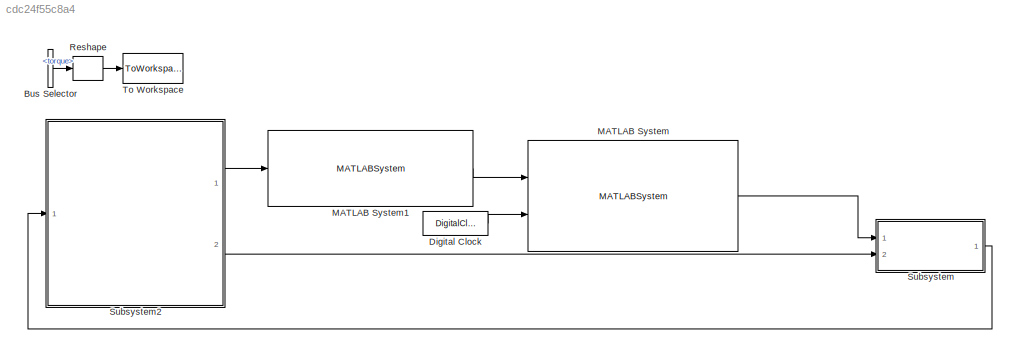
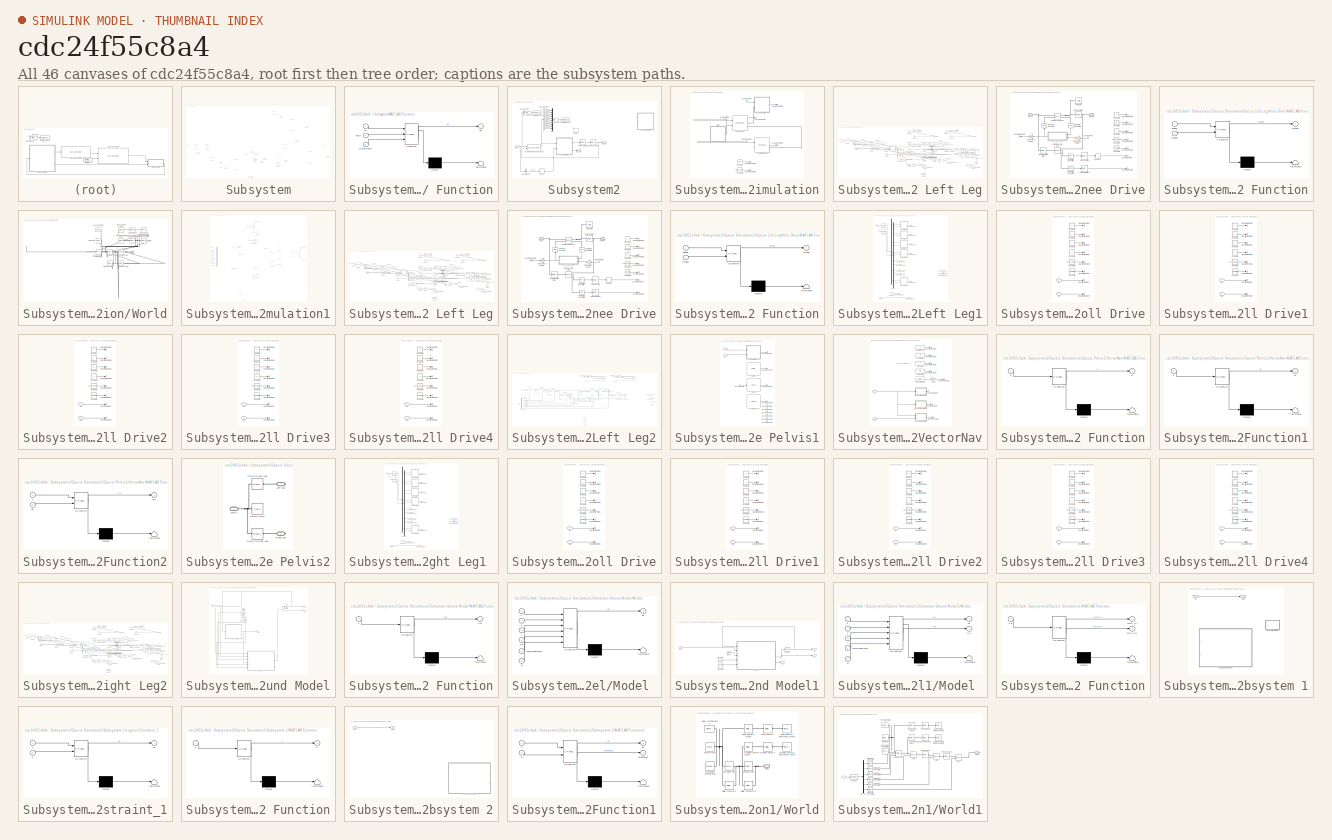
[diagram: thumbnail index - all 46 canvases of the model, root first then tree order]
MODEL slx_cdc24f55c8a4
KIND model
CONFIG AbsTol = auto
CONFIG EnableMultiTasking = on
CONFIG FixedStep = 0.0005
CONFIG InitFcn = isSim = 2;\nPreFunctions.simulationInitFcn;\nPreFunctions.CustomInitFcn;\n
CONFIG MaxStep = auto
CONFIG MinStep = auto
CONFIG RelTol = auto
CONFIG SampleTimeConstraint = Unconstrained
CONFIG Solver = VariableStepAuto
CONFIG SolverName = VariableStepAuto
CONFIG StartTime = 0
CONFIG StopTime = 12
BLOCK [BusSelector] Bus Selector
  Commented = on
  OutputAsBus = off
  OutputSignals = torque
  Ports = [1, 1]
BLOCK [DigitalClock] Digital Clock
  SampleTime = sim_step_length
BLOCK [MATLABSystem] MATLAB System
  MaskDisplay = disp('RemoteSpoofer');\nport_label('input',1,'cassieOutputs');\nport_label('input',2,'t');\nport_label('output',1,'cassieOutputs');
  MaskType = RemoteSpoofer
  Ports = [2, 1]
  SimulateUsing = Code generation
  System = RemoteSpoofer
BLOCK [MATLABSystem] MATLAB System1
  Cov_AngularVelocity = si_Cov_AngularVelocity
  Cov_LinearAccelerator = si_Cov_LinearAccelerator
  Cov_Orientation = si_Cov_Orientation
  Cov_dqa = si_Cov_dqa
  Cov_dqj = si_Cov_dqj
  Cov_qa = si_Cov_qa
  Cov_qj = si_Cov_qj
  MaskDisplay = disp('AddNoise');\nport_label('input',1,'cassieOutputs');\nport_label('output',1,'cassieOutputs');
  MaskType = AddNoise
  Ports = [1, 1]
  SimulateUsing = Interpreted execution
  System = AddNoise
BLOCK [Reshape] Reshape
  Commented = on
  Ports = [1, 1]
BLOCK [SubSystem] Subsystem
  AncestorBlock = Cassie_CommandBlock_Library_6/Subsystem
  Ports = [2, 1]
  RequestExecContextInheritance = off
  Variant = off
BLOCK [BusAssignment] Subsystem/Bus Assignment
  AssignedSignals = dq
  Ports = [2, 1]
BLOCK [BusAssignment] Subsystem/Bus Assignment1
  AssignedSignals = q,dq
  Ports = [3, 1]
BLOCK [Constant] Subsystem/Constant
  LockScale = on
  OutDataTypeStr = int8
  Value = isSim
BLOCK [DigitalClock] Subsystem/Digital Clock
  SampleTime = sample_time
BLOCK [DigitalClock] Subsystem/Digital Clock1
  SampleTime = sample_time
BLOCK [Inport] Subsystem/Full State
  IconDisplay = Port number
  Port = 2
BLOCK [SubSystem] Subsystem/MATLAB Function
  ErrorFcn = Stateflow.Translate.translate
  PermitHierarchicalResolution = ExplicitOnly
  Ports = [3, 1]
  RequestExecContextInheritance = off
  SFBlockType = MATLAB Function
  TreatAsAtomicUnit = on
  Variant = off
BLOCK [Demux] Subsystem/MATLAB Function/ Demux 
  Outputs = 1
  Ports = [1, 1]
BLOCK [S-Function] Subsystem/MATLAB Function/ SFunction 
  EnableBusSupport = on
  FunctionName = sf_sfun
  PortCounts = [3 2]
  Ports = [3, 2]
  SFcnIsStateOwnerBlock = off
  SFunctionDeploymentMode = off
  Tag = Stateflow S-Function Ideal_Simulator 8
BLOCK [Terminator] Subsystem/MATLAB Function/ Terminator 
BLOCK [Inport] Subsystem/MATLAB Function/EulerRates
  IconDisplay = Port number
  Port = 3
BLOCK [Outport] Subsystem/MATLAB Function/dq
  IconDisplay = Port number
BLOCK [Inport] Subsystem/MATLAB Function/dq 
  IconDisplay = Port number
BLOCK [Inport] Subsystem/MATLAB Function/dqxyz
  IconDisplay = Port number
  Port = 2
BLOCK [MATLABSystem] Subsystem/MATLAB System
  CovPos_abduction = c_CovPos_abduction
  CovPos_knee = c_CovPos_knee
  CovPos_qj1 = c_CovPos_qj1
  CovPos_qj2 = c_CovPos_qj2
  CovPos_qj3 = c_CovPos_qj3
  CovPos_rotation = c_CovPos_rotation
  CovPos_thigh = c_CovPos_thigh
  CovPos_toe = c_CovPos_toe
  Cov_Euler = c_Cov_Euler
  Cov_LinearAccelerator_xy = c_Cov_LinearAccelerator_xy
  Cov_LinearAccelerator_z = c_Cov_LinearAccelerator_z
  Cov_rpx_LRToe_body = c_Cov_rpx_LRToe_body
  Cov_rpy_LRToe_body = c_Cov_rpy_LRToe_body
  Cov_rpz_LRToe_body = c_Cov_rpz_LRToe_body
  KsL_1 = c_KsL_1
  KsL_2 = c_KsL_2
  KsR_1 = c_KsR_1
  KsR_2 = c_KsR_2
  MaskDisplay = disp('StateEstimator_2');\nport_label('input',1,'cassieOutputs');\nport_label('input',2,'IRC');\nport_label('input',3,'t_total');\nport_label('input',4,'isSim');\nport_label('output',1,'EstStates');\nport_label('output',2,'q');\nport_label('output',3,'EulerRates');\nport_label('output',4,'qxyz');\nport_label('output',5,'dqxyz');\nport_label('output',6,'IT');\nport_label('output',7,'a_world');\nport_label('out...<+30ch>
  MaskType = StateEstimator_2
  Ports = [4, 8]
  SimulateUsing = Interpreted execution
  System = StateEstimator_2
  Tx_slide_toe_2 = c_Tx_slide_toe_2
  Ty_slide_toe_2 = c_Ty_slide_toe_2
  Tz_slide_toe_2 = c_Tz_slide_toe_2
  sample_time = sample_time
  vx_slide_toe_1 = c_vx_slide_toe_1
  vx_slide_toe_2 = c_vx_slide_toe_2
  vy_slide_toe_1 = c_vy_slide_toe_1
  vy_slide_toe_2 = c_vy_slide_toe_2
  vz_slide_toe_1 = c_vz_slide_toe_1
  vz_slide_toe_2 = c_vz_slide_toe_2
BLOCK [MATLABSystem] Subsystem/MATLAB System1
  Commented = on
  CovPos_abduction = c_CovPos_abduction
  CovPos_knee = c_CovPos_knee
  CovPos_qj1 = c_CovPos_qj1
  CovPos_qj2 = c_CovPos_qj2
  CovPos_qj3 = c_CovPos_qj3
  CovPos_rotation = c_CovPos_rotation
  CovPos_thigh = c_CovPos_thigh
  CovPos_toe = c_CovPos_toe
  CovVel_abduction = c_CovVel_abduction
  CovVel_knee = c_CovVel_knee
  CovVel_qj1 = c_CovVel_qj1
  CovVel_qj2 = c_CovVel_qj2
  CovVel_qj3 = c_CovVel_qj3
  CovVel_rotation = c_CovVel_rotation
  CovVel_thigh = c_CovVel_thigh
  CovVel_toe = c_CovVel_toe
  Cov_Euler = c_Cov_Euler
  Cov_Euler_rates = c_Cov_Euler_rates
  Cov_Lx_LRToe_stTD0 = c_Cov_Lx_LRToe_stTD0
  Cov_Ly_LRToe_stTD0 = c_Cov_Ly_LRToe_stTD0
  Cov_rpx_LRToe_stTD0 = c_Cov_rpx_LRToe_stTD0
  Cov_rpy_LRToe_stTD0 = c_Cov_rpy_LRToe_stTD0
  IK_max_iter_num = c_IK_max_iter_num
  Kd_abduction = c_Kd_abduction
  Kd_knee = c_Kd_knee
  Kd_pitch = c_Kd_pitch
  Kd_roll = c_Kd_roll
  Kd_rotation = c_Kd_rotation
  Kd_thigh = c_Kd_thigh
  Kd_toe = c_Kd_toe
  Kd_yaw = c_Kd_yaw
  Kp_abduction = c_Kp_abduction
  Kp_knee = c_Kp_knee
  Kp_pitch = c_Kp_pitch
  Kp_roll = c_Kp_roll
  Kp_rotation = c_Kp_rotation
  Kp_thigh = c_Kp_thigh
  Kp_toe = c_Kp_toe
  Kp_yaw = c_Kp_yaw
  MaskDisplay = disp('Cassie_Controller_4');\nport_label('input',1,'EstStates');\nport_label('input',2,'t_total');\nport_label('input',3,'isSim');\nport_label('input',4,'IRC');\nport_label('output',1,'userInputs');\nport_label('output',2,'Data');
  MaskType = Cassie_Controller_4
  Ports = [4, 2]
  SimulateUsing = Interpreted execution
  System = Cassie_Controller_4
  Vx_tgd_offset = c_Vx_tgd_offset
  Vy_tgd_offset = c_Vy_tgd_offset
  com_x_offset = c_com_x_offset
  knee_cp_time = c_knee_cp_time
  rp_LRToe_fil_param = c_rp_LRToe_fil_param
  sample_time = sample_time
  stance_thre_lb = c_stance_thre_lb
  stance_thre_ub = c_stance_thre_ub
  torque_transition_time = c_torque_transition_time
  u_abduction_swing_cp = c_u_abduction_swing_cp
  u_knee_cp = c_u_knee_cp
  u_pitch_cp = c_u_pitch_cp
  u_roll_cp = c_u_roll_cp
  use_dq_AR_for_PD = c_use_dq_AR_for_PD
BLOCK [MATLABSystem] Subsystem/MATLAB System2
  MaskDisplay = disp('PolyRegressionFilter_2');\nport_label('input',1,'q');\nport_label('output',1,'dq');
  MaskType = PolyRegressionFilter_2
  Ports = [1, 1]
  SimulateUsing = Code generation
  System = PolyRegressionFilter_2
  delay = 0
  dop = c_dop
  history_length = c_history_length
  max_dop = 3
  max_history_length = 20
  sample_time = sample_time
  signal_dim = 20
BLOCK [MATLABSystem] Subsystem/MATLAB System3
  CovPos_abduction = c_CovPos_abduction
  CovPos_knee = c_CovPos_knee
  CovPos_qj1 = c_CovPos_qj1
  CovPos_qj2 = c_CovPos_qj2
  CovPos_qj3 = c_CovPos_qj3
  CovPos_rotation = c_CovPos_rotation
  CovPos_thigh = c_CovPos_thigh
  CovPos_toe = c_CovPos_toe
  CovVel_abduction = c_CovVel_abduction
  CovVel_knee = c_CovVel_knee
  CovVel_qj1 = c_CovVel_qj1
  CovVel_qj2 = c_CovVel_qj2
  CovVel_qj3 = c_CovVel_qj3
  CovVel_rotation = c_CovVel_rotation
  CovVel_thigh = c_CovVel_thigh
  CovVel_toe = c_CovVel_toe
  Cov_Euler = c_Cov_Euler
  Cov_Euler_rates = c_Cov_Euler_rates
  Cov_Lx_LRToe_stTD0 = c_Cov_Lx_LRToe_stTD0
  Cov_Ly_LRToe_stTD0 = c_Cov_Ly_LRToe_stTD0
  Cov_rpx_LRToe_stTD0 = c_Cov_rpx_LRToe_stTD0
  Cov_rpy_LRToe_stTD0 = c_Cov_rpy_LRToe_stTD0
  IK_max_iter_num = c_IK_max_iter_num
  Kd_abduction = c_Kd_abduction
  Kd_knee = c_Kd_knee
  Kd_pitch = c_Kd_pitch
  Kd_roll = c_Kd_roll
  Kd_rotation = c_Kd_rotation
  Kd_thigh = c_Kd_thigh
  Kd_toe = c_Kd_toe
  Kd_yaw = c_Kd_yaw
  Kp_abduction = c_Kp_abduction
  Kp_knee = c_Kp_knee
  Kp_pitch = c_Kp_pitch
  Kp_roll = c_Kp_roll
  Kp_rotation = c_Kp_rotation
  Kp_thigh = c_Kp_thigh
  Kp_toe = c_Kp_toe
  Kp_yaw = c_Kp_yaw
  MaskDisplay = disp('Cassie_Controller_4');\nport_label('input',1,'EstStates');\nport_label('input',2,'t_total');\nport_label('input',3,'isSim');\nport_label('input',4,'IRC');\nport_label('output',1,'userInputs');\nport_label('output',2,'Data');
  MaskType = Cassie_Controller_4
  Ports = [4, 2]
  SimulateUsing = Code generation
  System = Cassie_Controller_4
  Vx_tgd_offset = c_Vx_tgd_offset
  Vy_tgd_offset = c_Vy_tgd_offset
  com_x_offset = c_com_x_offset
  knee_cp_time = c_knee_cp_time
  rp_LRToe_fil_param = c_rp_LRToe_fil_param
  sample_time = sample_time
  stance_thre_lb = c_stance_thre_lb
  stance_thre_ub = c_stance_thre_ub
  torque_transition_time = c_torque_transition_time
  u_abduction_swing_cp = c_u_abduction_swing_cp
  u_knee_cp = c_u_knee_cp
  u_pitch_cp = c_u_pitch_cp
  u_roll_cp = c_u_roll_cp
  use_dq_AR_for_PD = c_use_dq_AR_for_PD
BLOCK [MATLABSystem] Subsystem/MATLAB System4
  H_fil_param = c_H_fil_param
  MaskDisplay = disp('RadioCommandInterpreter');\nport_label('input',1,'cassieOutputs');\nport_label('input',2,'t_total');\nport_label('input',3,'isSim');\nport_label('output',1,'IRC');
  MaskType = RadioCommandInterpreter
  Ports = [3, 1]
  SimulateUsing = Code generation
  System = RadioCommandInterpreter
  Vx_tgd_fil_param = c_Vx_tgd_fil_param
  Vy_tgd_avg_fil_param = c_Vy_tgd_avg_fil_param
  desired_com2stToe_lateral_fil_param = c_desired_com2stToe_lateral_fil_param
  max_turn_per_sec = c_max_turn_per_sec
  sample_time = sample_time
BLOCK [Reference] Subsystem/MATLAB System5  REF=Cassie_CommandBlock_Library_5/Subsystem/MATLAB System2
  Commented = on
  Ports = [1, 1]
  SourceBlock = Cassie_CommandBlock_Library_5/Subsystem/MATLAB System2
  SourceType = PolyRegressionFilter_2
BLOCK [RateTransition] Subsystem/Rate Transition
  OutPortSampleTime = sample_time
BLOCK [RateTransition] Subsystem/Rate Transition1
  OutPortSampleTime = sample_time
BLOCK [RateTransition] Subsystem/Rate Transition2
  OutPortSampleTime = sample_time
BLOCK [RateTransition] Subsystem/Rate Transition3
  OutPortSampleTime = sample_time
BLOCK [RateTransition] Subsystem/Rate Transition4
  OutPortSampleTime = sample_time
BLOCK [RateTransition] Subsystem/Rate Transition5
  OutPortSampleTime = sample_time
BLOCK [Selector] Subsystem/Selector
  IndexOptions = Index vector (dialog)
  Indices = 1:20
  InputPortWidth = 40
  OutputSizes = 1
  Ports = [1, 1]
BLOCK [Selector] Subsystem/Selector1
  IndexOptions = Index vector (dialog)
  Indices = 21:40
  InputPortWidth = 40
  OutputSizes = 1
  Ports = [1, 1]
BLOCK [ToWorkspace] Subsystem/To Workspace
  FixptAsFi = on
  MaxDataPoints = inf
  Ports = [1]
  SampleTime = -1
  Save2DSignal = 3-D array (concatenate along third dimension)
  SaveFormat = Timeseries
  VariableName = Data
BLOCK [ToWorkspace] Subsystem/To Workspace1
  FixptAsFi = on
  MaxDataPoints = inf
  Ports = [1]
  SampleTime = -1
  Save2DSignal = 3-D array (concatenate along third dimension)
  SaveFormat = Timeseries
  VariableName = Data_perfect
BLOCK [ToWorkspace] Subsystem/To Workspace2
  FixptAsFi = on
  MaxDataPoints = inf
  Ports = [1]
  SampleTime = -1
  Save2DSignal = 3-D array (concatenate along third dimension)
  SaveFormat = Timeseries
  VariableName = EstStates
BLOCK [ToWorkspace] Subsystem/To Workspace3
  FixptAsFi = on
  MaxDataPoints = inf
  Ports = [1]
  SampleTime = -1
  Save2DSignal = 3-D array (concatenate along third dimension)
  SaveFormat = Timeseries
  VariableName = EulerRates
BLOCK [ToWorkspace] Subsystem/To Workspace4
  FixptAsFi = on
  MaxDataPoints = inf
  Ports = [1]
  SampleTime = -1
  Save2DSignal = 3-D array (concatenate along third dimension)
  SaveFormat = Timeseries
  VariableName = qxyz
BLOCK [ToWorkspace] Subsystem/To Workspace5
  FixptAsFi = on
  MaxDataPoints = inf
  Ports = [1]
  SampleTime = -1
  Save2DSignal = 3-D array (concatenate along third dimension)
  SaveFormat = Timeseries
  VariableName = dqxyz
BLOCK [ToWorkspace] Subsystem/To Workspace6
  FixptAsFi = on
  MaxDataPoints = inf
  Ports = [1]
  SampleTime = -1
  Save2DSignal = 3-D array (concatenate along third dimension)
  SaveFormat = Timeseries
  VariableName = IT
BLOCK [ToWorkspace] Subsystem/To Workspace7
  FixptAsFi = on
  MaxDataPoints = inf
  Ports = [1]
  SampleTime = -1
  Save2DSignal = 3-D array (concatenate along third dimension)
  SaveFormat = Timeseries
  VariableName = a_world
BLOCK [ToWorkspace] Subsystem/To Workspace8
  FixptAsFi = on
  MaxDataPoints = inf
  Ports = [1]
  SampleTime = -1
  Save2DSignal = 3-D array (concatenate along third dimension)
  SaveFormat = Timeseries
  VariableName = PR_dq
BLOCK [ToWorkspace] Subsystem/To Workspace9
  FixptAsFi = on
  MaxDataPoints = inf
  Ports = [1]
  SampleTime = -1
  Save2DSignal = 3-D array (concatenate along third dimension)
  SaveFormat = Timeseries
  VariableName = PR_q
BLOCK [Outport] Subsystem/inputs 
  IconDisplay = Port number
BLOCK [Inport] Subsystem/outputs
  IconDisplay = Port number
  OutDataTypeStr = Bus: CassieOutBus
BLOCK [SubSystem] Subsystem2
  AncestorBlock = Ideal_Model_Library/Subsystem1
  InitFcn = % Start clock at initialization (used for computing real time performance)\ninitTime = tic;\n\n% Import bus definitions\nCassieModule.importBuses;
  Ports = [1, 2]
  RequestExecContextInheritance = off
  Variant = off
BLOCK [BusSelector] Subsystem2/Bus Selector
  OutputAsBus = off
  OutputSignals = torque
  Ports = [1, 1]
BLOCK [BusSelector] Subsystem2/Bus Selector1
  OutputAsBus = off
  OutputSignals = torque
  Ports = [1, 1]
BLOCK [BusSelector] Subsystem2/Bus Selector2
  Commented = on
  OutputAsBus = off
  OutputSignals = leftLeg.hipRollDrive.torque,leftLeg.hipYawDrive.torque,leftLeg.hipPitchDrive.torque,leftLeg.kneeDrive.torque,leftLeg.footDrive.torque,rightLeg.hipRollDrive.torque,rightLeg.hipYawDrive.torque,rightLeg.hipPitchDrive.torque,rightLeg.kneeDrive.torque,rightLeg.footDrive.torque
  Ports = [1, 10]
BLOCK [MATLABSystem] Subsystem2/Cassie Core MATLAB System
  MaskDisplay = disp('CassieCoreSim');
  MaskType = CassieCoreSim
  Ports = [2, 2]
  SimulateUsing = Code generation
  System = CassieCoreSim
BLOCK [SubSystem] Subsystem2/Cassie Simulation
  AncestorBlock = CassieLibrary/Simulation/Cassie Simulation
  Commented = on
  Ports = [1, 1]
  RequestExecContextInheritance = off
  ShowPortLabels = none
  Variant = off
BLOCK [Inport] Subsystem2/Cassie Simulation/Bus Element In1
  IconDisplay = Port number
BLOCK [Inport] Subsystem2/Cassie Simulation/Bus Element In2
  IconDisplay = Port number
BLOCK [Inport] Subsystem2/Cassie Simulation/Bus Element In3
  IconDisplay = Port number
BLOCK [Outport] Subsystem2/Cassie Simulation/Bus Element Out1
  IconDisplay = Port number
BLOCK [Outport] Subsystem2/Cassie Simulation/Bus Element Out2
  IconDisplay = Port number
BLOCK [Outport] Subsystem2/Cassie Simulation/Bus Element Out3
  IconDisplay = Port number
BLOCK [Outport] Subsystem2/Cassie Simulation/Bus Element Out4
  IconDisplay = Port number
BLOCK [Outport] Subsystem2/Cassie Simulation/Bus Element Out5
  IconDisplay = Port number
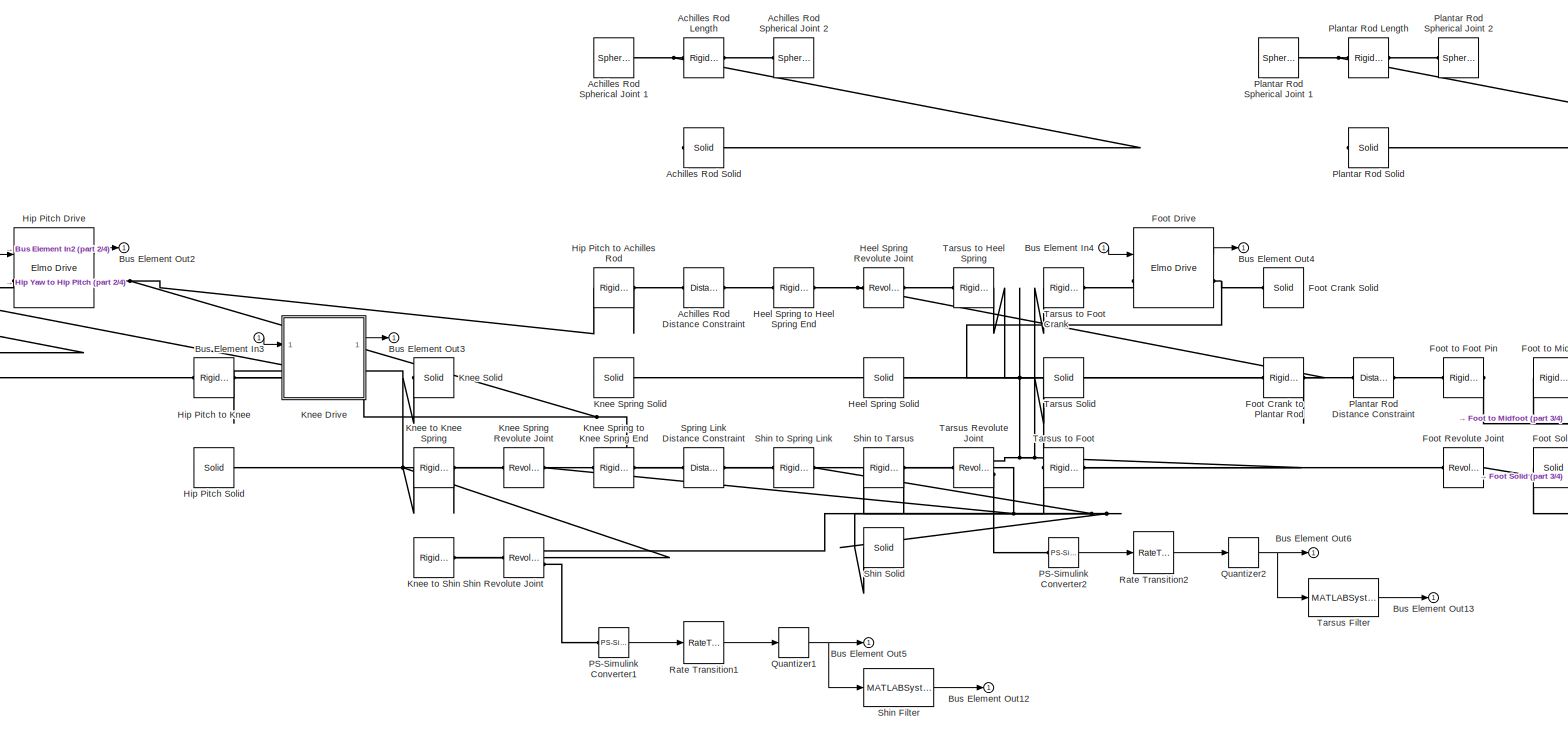
[diagram: Subsystem2/Cassie Simulation/Cassie Left Leg - part 1/4, center side, full height]
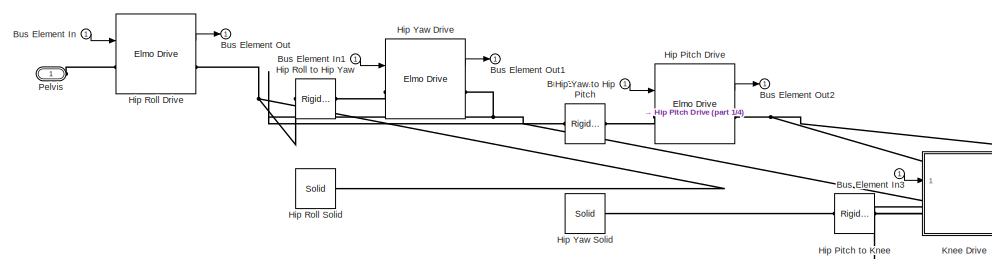
[diagram: Subsystem2/Cassie Simulation/Cassie Left Leg - part 2/4, middle left region]
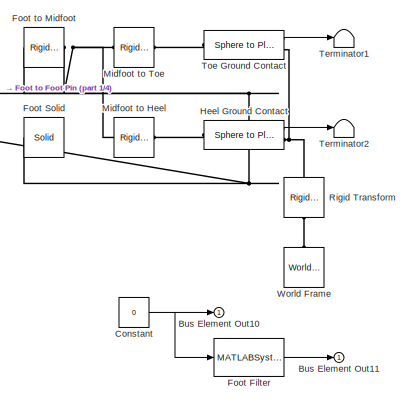
[diagram: Subsystem2/Cassie Simulation/Cassie Left Leg - part 3/4, middle right region]
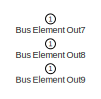
[diagram: Subsystem2/Cassie Simulation/Cassie Left Leg - part 4/4, bottom center region]
BLOCK [SubSystem] Subsystem2/Cassie Simulation/Cassie Left Leg
  AncestorBlock = CassieLibrary/Simulation/Cassie Leg
  Ports = [1, 1, 0, 0, 0, 1]
  RequestExecContextInheritance = off
  Variant = off
BLOCK [Reference] Subsystem2/Cassie Simulation/Cassie Left Leg/Achilles Rod Distance Constraint  REF=sm_lib/Constraints/Distance
Constraint
  Ports = [0, 0, 0, 0, 0, 1, 1]
  SourceBlock = sm_lib/Constraints/Distance\nConstraint
  SourceProductBaseCode = MS
  SourceProductName = Simscape Multibody
  SourceType = Distance\nConstraint
BLOCK [Reference] Subsystem2/Cassie Simulation/Cassie Left Leg/Achilles Rod Length  REF=sm_lib/Frames and
Transforms/Rigid
Transform
  Commented = on
  Ports = [0, 0, 0, 0, 0, 1, 1]
  SourceBlock = sm_lib/Frames and\nTransforms/Rigid\nTransform
  SourceProductBaseCode = MS
  SourceProductName = Simscape Multibody
  SourceType = Rigid\nTransform
BLOCK [Reference] Subsystem2/Cassie Simulation/Cassie Left Leg/Achilles Rod Solid  REF=sm_lib/Body Elements/Solid
  Commented = on
  Ports = [0, 0, 0, 0, 0, 0, 1]
  SourceBlock = sm_lib/Body Elements/Solid
  SourceProductBaseCode = MS
  SourceProductName = Simscape Multibody
  SourceType = Solid
BLOCK [Reference] Subsystem2/Cassie Simulation/Cassie Left Leg/Achilles Rod Spherical Joint 1  REF=sm_lib/Joints/Spherical
Joint
  Commented = on
  Ports = [0, 0, 0, 0, 0, 1, 1]
  SourceBlock = sm_lib/Joints/Spherical\nJoint
  SourceProductBaseCode = MS
  SourceProductName = Simscape Multibody
  SourceType = Spherical\nJoint
BLOCK [Reference] Subsystem2/Cassie Simulation/Cassie Left Leg/Achilles Rod Spherical Joint 2  REF=sm_lib/Joints/Spherical
Joint
  Commented = on
  Ports = [0, 0, 0, 0, 0, 1, 1]
  SourceBlock = sm_lib/Joints/Spherical\nJoint
  SourceProductBaseCode = MS
  SourceProductName = Simscape Multibody
  SourceType = Spherical\nJoint
BLOCK [Inport] Subsystem2/Cassie Simulation/Cassie Left Leg/Bus Element In
  IconDisplay = Port number
BLOCK [Inport] Subsystem2/Cassie Simulation/Cassie Left Leg/Bus Element In1
  IconDisplay = Port number
BLOCK [Inport] Subsystem2/Cassie Simulation/Cassie Left Leg/Bus Element In2
  IconDisplay = Port number
BLOCK [Inport] Subsystem2/Cassie Simulation/Cassie Left Leg/Bus Element In3
  IconDisplay = Port number
BLOCK [Inport] Subsystem2/Cassie Simulation/Cassie Left Leg/Bus Element In4
  IconDisplay = Port number
BLOCK [Outport] Subsystem2/Cassie Simulation/Cassie Left Leg/Bus Element Out
  IconDisplay = Port number
BLOCK [Outport] Subsystem2/Cassie Simulation/Cassie Left Leg/Bus Element Out1
  IconDisplay = Port number
BLOCK [Outport] Subsystem2/Cassie Simulation/Cassie Left Leg/Bus Element Out10
  IconDisplay = Port number
BLOCK [Outport] Subsystem2/Cassie Simulation/Cassie Left Leg/Bus Element Out11
  IconDisplay = Port number
BLOCK [Outport] Subsystem2/Cassie Simulation/Cassie Left Leg/Bus Element Out12
  IconDisplay = Port number
BLOCK [Outport] Subsystem2/Cassie Simulation/Cassie Left Leg/Bus Element Out13
  IconDisplay = Port number
BLOCK [Outport] Subsystem2/Cassie Simulation/Cassie Left Leg/Bus Element Out2
  IconDisplay = Port number
BLOCK [Outport] Subsystem2/Cassie Simulation/Cassie Left Leg/Bus Element Out3
  IconDisplay = Port number
BLOCK [Outport] Subsystem2/Cassie Simulation/Cassie Left Leg/Bus Element Out4
  IconDisplay = Port number
BLOCK [Outport] Subsystem2/Cassie Simulation/Cassie Left Leg/Bus Element Out5
  IconDisplay = Port number
BLOCK [Outport] Subsystem2/Cassie Simulation/Cassie Left Leg/Bus Element Out6
  IconDisplay = Port number
BLOCK [Outport] Subsystem2/Cassie Simulation/Cassie Left Leg/Bus Element Out7
  IconDisplay = Port number
BLOCK [Outport] Subsystem2/Cassie Simulation/Cassie Left Leg/Bus Element Out8
  IconDisplay = Port number
BLOCK [Outport] Subsystem2/Cassie Simulation/Cassie Left Leg/Bus Element Out9
  IconDisplay = Port number
BLOCK [Constant] Subsystem2/Cassie Simulation/Cassie Left Leg/Constant
  Value = 0
BLOCK [Reference] Subsystem2/Cassie Simulation/Cassie Left Leg/Foot Crank Solid  REF=sm_lib/Body Elements/Solid
  Ports = [0, 0, 0, 0, 0, 0, 1]
  SourceBlock = sm_lib/Body Elements/Solid
  SourceProductBaseCode = MS
  SourceProductName = Simscape Multibody
  SourceType = Solid
BLOCK [Reference] Subsystem2/Cassie Simulation/Cassie Left Leg/Foot Crank to Plantar Rod  REF=sm_lib/Frames and
Transforms/Rigid
Transform
  Ports = [0, 0, 0, 0, 0, 1, 1]
  SourceBlock = sm_lib/Frames and\nTransforms/Rigid\nTransform
  SourceProductBaseCode = MS
  SourceProductName = Simscape Multibody
  SourceType = Rigid\nTransform
BLOCK [Reference] Subsystem2/Cassie Simulation/Cassie Left Leg/Foot Drive  REF=ComponentLibrary/Simulation/Elmo Drive
  Ports = [1, 1, 0, 0, 0, 1, 1]
  SourceBlock = ComponentLibrary/Simulation/Elmo Drive
BLOCK [MATLABSystem] Subsystem2/Cassie Simulation/Cassie Left Leg/Foot Filter
  MaskDisplay = disp('Filter');
  MaskType = FilterSystem
  Ports = [1, 1]
  SimulateUsing = Code generation
  System = FilterSystem
  a = [1 -1.76575295625865 0.790448801800725]
  b = [12.3479227710395 12.3479227710395 -12.3479227710395 -12.3479227710395]
BLOCK [Reference] Subsystem2/Cassie Simulation/Cassie Left Leg/Foot Revolute Joint  REF=sm_lib/Joints/Revolute Joint
  Ports = [0, 0, 0, 0, 0, 1, 1]
  SourceBlock = sm_lib/Joints/Revolute Joint
  SourceProductBaseCode = MS
  SourceProductName = Simscape Multibody
  SourceType = Revolute Joint
BLOCK [Reference] Subsystem2/Cassie Simulation/Cassie Left Leg/Foot Solid  REF=sm_lib/Body Elements/Solid
  Ports = [0, 0, 0, 0, 0, 0, 1]
  SourceBlock = sm_lib/Body Elements/Solid
  SourceProductBaseCode = MS
  SourceProductName = Simscape Multibody
  SourceType = Solid
BLOCK [Reference] Subsystem2/Cassie Simulation/Cassie Left Leg/Foot to Foot Pin  REF=sm_lib/Frames and
Transforms/Rigid
Transform
  Ports = [0, 0, 0, 0, 0, 1, 1]
  SourceBlock = sm_lib/Frames and\nTransforms/Rigid\nTransform
  SourceProductBaseCode = MS
  SourceProductName = Simscape Multibody
  SourceType = Rigid\nTransform
BLOCK [Reference] Subsystem2/Cassie Simulation/Cassie Left Leg/Foot to Midfoot  REF=sm_lib/Frames and
Transforms/Rigid
Transform
  Ports = [0, 0, 0, 0, 0, 1, 1]
  SourceBlock = sm_lib/Frames and\nTransforms/Rigid\nTransform
  SourceProductBaseCode = MS
  SourceProductName = Simscape Multibody
  SourceType = Rigid\nTransform
BLOCK [Reference] Subsystem2/Cassie Simulation/Cassie Left Leg/Heel Ground Contact  REF=Contact_Forces_Lib/3D/Sphere to Plane Force
  Ports = [0, 1, 0, 0, 0, 1, 1]
  SourceBlock = Contact_Forces_Lib/3D/Sphere to Plane Force
  SourceProductName = Simscape Multibody Contact Forces Library
  SourceType = Sphere to Plane Force
BLOCK [Reference] Subsystem2/Cassie Simulation/Cassie Left Leg/Heel Spring Revolute Joint  REF=sm_lib/Joints/Revolute Joint
  Ports = [0, 0, 0, 0, 0, 1, 1]
  SourceBlock = sm_lib/Joints/Revolute Joint
  SourceProductBaseCode = MS
  SourceProductName = Simscape Multibody
  SourceType = Revolute Joint
BLOCK [Reference] Subsystem2/Cassie Simulation/Cassie Left Leg/Heel Spring Solid  REF=sm_lib/Body Elements/Solid
  Ports = [0, 0, 0, 0, 0, 0, 1]
  SourceBlock = sm_lib/Body Elements/Solid
  SourceProductBaseCode = MS
  SourceProductName = Simscape Multibody
  SourceType = Solid
BLOCK [Reference] Subsystem2/Cassie Simulation/Cassie Left Leg/Heel Spring to Heel Spring End  REF=sm_lib/Frames and
Transforms/Rigid
Transform
  Ports = [0, 0, 0, 0, 0, 1, 1]
  SourceBlock = sm_lib/Frames and\nTransforms/Rigid\nTransform
  SourceProductBaseCode = MS
  SourceProductName = Simscape Multibody
  SourceType = Rigid\nTransform
BLOCK [Reference] Subsystem2/Cassie Simulation/Cassie Left Leg/Hip Pitch Drive  REF=ComponentLibrary/Simulation/Elmo Drive
  Ports = [1, 1, 0, 0, 0, 1, 1]
  SourceBlock = ComponentLibrary/Simulation/Elmo Drive
BLOCK [Reference] Subsystem2/Cassie Simulation/Cassie Left Leg/Hip Pitch Solid  REF=sm_lib/Body Elements/Solid
  Ports = [0, 0, 0, 0, 0, 0, 1]
  SourceBlock = sm_lib/Body Elements/Solid
  SourceProductBaseCode = MS
  SourceProductName = Simscape Multibody
  SourceType = Solid
BLOCK [Reference] Subsystem2/Cassie Simulation/Cassie Left Leg/Hip Pitch to Achilles Rod  REF=sm_lib/Frames and
Transforms/Rigid
Transform
  Ports = [0, 0, 0, 0, 0, 1, 1]
  SourceBlock = sm_lib/Frames and\nTransforms/Rigid\nTransform
  SourceProductBaseCode = MS
  SourceProductName = Simscape Multibody
  SourceType = Rigid\nTransform
BLOCK [Reference] Subsystem2/Cassie Simulation/Cassie Left Leg/Hip Pitch to Knee  REF=sm_lib/Frames and
Transforms/Rigid
Transform
  Ports = [0, 0, 0, 0, 0, 1, 1]
  SourceBlock = sm_lib/Frames and\nTransforms/Rigid\nTransform
  SourceProductBaseCode = MS
  SourceProductName = Simscape Multibody
  SourceType = Rigid\nTransform
BLOCK [Reference] Subsystem2/Cassie Simulation/Cassie Left Leg/Hip Roll Drive  REF=ComponentLibrary/Simulation/Elmo Drive
  Ports = [1, 1, 0, 0, 0, 1, 1]
  SourceBlock = ComponentLibrary/Simulation/Elmo Drive
BLOCK [Reference] Subsystem2/Cassie Simulation/Cassie Left Leg/Hip Roll Solid  REF=sm_lib/Body Elements/Solid
  Ports = [0, 0, 0, 0, 0, 0, 1]
  SourceBlock = sm_lib/Body Elements/Solid
  SourceProductBaseCode = MS
  SourceProductName = Simscape Multibody
  SourceType = Solid
BLOCK [Reference] Subsystem2/Cassie Simulation/Cassie Left Leg/Hip Roll to Hip Yaw  REF=sm_lib/Frames and
Transforms/Rigid
Transform
  Ports = [0, 0, 0, 0, 0, 1, 1]
  SourceBlock = sm_lib/Frames and\nTransforms/Rigid\nTransform
  SourceProductBaseCode = MS
  SourceProductName = Simscape Multibody
  SourceType = Rigid\nTransform
BLOCK [Reference] Subsystem2/Cassie Simulation/Cassie Left Leg/Hip Yaw Drive  REF=ComponentLibrary/Simulation/Elmo Drive
  Ports = [1, 1, 0, 0, 0, 1, 1]
  SourceBlock = ComponentLibrary/Simulation/Elmo Drive
BLOCK [Reference] Subsystem2/Cassie Simulation/Cassie Left Leg/Hip Yaw Solid  REF=sm_lib/Body Elements/Solid
  Ports = [0, 0, 0, 0, 0, 0, 1]
  SourceBlock = sm_lib/Body Elements/Solid
  SourceProductBaseCode = MS
  SourceProductName = Simscape Multibody
  SourceType = Solid
BLOCK [Reference] Subsystem2/Cassie Simulation/Cassie Left Leg/Hip Yaw to Hip Pitch  REF=sm_lib/Frames and
Transforms/Rigid
Transform
  Ports = [0, 0, 0, 0, 0, 1, 1]
  SourceBlock = sm_lib/Frames and\nTransforms/Rigid\nTransform
  SourceProductBaseCode = MS
  SourceProductName = Simscape Multibody
  SourceType = Rigid\nTransform
BLOCK [SubSystem] Subsystem2/Cassie Simulation/Cassie Left Leg/Knee Drive
  AncestorBlock = ComponentLibrary/Simulation/Elmo Drive
  Ports = [1, 1, 0, 0, 0, 1, 1]
  RequestExecContextInheritance = off
  Variant = off
BLOCK [Gain] Subsystem2/Cassie Simulation/Cassie Left Leg/Knee Drive/Actual Torque Scaling
  Gain = -gearRatio
  OutDataTypeStr = Inherit: Inherit via internal rule
  ParamDataTypeStr = Inherit: Inherit via internal rule
  SaturateOnIntegerOverflow = off
BLOCK [PMIOPort] Subsystem2/Cassie Simulation/Cassie Left Leg/Knee Drive/Base
  Port = 1
  Side = Left
BLOCK [Inport] Subsystem2/Cassie Simulation/Cassie Left Leg/Knee Drive/Bus Element In
  IconDisplay = Port number
BLOCK [Outport] Subsystem2/Cassie Simulation/Cassie Left Leg/Knee Drive/Bus Element Out
  IconDisplay = Port number
BLOCK [Outport] Subsystem2/Cassie Simulation/Cassie Left Leg/Knee Drive/Bus Element Out1
  IconDisplay = Port number
BLOCK [Outport] Subsystem2/Cassie Simulation/Cassie Left Leg/Knee Drive/Bus Element Out2
  IconDisplay = Port number
BLOCK [Outport] Subsystem2/Cassie Simulation/Cassie Left Leg/Knee Drive/Bus Element Out3
  IconDisplay = Port number
BLOCK [Outport] Subsystem2/Cassie Simulation/Cassie Left Leg/Knee Drive/Bus Element Out4
  IconDisplay = Port number
BLOCK [Outport] Subsystem2/Cassie Simulation/Cassie Left Leg/Knee Drive/Bus Element Out5
  IconDisplay = Port number
BLOCK [Outport] Subsystem2/Cassie Simulation/Cassie Left Leg/Knee Drive/Bus Element Out6
  IconDisplay = Port number
BLOCK [Outport] Subsystem2/Cassie Simulation/Cassie Left Leg/Knee Drive/Bus Element Out7
  IconDisplay = Port number
BLOCK [Constant] Subsystem2/Cassie Simulation/Cassie Left Leg/Knee Drive/Constant1
  Value = 0
BLOCK [Constant] Subsystem2/Cassie Simulation/Cassie Left Leg/Knee Drive/Constant2
  OutDataTypeStr = uint16
  Value = 0
BLOCK [Constant] Subsystem2/Cassie Simulation/Cassie Left Leg/Knee Drive/Constant3
  Value = 0
BLOCK [Constant] Subsystem2/Cassie Simulation/Cassie Left Leg/Knee Drive/Constant4
  Value = peakTorque*gearRatio
BLOCK [Constant] Subsystem2/Cassie Simulation/Cassie Left Leg/Knee Drive/Constant5
  Value = gearRatio
BLOCK [PMIOPort] Subsystem2/Cassie Simulation/Cassie Left Leg/Knee Drive/Follower
  Port = 2
  Side = Right
BLOCK [Reference] Subsystem2/Cassie Simulation/Cassie Left Leg/Knee Drive/Gear Constraint  REF=sm_lib/Gears and
Couplings/Gears/Common Gear
Constraint
  Ports = [0, 0, 0, 0, 0, 1, 1]
  SourceBlock = sm_lib/Gears and\nCouplings/Gears/Common Gear\nConstraint
  SourceProductBaseCode = MS
  SourceProductName = Simscape Multibody
  SourceType = Common Gear\nConstraint
BLOCK [Reference] Subsystem2/Cassie Simulation/Cassie Left Leg/Knee Drive/Gear Constraint Offset  REF=sm_lib/Frames and
Transforms/Rigid
Transform
  Ports = [0, 0, 0, 0, 0, 1, 1]
  SourceBlock = sm_lib/Frames and\nTransforms/Rigid\nTransform
  SourceProductBaseCode = MS
  SourceProductName = Simscape Multibody
  SourceType = Rigid\nTransform
BLOCK [Reference] Subsystem2/Cassie Simulation/Cassie Left Leg/Knee Drive/Input Revolute Joint  REF=sm_lib/Joints/Revolute Joint
  Ports = [0, 0, 0, 0, 0, 2, 2]
  SourceBlock = sm_lib/Joints/Revolute Joint
  SourceProductBaseCode = MS
  SourceProductName = Simscape Multibody
  SourceType = Revolute Joint
BLOCK [SubSystem] Subsystem2/Cassie Simulation/Cassie Left Leg/Knee Drive/MATLAB Function
  ErrorFcn = Stateflow.Translate.translate
  PermitHierarchicalResolution = ExplicitOnly
  Ports = [2, 1]
  RequestExecContextInheritance = off
  SFBlockType = MATLAB Function
  TreatAsAtomicUnit = on
  Variant = off
BLOCK [Demux] Subsystem2/Cassie Simulation/Cassie Left Leg/Knee Drive/MATLAB Function/ Demux 
  Outputs = 1
  Ports = [1, 1]
BLOCK [S-Function] Subsystem2/Cassie Simulation/Cassie Left Leg/Knee Drive/MATLAB Function/ SFunction 
  EnableBusSupport = on
  FunctionName = sf_sfun
  Parameters = peakSpeed,peakTorque
  PortCounts = [2 2]
  Ports = [2, 2]
  SFcnIsStateOwnerBlock = off
  SFunctionDeploymentMode = off
  Tag = Stateflow S-Function Ideal_Simulator 2
BLOCK [Terminator] Subsystem2/Cassie Simulation/Cassie Left Leg/Knee Drive/MATLAB Function/ Terminator 
BLOCK [Inport] Subsystem2/Cassie Simulation/Cassie Left Leg/Knee Drive/MATLAB Function/speed
  IconDisplay = Port number
BLOCK [Outport] Subsystem2/Cassie Simulation/Cassie Left Leg/Knee Drive/MATLAB Function/torque
  IconDisplay = Port number
BLOCK [Inport] Subsystem2/Cassie Simulation/Cassie Left Leg/Knee Drive/MATLAB Function/torque 
  IconDisplay = Port number
  Port = 2
BLOCK [Reference] Subsystem2/Cassie Simulation/Cassie Left Leg/Knee Drive/Output Revolute Joint  REF=sm_lib/Joints/Revolute Joint
  Ports = [0, 0, 0, 0, 0, 1, 3]
  SourceBlock = sm_lib/Joints/Revolute Joint
  SourceProductBaseCode = MS
  SourceProductName = Simscape Multibody
  SourceType = Revolute Joint
BLOCK [Reference] Subsystem2/Cassie Simulation/Cassie Left Leg/Knee Drive/PS-Simulink Converter  REF=nesl_utility/PS-Simulink
Converter
  Ports = [0, 1, 0, 0, 0, 1]
  SourceBlock = nesl_utility/PS-Simulink\nConverter
  SourceProductBaseCode = SS
  SourceProductName = Simscape
  SourceType = PS-Simulink\nConverter
BLOCK [Reference] Subsystem2/Cassie Simulation/Cassie Left Leg/Knee Drive/PS-Simulink Converter1  REF=nesl_utility/PS-Simulink
Converter
  Ports = [0, 1, 0, 0, 0, 1]
  SourceBlock = nesl_utility/PS-Simulink\nConverter
  SourceProductBaseCode = SS
  SourceProductName = Simscape
  SourceType = PS-Simulink\nConverter
BLOCK [Reference] Subsystem2/Cassie Simulation/Cassie Left Leg/Knee Drive/PS-Simulink Converter2  REF=nesl_utility/PS-Simulink
Converter
  Ports = [0, 1, 0, 0, 0, 1]
  SourceBlock = nesl_utility/PS-Simulink\nConverter
  SourceProductBaseCode = SS
  SourceProductName = Simscape
  SourceType = PS-Simulink\nConverter
BLOCK [Quantizer] Subsystem2/Cassie Simulation/Cassie Left Leg/Knee Drive/Quantizer
  QuantizationInterval = (2*pi)/(encoderResolution*gearRatio)
BLOCK [RateTransition] Subsystem2/Cassie Simulation/Cassie Left Leg/Knee Drive/Rate Transition
  Deterministic = off
  InitialCondition = initialPosition
  OutPortSampleTimeOpt = Inherit
BLOCK [RateTransition] Subsystem2/Cassie Simulation/Cassie Left Leg/Knee Drive/Rate Transition1
  Deterministic = off
  InitialCondition = initialPosition
  OutPortSampleTimeOpt = Inherit
BLOCK [Reference] Subsystem2/Cassie Simulation/Cassie Left Leg/Knee Drive/Rotor Solid  REF=sm_lib/Body Elements/Solid
  Ports = [0, 0, 0, 0, 0, 0, 1]
  SourceBlock = sm_lib/Body Elements/Solid
  SourceProductBaseCode = MS
  SourceProductName = Simscape Multibody
  SourceType = Solid
BLOCK [Reference] Subsystem2/Cassie Simulation/Cassie Left Leg/Knee Drive/Simulink-PS Converter  REF=nesl_utility/Simulink-PS
Converter
  Ports = [1, 0, 0, 0, 0, 0, 1]
  SourceBlock = nesl_utility/Simulink-PS\nConverter
  SourceProductBaseCode = SS
  SourceProductName = Simscape
  SourceType = Simulink-PS\nConverter
BLOCK [Gain] Subsystem2/Cassie Simulation/Cassie Left Leg/Knee Drive/Target Torque Scaling
  Gain = -1/gearRatio
  OutDataTypeStr = Inherit: Inherit via internal rule
  ParamDataTypeStr = Inherit: Inherit via internal rule
  SaturateOnIntegerOverflow = off
BLOCK [Reference] Subsystem2/Cassie Simulation/Cassie Left Leg/Knee Solid  REF=sm_lib/Body Elements/Solid
  Ports = [0, 0, 0, 0, 0, 0, 1]
  SourceBlock = sm_lib/Body Elements/Solid
  SourceProductBaseCode = MS
  SourceProductName = Simscape Multibody
  SourceType = Solid
BLOCK [Reference] Subsystem2/Cassie Simulation/Cassie Left Leg/Knee Spring Revolute Joint  REF=sm_lib/Joints/Revolute Joint
  Ports = [0, 0, 0, 0, 0, 1, 1]
  SourceBlock = sm_lib/Joints/Revolute Joint
  SourceProductBaseCode = MS
  SourceProductName = Simscape Multibody
  SourceType = Revolute Joint
BLOCK [Reference] Subsystem2/Cassie Simulation/Cassie Left Leg/Knee Spring Solid  REF=sm_lib/Body Elements/Solid
  Ports = [0, 0, 0, 0, 0, 0, 1]
  SourceBlock = sm_lib/Body Elements/Solid
  SourceProductBaseCode = MS
  SourceProductName = Simscape Multibody
  SourceType = Solid
BLOCK [Reference] Subsystem2/Cassie Simulation/Cassie Left Leg/Knee Spring to Knee Spring End  REF=sm_lib/Frames and
Transforms/Rigid
Transform
  Ports = [0, 0, 0, 0, 0, 1, 1]
  SourceBlock = sm_lib/Frames and\nTransforms/Rigid\nTransform
  SourceProductBaseCode = MS
  SourceProductName = Simscape Multibody
  SourceType = Rigid\nTransform
BLOCK [Reference] Subsystem2/Cassie Simulation/Cassie Left Leg/Knee to Knee Spring  REF=sm_lib/Frames and
Transforms/Rigid
Transform
  Ports = [0, 0, 0, 0, 0, 1, 1]
  SourceBlock = sm_lib/Frames and\nTransforms/Rigid\nTransform
  SourceProductBaseCode = MS
  SourceProductName = Simscape Multibody
  SourceType = Rigid\nTransform
BLOCK [Reference] Subsystem2/Cassie Simulation/Cassie Left Leg/Knee to Shin  REF=sm_lib/Frames and
Transforms/Rigid
Transform
  Ports = [0, 0, 0, 0, 0, 1, 1]
  SourceBlock = sm_lib/Frames and\nTransforms/Rigid\nTransform
  SourceProductBaseCode = MS
  SourceProductName = Simscape Multibody
  SourceType = Rigid\nTransform
BLOCK [Reference] Subsystem2/Cassie Simulation/Cassie Left Leg/Midfoot to Heel  REF=sm_lib/Frames and
Transforms/Rigid
Transform
  Ports = [0, 0, 0, 0, 0, 1, 1]
  SourceBlock = sm_lib/Frames and\nTransforms/Rigid\nTransform
  SourceProductBaseCode = MS
  SourceProductName = Simscape Multibody
  SourceType = Rigid\nTransform
BLOCK [Reference] Subsystem2/Cassie Simulation/Cassie Left Leg/Midfoot to Toe  REF=sm_lib/Frames and
Transforms/Rigid
Transform
  Ports = [0, 0, 0, 0, 0, 1, 1]
  SourceBlock = sm_lib/Frames and\nTransforms/Rigid\nTransform
  SourceProductBaseCode = MS
  SourceProductName = Simscape Multibody
  SourceType = Rigid\nTransform
BLOCK [Reference] Subsystem2/Cassie Simulation/Cassie Left Leg/PS-Simulink Converter1  REF=nesl_utility/PS-Simulink
Converter
  Ports = [0, 1, 0, 0, 0, 1]
  SourceBlock = nesl_utility/PS-Simulink\nConverter
  SourceProductBaseCode = SS
  SourceProductName = Simscape
  SourceType = PS-Simulink\nConverter
BLOCK [Reference] Subsystem2/Cassie Simulation/Cassie Left Leg/PS-Simulink Converter2  REF=nesl_utility/PS-Simulink
Converter
  Ports = [0, 1, 0, 0, 0, 1]
  SourceBlock = nesl_utility/PS-Simulink\nConverter
  SourceProductBaseCode = SS
  SourceProductName = Simscape
  SourceType = PS-Simulink\nConverter
BLOCK [PMIOPort] Subsystem2/Cassie Simulation/Cassie Left Leg/Pelvis
  Port = 1
  Side = Left
BLOCK [Reference] Subsystem2/Cassie Simulation/Cassie Left Leg/Plantar Rod Distance Constraint  REF=sm_lib/Constraints/Distance
Constraint
  Ports = [0, 0, 0, 0, 0, 1, 1]
  SourceBlock = sm_lib/Constraints/Distance\nConstraint
  SourceProductBaseCode = MS
  SourceProductName = Simscape Multibody
  SourceType = Distance\nConstraint
BLOCK [Reference] Subsystem2/Cassie Simulation/Cassie Left Leg/Plantar Rod Length  REF=sm_lib/Frames and
Transforms/Rigid
Transform
  Commented = on
  Ports = [0, 0, 0, 0, 0, 1, 1]
  SourceBlock = sm_lib/Frames and\nTransforms/Rigid\nTransform
  SourceProductBaseCode = MS
  SourceProductName = Simscape Multibody
  SourceType = Rigid\nTransform
BLOCK [Reference] Subsystem2/Cassie Simulation/Cassie Left Leg/Plantar Rod Solid  REF=sm_lib/Body Elements/Solid
  Commented = on
  Ports = [0, 0, 0, 0, 0, 0, 1]
  SourceBlock = sm_lib/Body Elements/Solid
  SourceProductBaseCode = MS
  SourceProductName = Simscape Multibody
  SourceType = Solid
BLOCK [Reference] Subsystem2/Cassie Simulation/Cassie Left Leg/Plantar Rod Spherical Joint 1  REF=sm_lib/Joints/Spherical
Joint
  Commented = on
  Ports = [0, 0, 0, 0, 0, 1, 1]
  SourceBlock = sm_lib/Joints/Spherical\nJoint
  SourceProductBaseCode = MS
  SourceProductName = Simscape Multibody
  SourceType = Spherical\nJoint
BLOCK [Reference] Subsystem2/Cassie Simulation/Cassie Left Leg/Plantar Rod Spherical Joint 2  REF=sm_lib/Joints/Spherical
Joint
  Commented = on
  Ports = [0, 0, 0, 0, 0, 1, 1]
  SourceBlock = sm_lib/Joints/Spherical\nJoint
  SourceProductBaseCode = MS
  SourceProductName = Simscape Multibody
  SourceType = Spherical\nJoint
BLOCK [Quantizer] Subsystem2/Cassie Simulation/Cassie Left Leg/Quantizer1
  QuantizationInterval = (2*pi)/2^19
BLOCK [Quantizer] Subsystem2/Cassie Simulation/Cassie Left Leg/Quantizer2
  QuantizationInterval = (2*pi)/2^19
BLOCK [RateTransition] Subsystem2/Cassie Simulation/Cassie Left Leg/Rate Transition1
  Deterministic = off
  OutPortSampleTimeOpt = Inherit
BLOCK [RateTransition] Subsystem2/Cassie Simulation/Cassie Left Leg/Rate Transition2
  Deterministic = off
  OutPortSampleTimeOpt = Inherit
BLOCK [Reference] Subsystem2/Cassie Simulation/Cassie Left Leg/Rigid Transform  REF=sm_lib/Frames and
Transforms/Rigid
Transform
  Ports = [0, 0, 0, 0, 0, 1, 1]
  SourceBlock = sm_lib/Frames and\nTransforms/Rigid\nTransform
  SourceProductBaseCode = MS
  SourceProductName = Simscape Multibody
  SourceType = Rigid\nTransform
BLOCK [MATLABSystem] Subsystem2/Cassie Simulation/Cassie Left Leg/Shin Filter
  MaskDisplay = disp('Filter');
  MaskType = FilterSystem
  Ports = [1, 1]
  SimulateUsing = Code generation
  System = FilterSystem
  a = [1 -1.76575295625865 0.790448801800725]
  b = [12.3479227710395 12.3479227710395 -12.3479227710395 -12.3479227710395]
BLOCK [Reference] Subsystem2/Cassie Simulation/Cassie Left Leg/Shin Revolute Joint  REF=sm_lib/Joints/Revolute Joint
  Ports = [0, 0, 0, 0, 0, 1, 2]
  SourceBlock = sm_lib/Joints/Revolute Joint
  SourceProductBaseCode = MS
  SourceProductName = Simscape Multibody
  SourceType = Revolute Joint
BLOCK [Reference] Subsystem2/Cassie Simulation/Cassie Left Leg/Shin Solid  REF=sm_lib/Body Elements/Solid
  Ports = [0, 0, 0, 0, 0, 0, 1]
  SourceBlock = sm_lib/Body Elements/Solid
  SourceProductBaseCode = MS
  SourceProductName = Simscape Multibody
  SourceType = Solid
BLOCK [Reference] Subsystem2/Cassie Simulation/Cassie Left Leg/Shin to Spring Link  REF=sm_lib/Frames and
Transforms/Rigid
Transform
  Ports = [0, 0, 0, 0, 0, 1, 1]
  SourceBlock = sm_lib/Frames and\nTransforms/Rigid\nTransform
  SourceProductBaseCode = MS
  SourceProductName = Simscape Multibody
  SourceType = Rigid\nTransform
BLOCK [Reference] Subsystem2/Cassie Simulation/Cassie Left Leg/Shin to Tarsus  REF=sm_lib/Frames and
Transforms/Rigid
Transform
  Ports = [0, 0, 0, 0, 0, 1, 1]
  SourceBlock = sm_lib/Frames and\nTransforms/Rigid\nTransform
  SourceProductBaseCode = MS
  SourceProductName = Simscape Multibody
  SourceType = Rigid\nTransform
BLOCK [Reference] Subsystem2/Cassie Simulation/Cassie Left Leg/Spring Link Distance Constraint  REF=sm_lib/Constraints/Distance
Constraint
  Ports = [0, 0, 0, 0, 0, 1, 1]
  SourceBlock = sm_lib/Constraints/Distance\nConstraint
  SourceProductBaseCode = MS
  SourceProductName = Simscape Multibody
  SourceType = Distance\nConstraint
BLOCK [MATLABSystem] Subsystem2/Cassie Simulation/Cassie Left Leg/Tarsus Filter
  MaskDisplay = disp('Filter');
  MaskType = FilterSystem
  Ports = [1, 1]
  SimulateUsing = Code generation
  System = FilterSystem
  a = [1 -1.76575295625865 0.790448801800725]
  b = [12.3479227710395 12.3479227710395 -12.3479227710395 -12.3479227710395]
BLOCK [Reference] Subsystem2/Cassie Simulation/Cassie Left Leg/Tarsus Revolute Joint  REF=sm_lib/Joints/Revolute Joint
  Ports = [0, 0, 0, 0, 0, 1, 2]
  SourceBlock = sm_lib/Joints/Revolute Joint
  SourceProductBaseCode = MS
  SourceProductName = Simscape Multibody
  SourceType = Revolute Joint
BLOCK [Reference] Subsystem2/Cassie Simulation/Cassie Left Leg/Tarsus Solid  REF=sm_lib/Body Elements/Solid
  Ports = [0, 0, 0, 0, 0, 0, 1]
  SourceBlock = sm_lib/Body Elements/Solid
  SourceProductBaseCode = MS
  SourceProductName = Simscape Multibody
  SourceType = Solid
BLOCK [Reference] Subsystem2/Cassie Simulation/Cassie Left Leg/Tarsus to Foot  REF=sm_lib/Frames and
Transforms/Rigid
Transform
  Ports = [0, 0, 0, 0, 0, 1, 1]
  SourceBlock = sm_lib/Frames and\nTransforms/Rigid\nTransform
  SourceProductBaseCode = MS
  SourceProductName = Simscape Multibody
  SourceType = Rigid\nTransform
BLOCK [Reference] Subsystem2/Cassie Simulation/Cassie Left Leg/Tarsus to Foot Crank  REF=sm_lib/Frames and
Transforms/Rigid
Transform
  Ports = [0, 0, 0, 0, 0, 1, 1]
  SourceBlock = sm_lib/Frames and\nTransforms/Rigid\nTransform
  SourceProductBaseCode = MS
  SourceProductName = Simscape Multibody
  SourceType = Rigid\nTransform
BLOCK [Reference] Subsystem2/Cassie Simulation/Cassie Left Leg/Tarsus to Heel Spring  REF=sm_lib/Frames and
Transforms/Rigid
Transform
  Ports = [0, 0, 0, 0, 0, 1, 1]
  SourceBlock = sm_lib/Frames and\nTransforms/Rigid\nTransform
  SourceProductBaseCode = MS
  SourceProductName = Simscape Multibody
  SourceType = Rigid\nTransform
BLOCK [Terminator] Subsystem2/Cassie Simulation/Cassie Left Leg/Terminator1
BLOCK [Terminator] Subsystem2/Cassie Simulation/Cassie Left Leg/Terminator2
BLOCK [Reference] Subsystem2/Cassie Simulation/Cassie Left Leg/Toe Ground Contact  REF=Contact_Forces_Lib/3D/Sphere to Plane Force
  Ports = [0, 1, 0, 0, 0, 1, 1]
  SourceBlock = Contact_Forces_Lib/3D/Sphere to Plane Force
  SourceProductName = Simscape Multibody Contact Forces Library
  SourceType = Sphere to Plane Force
BLOCK [Reference] Subsystem2/Cassie Simulation/Cassie Left Leg/World Frame  REF=sm_lib/Frames and
Transforms/World Frame
  Ports = [0, 0, 0, 0, 0, 0, 1]
  SourceBlock = sm_lib/Frames and\nTransforms/World Frame
  SourceProductBaseCode = MS
  SourceProductName = Simscape Multibody
  SourceType = World Frame
BLOCK [Reference] Subsystem2/Cassie Simulation/Cassie Pelvis  REF=CassieLibrary/Simulation/Cassie Pelvis
  Ports = [1, 1, 0, 0, 0, 1, 2]
  SourceBlock = CassieLibrary/Simulation/Cassie Pelvis
BLOCK [Reference] Subsystem2/Cassie Simulation/Cassie Right Leg  REF=CassieLibrary/Simulation/Cassie Leg
  Ports = [1, 1, 0, 0, 0, 1]
  SourceBlock = CassieLibrary/Simulation/Cassie Leg
BLOCK [Constant] Subsystem2/Cassie Simulation/Constant
  Value = true
BLOCK [Constant] Subsystem2/Cassie Simulation/Constant1
  Value = DiagnosticCodes(zeros(4,1))
BLOCK [SubSystem] Subsystem2/Cassie Simulation/World
  AncestorBlock = ComponentLibrary/Simulation/World
  Ports = [0, 0, 0, 0, 0, 0, 1]
  RequestExecContextInheritance = off
  Variant = off
BLOCK [Reference] Subsystem2/Cassie Simulation/World/Cartesian Joint  REF=sm_lib/Joints/Cartesian
Joint
  Commented = on
  Ports = [0, 0, 0, 0, 0, 1, 1]
  SourceBlock = sm_lib/Joints/Cartesian\nJoint
  SourceProductBaseCode = MS
  SourceProductName = Simscape Multibody
  SourceType = Cartesian\nJoint
BLOCK [Reference] Subsystem2/Cassie Simulation/World/Fixed Camera  REF=sm_lib/Frames and
Transforms/Rigid
Transform
  Ports = [0, 0, 0, 0, 0, 1, 1]
  SourceBlock = sm_lib/Frames and\nTransforms/Rigid\nTransform
  SourceProductBaseCode = MS
  SourceProductName = Simscape Multibody
  SourceType = Rigid\nTransform
BLOCK [Reference] Subsystem2/Cassie Simulation/World/Fixed Camera Reference Frame  REF=sm_lib/Frames and
Transforms/Reference
Frame
  Ports = [0, 0, 0, 0, 0, 0, 1]
  SourceBlock = sm_lib/Frames and\nTransforms/Reference\nFrame
  SourceProductBaseCode = MS
  SourceProductName = Simscape Multibody
  SourceType = Reference\nFrame
BLOCK [Reference] Subsystem2/Cassie Simulation/World/Fixed Camera Target  REF=sm_lib/Frames and
Transforms/Rigid
Transform
  Ports = [0, 0, 0, 0, 0, 1, 1]
  SourceBlock = sm_lib/Frames and\nTransforms/Rigid\nTransform
  SourceProductBaseCode = MS
  SourceProductName = Simscape Multibody
  SourceType = Rigid\nTransform
BLOCK [Reference] Subsystem2/Cassie Simulation/World/Mechanism Configuration  REF=sm_lib/Utilities/Mechanism
Configuration
  Ports = [0, 0, 0, 0, 0, 0, 1]
  SourceBlock = sm_lib/Utilities/Mechanism\nConfiguration
  SourceProductBaseCode = MS
  SourceProductName = Simscape Multibody
  SourceType = Mechanism\nConfiguration
BLOCK [PMIOPort] Subsystem2/Cassie Simulation/World/Pelvis
  Port = 1
  Side = Right
BLOCK [Reference] Subsystem2/Cassie Simulation/World/Rigid Transform  REF=sm_lib/Frames and
Transforms/Rigid
Transform
  Ports = [0, 0, 0, 0, 0, 1, 1]
  SourceBlock = sm_lib/Frames and\nTransforms/Rigid\nTransform
  SourceProductBaseCode = MS
  SourceProductName = Simscape Multibody
  SourceType = Rigid\nTransform
BLOCK [Reference] Subsystem2/Cassie Simulation/World/Rigid Transform1  REF=sm_lib/Frames and
Transforms/Rigid
Transform
  Ports = [0, 0, 0, 0, 0, 1, 1]
  SourceBlock = sm_lib/Frames and\nTransforms/Rigid\nTransform
  SourceProductBaseCode = MS
  SourceProductName = Simscape Multibody
  SourceType = Rigid\nTransform
BLOCK [Reference] Subsystem2/Cassie Simulation/World/Solver Configuration  REF=nesl_utility/Solver
Configuration
  Ports = [0, 0, 0, 0, 0, 0, 1]
  SourceBlock = nesl_utility/Solver\nConfiguration
  SourceProductBaseCode = SS
  SourceProductName = Simscape
  SourceType = Solver\nConfiguration
BLOCK [Reference] Subsystem2/Cassie Simulation/World/Spherical Joint  REF=sm_lib/Joints/Spherical
Joint
  Commented = on
  Ports = [0, 0, 0, 0, 0, 1, 1]
  SourceBlock = sm_lib/Joints/Spherical\nJoint
  SourceProductBaseCode = MS
  SourceProductName = Simscape Multibody
  SourceType = Spherical\nJoint
BLOCK [Reference] Subsystem2/Cassie Simulation/World/Tracking Camera  REF=sm_lib/Frames and
Transforms/Rigid
Transform
  Ports = [0, 0, 0, 0, 0, 1, 1]
  SourceBlock = sm_lib/Frames and\nTransforms/Rigid\nTransform
  SourceProductBaseCode = MS
  SourceProductName = Simscape Multibody
  SourceType = Rigid\nTransform
BLOCK [Reference] Subsystem2/Cassie Simulation/World/Tracking Camera Reference Frame  REF=sm_lib/Frames and
Transforms/Reference
Frame
  Ports = [0, 0, 0, 0, 0, 0, 1]
  SourceBlock = sm_lib/Frames and\nTransforms/Reference\nFrame
  SourceProductBaseCode = MS
  SourceProductName = Simscape Multibody
  SourceType = Reference\nFrame
BLOCK [Reference] Subsystem2/Cassie Simulation/World/Tracking Camera Target  REF=sm_lib/Frames and
Transforms/Rigid
Transform
  Ports = [0, 0, 0, 0, 0, 1, 1]
  SourceBlock = sm_lib/Frames and\nTransforms/Rigid\nTransform
  SourceProductBaseCode = MS
  SourceProductName = Simscape Multibody
  SourceType = Rigid\nTransform
BLOCK [Reference] Subsystem2/Cassie Simulation/World/World Frame  REF=sm_lib/Frames and
Transforms/World Frame
  Ports = [0, 0, 0, 0, 0, 0, 1]
  SourceBlock = sm_lib/Frames and\nTransforms/World Frame
  SourceProductBaseCode = MS
  SourceProductName = Simscape Multibody
  SourceType = World Frame
BLOCK [SubSystem] Subsystem2/Cassie Simulation1
  Ports = [2, 2]
  RequestExecContextInheritance = off
  ShowPortLabels = none
  Variant = off
BLOCK [Inport] Subsystem2/Cassie Simulation1/Bus Element In5
  IconDisplay = Port number
BLOCK [Outport] Subsystem2/Cassie Simulation1/Bus Element Out1
  IconDisplay = Port number
BLOCK [Outport] Subsystem2/Cassie Simulation1/Bus Element Out2
  IconDisplay = Port number
BLOCK [Outport] Subsystem2/Cassie Simulation1/Bus Element Out3
  IconDisplay = Port number
BLOCK [Outport] Subsystem2/Cassie Simulation1/Bus Element Out4
  IconDisplay = Port number
BLOCK [Outport] Subsystem2/Cassie Simulation1/Bus Element Out5
  IconDisplay = Port number
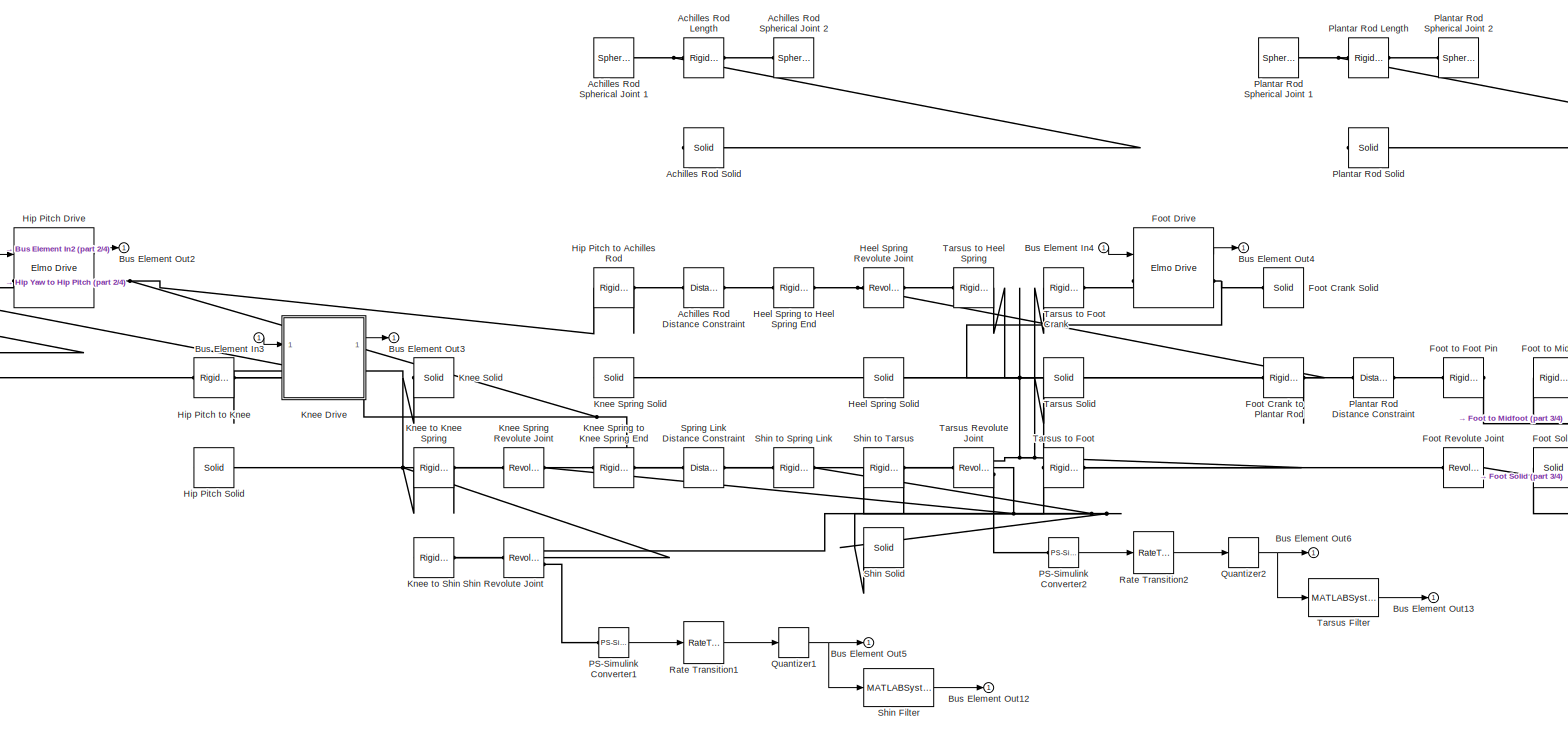
[diagram: Subsystem2/Cassie Simulation1/Cassie Left Leg - part 1/4, center side, full height]
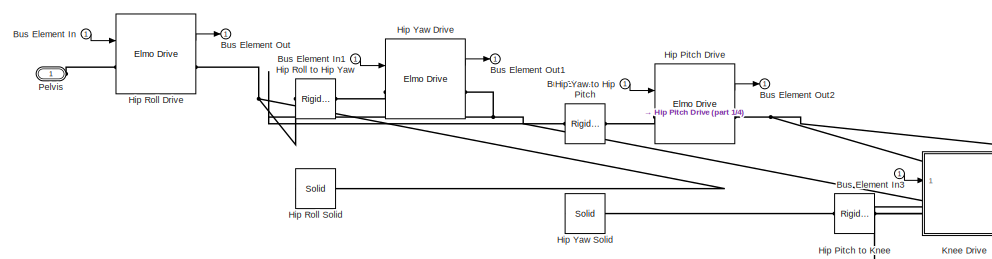
[diagram: Subsystem2/Cassie Simulation1/Cassie Left Leg - part 2/4, middle left region]
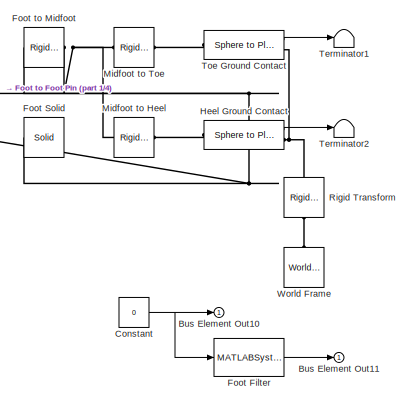
[diagram: Subsystem2/Cassie Simulation1/Cassie Left Leg - part 3/4, middle right region]
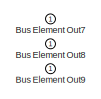
[diagram: Subsystem2/Cassie Simulation1/Cassie Left Leg - part 4/4, bottom center region]
BLOCK [SubSystem] Subsystem2/Cassie Simulation1/Cassie Left Leg
  AncestorBlock = CassieLibrary/Simulation/Cassie Leg
  Commented = on
  Ports = [1, 1, 0, 0, 0, 1]
  RequestExecContextInheritance = off
  Variant = off
BLOCK [Reference] Subsystem2/Cassie Simulation1/Cassie Left Leg/Achilles Rod Distance Constraint  REF=sm_lib/Constraints/Distance
Constraint
  Ports = [0, 0, 0, 0, 0, 1, 1]
  SourceBlock = sm_lib/Constraints/Distance\nConstraint
  SourceProductBaseCode = MS
  SourceProductName = Simscape Multibody
  SourceType = Distance\nConstraint
BLOCK [Reference] Subsystem2/Cassie Simulation1/Cassie Left Leg/Achilles Rod Length  REF=sm_lib/Frames and
Transforms/Rigid
Transform
  Commented = on
  Ports = [0, 0, 0, 0, 0, 1, 1]
  SourceBlock = sm_lib/Frames and\nTransforms/Rigid\nTransform
  SourceProductBaseCode = MS
  SourceProductName = Simscape Multibody
  SourceType = Rigid\nTransform
BLOCK [Reference] Subsystem2/Cassie Simulation1/Cassie Left Leg/Achilles Rod Solid  REF=sm_lib/Body Elements/Solid
  Commented = on
  Ports = [0, 0, 0, 0, 0, 0, 1]
  SourceBlock = sm_lib/Body Elements/Solid
  SourceProductBaseCode = MS
  SourceProductName = Simscape Multibody
  SourceType = Solid
BLOCK [Reference] Subsystem2/Cassie Simulation1/Cassie Left Leg/Achilles Rod Spherical Joint 1  REF=sm_lib/Joints/Spherical
Joint
  Commented = on
  Ports = [0, 0, 0, 0, 0, 1, 1]
  SourceBlock = sm_lib/Joints/Spherical\nJoint
  SourceProductBaseCode = MS
  SourceProductName = Simscape Multibody
  SourceType = Spherical\nJoint
BLOCK [Reference] Subsystem2/Cassie Simulation1/Cassie Left Leg/Achilles Rod Spherical Joint 2  REF=sm_lib/Joints/Spherical
Joint
  Commented = on
  Ports = [0, 0, 0, 0, 0, 1, 1]
  SourceBlock = sm_lib/Joints/Spherical\nJoint
  SourceProductBaseCode = MS
  SourceProductName = Simscape Multibody
  SourceType = Spherical\nJoint
BLOCK [Inport] Subsystem2/Cassie Simulation1/Cassie Left Leg/Bus Element In
  IconDisplay = Port number
BLOCK [Inport] Subsystem2/Cassie Simulation1/Cassie Left Leg/Bus Element In1
  IconDisplay = Port number
BLOCK [Inport] Subsystem2/Cassie Simulation1/Cassie Left Leg/Bus Element In2
  IconDisplay = Port number
BLOCK [Inport] Subsystem2/Cassie Simulation1/Cassie Left Leg/Bus Element In3
  IconDisplay = Port number
BLOCK [Inport] Subsystem2/Cassie Simulation1/Cassie Left Leg/Bus Element In4
  IconDisplay = Port number
BLOCK [Outport] Subsystem2/Cassie Simulation1/Cassie Left Leg/Bus Element Out
  IconDisplay = Port number
BLOCK [Outport] Subsystem2/Cassie Simulation1/Cassie Left Leg/Bus Element Out1
  IconDisplay = Port number
BLOCK [Outport] Subsystem2/Cassie Simulation1/Cassie Left Leg/Bus Element Out10
  IconDisplay = Port number
BLOCK [Outport] Subsystem2/Cassie Simulation1/Cassie Left Leg/Bus Element Out11
  IconDisplay = Port number
BLOCK [Outport] Subsystem2/Cassie Simulation1/Cassie Left Leg/Bus Element Out12
  IconDisplay = Port number
BLOCK [Outport] Subsystem2/Cassie Simulation1/Cassie Left Leg/Bus Element Out13
  IconDisplay = Port number
BLOCK [Outport] Subsystem2/Cassie Simulation1/Cassie Left Leg/Bus Element Out2
  IconDisplay = Port number
BLOCK [Outport] Subsystem2/Cassie Simulation1/Cassie Left Leg/Bus Element Out3
  IconDisplay = Port number
BLOCK [Outport] Subsystem2/Cassie Simulation1/Cassie Left Leg/Bus Element Out4
  IconDisplay = Port number
BLOCK [Outport] Subsystem2/Cassie Simulation1/Cassie Left Leg/Bus Element Out5
  IconDisplay = Port number
BLOCK [Outport] Subsystem2/Cassie Simulation1/Cassie Left Leg/Bus Element Out6
  IconDisplay = Port number
BLOCK [Outport] Subsystem2/Cassie Simulation1/Cassie Left Leg/Bus Element Out7
  IconDisplay = Port number
BLOCK [Outport] Subsystem2/Cassie Simulation1/Cassie Left Leg/Bus Element Out8
  IconDisplay = Port number
BLOCK [Outport] Subsystem2/Cassie Simulation1/Cassie Left Leg/Bus Element Out9
  IconDisplay = Port number
BLOCK [Constant] Subsystem2/Cassie Simulation1/Cassie Left Leg/Constant
  Value = 0
BLOCK [Reference] Subsystem2/Cassie Simulation1/Cassie Left Leg/Foot Crank Solid  REF=sm_lib/Body Elements/Solid
  Ports = [0, 0, 0, 0, 0, 0, 1]
  SourceBlock = sm_lib/Body Elements/Solid
  SourceProductBaseCode = MS
  SourceProductName = Simscape Multibody
  SourceType = Solid
BLOCK [Reference] Subsystem2/Cassie Simulation1/Cassie Left Leg/Foot Crank to Plantar Rod  REF=sm_lib/Frames and
Transforms/Rigid
Transform
  Ports = [0, 0, 0, 0, 0, 1, 1]
  SourceBlock = sm_lib/Frames and\nTransforms/Rigid\nTransform
  SourceProductBaseCode = MS
  SourceProductName = Simscape Multibody
  SourceType = Rigid\nTransform
BLOCK [Reference] Subsystem2/Cassie Simulation1/Cassie Left Leg/Foot Drive  REF=ComponentLibrary/Simulation/Elmo Drive
  Ports = [1, 1, 0, 0, 0, 1, 1]
  SourceBlock = ComponentLibrary/Simulation/Elmo Drive
BLOCK [MATLABSystem] Subsystem2/Cassie Simulation1/Cassie Left Leg/Foot Filter
  MaskDisplay = disp('Filter');
  MaskType = FilterSystem
  Ports = [1, 1]
  SimulateUsing = Code generation
  System = FilterSystem
  a = [1 -1.76575295625865 0.790448801800725]
  b = [12.3479227710395 12.3479227710395 -12.3479227710395 -12.3479227710395]
BLOCK [Reference] Subsystem2/Cassie Simulation1/Cassie Left Leg/Foot Revolute Joint  REF=sm_lib/Joints/Revolute Joint
  Ports = [0, 0, 0, 0, 0, 1, 1]
  SourceBlock = sm_lib/Joints/Revolute Joint
  SourceProductBaseCode = MS
  SourceProductName = Simscape Multibody
  SourceType = Revolute Joint
BLOCK [Reference] Subsystem2/Cassie Simulation1/Cassie Left Leg/Foot Solid  REF=sm_lib/Body Elements/Solid
  Ports = [0, 0, 0, 0, 0, 0, 1]
  SourceBlock = sm_lib/Body Elements/Solid
  SourceProductBaseCode = MS
  SourceProductName = Simscape Multibody
  SourceType = Solid
BLOCK [Reference] Subsystem2/Cassie Simulation1/Cassie Left Leg/Foot to Foot Pin  REF=sm_lib/Frames and
Transforms/Rigid
Transform
  Ports = [0, 0, 0, 0, 0, 1, 1]
  SourceBlock = sm_lib/Frames and\nTransforms/Rigid\nTransform
  SourceProductBaseCode = MS
  SourceProductName = Simscape Multibody
  SourceType = Rigid\nTransform
BLOCK [Reference] Subsystem2/Cassie Simulation1/Cassie Left Leg/Foot to Midfoot  REF=sm_lib/Frames and
Transforms/Rigid
Transform
  Ports = [0, 0, 0, 0, 0, 1, 1]
  SourceBlock = sm_lib/Frames and\nTransforms/Rigid\nTransform
  SourceProductBaseCode = MS
  SourceProductName = Simscape Multibody
  SourceType = Rigid\nTransform
BLOCK [Reference] Subsystem2/Cassie Simulation1/Cassie Left Leg/Heel Ground Contact  REF=Contact_Forces_Lib/3D/Sphere to Plane Force
  Ports = [0, 1, 0, 0, 0, 1, 1]
  SourceBlock = Contact_Forces_Lib/3D/Sphere to Plane Force
  SourceProductName = Simscape Multibody Contact Forces Library
  SourceType = Sphere to Plane Force
BLOCK [Reference] Subsystem2/Cassie Simulation1/Cassie Left Leg/Heel Spring Revolute Joint  REF=sm_lib/Joints/Revolute Joint
  Ports = [0, 0, 0, 0, 0, 1, 1]
  SourceBlock = sm_lib/Joints/Revolute Joint
  SourceProductBaseCode = MS
  SourceProductName = Simscape Multibody
  SourceType = Revolute Joint
BLOCK [Reference] Subsystem2/Cassie Simulation1/Cassie Left Leg/Heel Spring Solid  REF=sm_lib/Body Elements/Solid
  Ports = [0, 0, 0, 0, 0, 0, 1]
  SourceBlock = sm_lib/Body Elements/Solid
  SourceProductBaseCode = MS
  SourceProductName = Simscape Multibody
  SourceType = Solid
BLOCK [Reference] Subsystem2/Cassie Simulation1/Cassie Left Leg/Heel Spring to Heel Spring End  REF=sm_lib/Frames and
Transforms/Rigid
Transform
  Ports = [0, 0, 0, 0, 0, 1, 1]
  SourceBlock = sm_lib/Frames and\nTransforms/Rigid\nTransform
  SourceProductBaseCode = MS
  SourceProductName = Simscape Multibody
  SourceType = Rigid\nTransform
BLOCK [Reference] Subsystem2/Cassie Simulation1/Cassie Left Leg/Hip Pitch Drive  REF=ComponentLibrary/Simulation/Elmo Drive
  Ports = [1, 1, 0, 0, 0, 1, 1]
  SourceBlock = ComponentLibrary/Simulation/Elmo Drive
BLOCK [Reference] Subsystem2/Cassie Simulation1/Cassie Left Leg/Hip Pitch Solid  REF=sm_lib/Body Elements/Solid
  Ports = [0, 0, 0, 0, 0, 0, 1]
  SourceBlock = sm_lib/Body Elements/Solid
  SourceProductBaseCode = MS
  SourceProductName = Simscape Multibody
  SourceType = Solid
BLOCK [Reference] Subsystem2/Cassie Simulation1/Cassie Left Leg/Hip Pitch to Achilles Rod  REF=sm_lib/Frames and
Transforms/Rigid
Transform
  Ports = [0, 0, 0, 0, 0, 1, 1]
  SourceBlock = sm_lib/Frames and\nTransforms/Rigid\nTransform
  SourceProductBaseCode = MS
  SourceProductName = Simscape Multibody
  SourceType = Rigid\nTransform
BLOCK [Reference] Subsystem2/Cassie Simulation1/Cassie Left Leg/Hip Pitch to Knee  REF=sm_lib/Frames and
Transforms/Rigid
Transform
  Ports = [0, 0, 0, 0, 0, 1, 1]
  SourceBlock = sm_lib/Frames and\nTransforms/Rigid\nTransform
  SourceProductBaseCode = MS
  SourceProductName = Simscape Multibody
  SourceType = Rigid\nTransform
BLOCK [Reference] Subsystem2/Cassie Simulation1/Cassie Left Leg/Hip Roll Drive  REF=ComponentLibrary/Simulation/Elmo Drive
  Ports = [1, 1, 0, 0, 0, 1, 1]
  SourceBlock = ComponentLibrary/Simulation/Elmo Drive
BLOCK [Reference] Subsystem2/Cassie Simulation1/Cassie Left Leg/Hip Roll Solid  REF=sm_lib/Body Elements/Solid
  Ports = [0, 0, 0, 0, 0, 0, 1]
  SourceBlock = sm_lib/Body Elements/Solid
  SourceProductBaseCode = MS
  SourceProductName = Simscape Multibody
  SourceType = Solid
BLOCK [Reference] Subsystem2/Cassie Simulation1/Cassie Left Leg/Hip Roll to Hip Yaw  REF=sm_lib/Frames and
Transforms/Rigid
Transform
  Ports = [0, 0, 0, 0, 0, 1, 1]
  SourceBlock = sm_lib/Frames and\nTransforms/Rigid\nTransform
  SourceProductBaseCode = MS
  SourceProductName = Simscape Multibody
  SourceType = Rigid\nTransform
BLOCK [Reference] Subsystem2/Cassie Simulation1/Cassie Left Leg/Hip Yaw Drive  REF=ComponentLibrary/Simulation/Elmo Drive
  Ports = [1, 1, 0, 0, 0, 1, 1]
  SourceBlock = ComponentLibrary/Simulation/Elmo Drive
BLOCK [Reference] Subsystem2/Cassie Simulation1/Cassie Left Leg/Hip Yaw Solid  REF=sm_lib/Body Elements/Solid
  Ports = [0, 0, 0, 0, 0, 0, 1]
  SourceBlock = sm_lib/Body Elements/Solid
  SourceProductBaseCode = MS
  SourceProductName = Simscape Multibody
  SourceType = Solid
BLOCK [Reference] Subsystem2/Cassie Simulation1/Cassie Left Leg/Hip Yaw to Hip Pitch  REF=sm_lib/Frames and
Transforms/Rigid
Transform
  Ports = [0, 0, 0, 0, 0, 1, 1]
  SourceBlock = sm_lib/Frames and\nTransforms/Rigid\nTransform
  SourceProductBaseCode = MS
  SourceProductName = Simscape Multibody
  SourceType = Rigid\nTransform
BLOCK [SubSystem] Subsystem2/Cassie Simulation1/Cassie Left Leg/Knee Drive
  AncestorBlock = ComponentLibrary/Simulation/Elmo Drive
  Ports = [1, 1, 0, 0, 0, 1, 1]
  RequestExecContextInheritance = off
  Variant = off
BLOCK [Gain] Subsystem2/Cassie Simulation1/Cassie Left Leg/Knee Drive/Actual Torque Scaling
  Gain = -gearRatio
  OutDataTypeStr = Inherit: Inherit via internal rule
  ParamDataTypeStr = Inherit: Inherit via internal rule
  SaturateOnIntegerOverflow = off
BLOCK [PMIOPort] Subsystem2/Cassie Simulation1/Cassie Left Leg/Knee Drive/Base
  Port = 1
  Side = Left
BLOCK [Inport] Subsystem2/Cassie Simulation1/Cassie Left Leg/Knee Drive/Bus Element In
  IconDisplay = Port number
BLOCK [Outport] Subsystem2/Cassie Simulation1/Cassie Left Leg/Knee Drive/Bus Element Out
  IconDisplay = Port number
BLOCK [Outport] Subsystem2/Cassie Simulation1/Cassie Left Leg/Knee Drive/Bus Element Out1
  IconDisplay = Port number
BLOCK [Outport] Subsystem2/Cassie Simulation1/Cassie Left Leg/Knee Drive/Bus Element Out2
  IconDisplay = Port number
BLOCK [Outport] Subsystem2/Cassie Simulation1/Cassie Left Leg/Knee Drive/Bus Element Out3
  IconDisplay = Port number
BLOCK [Outport] Subsystem2/Cassie Simulation1/Cassie Left Leg/Knee Drive/Bus Element Out4
  IconDisplay = Port number
BLOCK [Outport] Subsystem2/Cassie Simulation1/Cassie Left Leg/Knee Drive/Bus Element Out5
  IconDisplay = Port number
BLOCK [Outport] Subsystem2/Cassie Simulation1/Cassie Left Leg/Knee Drive/Bus Element Out6
  IconDisplay = Port number
BLOCK [Outport] Subsystem2/Cassie Simulation1/Cassie Left Leg/Knee Drive/Bus Element Out7
  IconDisplay = Port number
BLOCK [Constant] Subsystem2/Cassie Simulation1/Cassie Left Leg/Knee Drive/Constant1
  Value = 0
BLOCK [Constant] Subsystem2/Cassie Simulation1/Cassie Left Leg/Knee Drive/Constant2
  OutDataTypeStr = uint16
  Value = 0
BLOCK [Constant] Subsystem2/Cassie Simulation1/Cassie Left Leg/Knee Drive/Constant3
  Value = 0
BLOCK [Constant] Subsystem2/Cassie Simulation1/Cassie Left Leg/Knee Drive/Constant4
  Value = peakTorque*gearRatio
BLOCK [Constant] Subsystem2/Cassie Simulation1/Cassie Left Leg/Knee Drive/Constant5
  Value = gearRatio
BLOCK [PMIOPort] Subsystem2/Cassie Simulation1/Cassie Left Leg/Knee Drive/Follower
  Port = 2
  Side = Right
BLOCK [Reference] Subsystem2/Cassie Simulation1/Cassie Left Leg/Knee Drive/Gear Constraint  REF=sm_lib/Gears and
Couplings/Gears/Common Gear
Constraint
  Ports = [0, 0, 0, 0, 0, 1, 1]
  SourceBlock = sm_lib/Gears and\nCouplings/Gears/Common Gear\nConstraint
  SourceProductBaseCode = MS
  SourceProductName = Simscape Multibody
  SourceType = Common Gear\nConstraint
BLOCK [Reference] Subsystem2/Cassie Simulation1/Cassie Left Leg/Knee Drive/Gear Constraint Offset  REF=sm_lib/Frames and
Transforms/Rigid
Transform
  Ports = [0, 0, 0, 0, 0, 1, 1]
  SourceBlock = sm_lib/Frames and\nTransforms/Rigid\nTransform
  SourceProductBaseCode = MS
  SourceProductName = Simscape Multibody
  SourceType = Rigid\nTransform
BLOCK [Reference] Subsystem2/Cassie Simulation1/Cassie Left Leg/Knee Drive/Input Revolute Joint  REF=sm_lib/Joints/Revolute Joint
  Ports = [0, 0, 0, 0, 0, 2, 2]
  SourceBlock = sm_lib/Joints/Revolute Joint
  SourceProductBaseCode = MS
  SourceProductName = Simscape Multibody
  SourceType = Revolute Joint
BLOCK [SubSystem] Subsystem2/Cassie Simulation1/Cassie Left Leg/Knee Drive/MATLAB Function
  ErrorFcn = Stateflow.Translate.translate
  PermitHierarchicalResolution = ExplicitOnly
  Ports = [2, 1]
  RequestExecContextInheritance = off
  SFBlockType = MATLAB Function
  TreatAsAtomicUnit = on
  Variant = off
BLOCK [Demux] Subsystem2/Cassie Simulation1/Cassie Left Leg/Knee Drive/MATLAB Function/ Demux 
  Outputs = 1
  Ports = [1, 1]
BLOCK [S-Function] Subsystem2/Cassie Simulation1/Cassie Left Leg/Knee Drive/MATLAB Function/ SFunction 
  EnableBusSupport = on
  FunctionName = sf_sfun
  Parameters = peakSpeed,peakTorque
  PortCounts = [2 2]
  Ports = [2, 2]
  SFcnIsStateOwnerBlock = off
  SFunctionDeploymentMode = off
  Tag = Stateflow S-Function Ideal_Simulator 1
BLOCK [Terminator] Subsystem2/Cassie Simulation1/Cassie Left Leg/Knee Drive/MATLAB Function/ Terminator 
BLOCK [Inport] Subsystem2/Cassie Simulation1/Cassie Left Leg/Knee Drive/MATLAB Function/speed
  IconDisplay = Port number
BLOCK [Outport] Subsystem2/Cassie Simulation1/Cassie Left Leg/Knee Drive/MATLAB Function/torque
  IconDisplay = Port number
BLOCK [Inport] Subsystem2/Cassie Simulation1/Cassie Left Leg/Knee Drive/MATLAB Function/torque 
  IconDisplay = Port number
  Port = 2
BLOCK [Reference] Subsystem2/Cassie Simulation1/Cassie Left Leg/Knee Drive/Output Revolute Joint  REF=sm_lib/Joints/Revolute Joint
  Ports = [0, 0, 0, 0, 0, 1, 3]
  SourceBlock = sm_lib/Joints/Revolute Joint
  SourceProductBaseCode = MS
  SourceProductName = Simscape Multibody
  SourceType = Revolute Joint
BLOCK [Reference] Subsystem2/Cassie Simulation1/Cassie Left Leg/Knee Drive/PS-Simulink Converter  REF=nesl_utility/PS-Simulink
Converter
  Ports = [0, 1, 0, 0, 0, 1]
  SourceBlock = nesl_utility/PS-Simulink\nConverter
  SourceProductBaseCode = SS
  SourceProductName = Simscape
  SourceType = PS-Simulink\nConverter
BLOCK [Reference] Subsystem2/Cassie Simulation1/Cassie Left Leg/Knee Drive/PS-Simulink Converter1  REF=nesl_utility/PS-Simulink
Converter
  Ports = [0, 1, 0, 0, 0, 1]
  SourceBlock = nesl_utility/PS-Simulink\nConverter
  SourceProductBaseCode = SS
  SourceProductName = Simscape
  SourceType = PS-Simulink\nConverter
BLOCK [Reference] Subsystem2/Cassie Simulation1/Cassie Left Leg/Knee Drive/PS-Simulink Converter2  REF=nesl_utility/PS-Simulink
Converter
  Ports = [0, 1, 0, 0, 0, 1]
  SourceBlock = nesl_utility/PS-Simulink\nConverter
  SourceProductBaseCode = SS
  SourceProductName = Simscape
  SourceType = PS-Simulink\nConverter
BLOCK [Quantizer] Subsystem2/Cassie Simulation1/Cassie Left Leg/Knee Drive/Quantizer
  QuantizationInterval = (2*pi)/(encoderResolution*gearRatio)
BLOCK [RateTransition] Subsystem2/Cassie Simulation1/Cassie Left Leg/Knee Drive/Rate Transition
  Deterministic = off
  InitialCondition = initialPosition
  OutPortSampleTimeOpt = Inherit
BLOCK [RateTransition] Subsystem2/Cassie Simulation1/Cassie Left Leg/Knee Drive/Rate Transition1
  Deterministic = off
  InitialCondition = initialPosition
  OutPortSampleTimeOpt = Inherit
BLOCK [Reference] Subsystem2/Cassie Simulation1/Cassie Left Leg/Knee Drive/Rotor Solid  REF=sm_lib/Body Elements/Solid
  Ports = [0, 0, 0, 0, 0, 0, 1]
  SourceBlock = sm_lib/Body Elements/Solid
  SourceProductBaseCode = MS
  SourceProductName = Simscape Multibody
  SourceType = Solid
BLOCK [Reference] Subsystem2/Cassie Simulation1/Cassie Left Leg/Knee Drive/Simulink-PS Converter  REF=nesl_utility/Simulink-PS
Converter
  Ports = [1, 0, 0, 0, 0, 0, 1]
  SourceBlock = nesl_utility/Simulink-PS\nConverter
  SourceProductBaseCode = SS
  SourceProductName = Simscape
  SourceType = Simulink-PS\nConverter
BLOCK [Gain] Subsystem2/Cassie Simulation1/Cassie Left Leg/Knee Drive/Target Torque Scaling
  Gain = -1/gearRatio
  OutDataTypeStr = Inherit: Inherit via internal rule
  ParamDataTypeStr = Inherit: Inherit via internal rule
  SaturateOnIntegerOverflow = off
BLOCK [Reference] Subsystem2/Cassie Simulation1/Cassie Left Leg/Knee Solid  REF=sm_lib/Body Elements/Solid
  Ports = [0, 0, 0, 0, 0, 0, 1]
  SourceBlock = sm_lib/Body Elements/Solid
  SourceProductBaseCode = MS
  SourceProductName = Simscape Multibody
  SourceType = Solid
BLOCK [Reference] Subsystem2/Cassie Simulation1/Cassie Left Leg/Knee Spring Revolute Joint  REF=sm_lib/Joints/Revolute Joint
  Ports = [0, 0, 0, 0, 0, 1, 1]
  SourceBlock = sm_lib/Joints/Revolute Joint
  SourceProductBaseCode = MS
  SourceProductName = Simscape Multibody
  SourceType = Revolute Joint
BLOCK [Reference] Subsystem2/Cassie Simulation1/Cassie Left Leg/Knee Spring Solid  REF=sm_lib/Body Elements/Solid
  Ports = [0, 0, 0, 0, 0, 0, 1]
  SourceBlock = sm_lib/Body Elements/Solid
  SourceProductBaseCode = MS
  SourceProductName = Simscape Multibody
  SourceType = Solid
BLOCK [Reference] Subsystem2/Cassie Simulation1/Cassie Left Leg/Knee Spring to Knee Spring End  REF=sm_lib/Frames and
Transforms/Rigid
Transform
  Ports = [0, 0, 0, 0, 0, 1, 1]
  SourceBlock = sm_lib/Frames and\nTransforms/Rigid\nTransform
  SourceProductBaseCode = MS
  SourceProductName = Simscape Multibody
  SourceType = Rigid\nTransform
BLOCK [Reference] Subsystem2/Cassie Simulation1/Cassie Left Leg/Knee to Knee Spring  REF=sm_lib/Frames and
Transforms/Rigid
Transform
  Ports = [0, 0, 0, 0, 0, 1, 1]
  SourceBlock = sm_lib/Frames and\nTransforms/Rigid\nTransform
  SourceProductBaseCode = MS
  SourceProductName = Simscape Multibody
  SourceType = Rigid\nTransform
BLOCK [Reference] Subsystem2/Cassie Simulation1/Cassie Left Leg/Knee to Shin  REF=sm_lib/Frames and
Transforms/Rigid
Transform
  Ports = [0, 0, 0, 0, 0, 1, 1]
  SourceBlock = sm_lib/Frames and\nTransforms/Rigid\nTransform
  SourceProductBaseCode = MS
  SourceProductName = Simscape Multibody
  SourceType = Rigid\nTransform
BLOCK [Reference] Subsystem2/Cassie Simulation1/Cassie Left Leg/Midfoot to Heel  REF=sm_lib/Frames and
Transforms/Rigid
Transform
  Ports = [0, 0, 0, 0, 0, 1, 1]
  SourceBlock = sm_lib/Frames and\nTransforms/Rigid\nTransform
  SourceProductBaseCode = MS
  SourceProductName = Simscape Multibody
  SourceType = Rigid\nTransform
BLOCK [Reference] Subsystem2/Cassie Simulation1/Cassie Left Leg/Midfoot to Toe  REF=sm_lib/Frames and
Transforms/Rigid
Transform
  Ports = [0, 0, 0, 0, 0, 1, 1]
  SourceBlock = sm_lib/Frames and\nTransforms/Rigid\nTransform
  SourceProductBaseCode = MS
  SourceProductName = Simscape Multibody
  SourceType = Rigid\nTransform
BLOCK [Reference] Subsystem2/Cassie Simulation1/Cassie Left Leg/PS-Simulink Converter1  REF=nesl_utility/PS-Simulink
Converter
  Ports = [0, 1, 0, 0, 0, 1]
  SourceBlock = nesl_utility/PS-Simulink\nConverter
  SourceProductBaseCode = SS
  SourceProductName = Simscape
  SourceType = PS-Simulink\nConverter
BLOCK [Reference] Subsystem2/Cassie Simulation1/Cassie Left Leg/PS-Simulink Converter2  REF=nesl_utility/PS-Simulink
Converter
  Ports = [0, 1, 0, 0, 0, 1]
  SourceBlock = nesl_utility/PS-Simulink\nConverter
  SourceProductBaseCode = SS
  SourceProductName = Simscape
  SourceType = PS-Simulink\nConverter
BLOCK [PMIOPort] Subsystem2/Cassie Simulation1/Cassie Left Leg/Pelvis
  Port = 1
  Side = Left
BLOCK [Reference] Subsystem2/Cassie Simulation1/Cassie Left Leg/Plantar Rod Distance Constraint  REF=sm_lib/Constraints/Distance
Constraint
  Ports = [0, 0, 0, 0, 0, 1, 1]
  SourceBlock = sm_lib/Constraints/Distance\nConstraint
  SourceProductBaseCode = MS
  SourceProductName = Simscape Multibody
  SourceType = Distance\nConstraint
BLOCK [Reference] Subsystem2/Cassie Simulation1/Cassie Left Leg/Plantar Rod Length  REF=sm_lib/Frames and
Transforms/Rigid
Transform
  Commented = on
  Ports = [0, 0, 0, 0, 0, 1, 1]
  SourceBlock = sm_lib/Frames and\nTransforms/Rigid\nTransform
  SourceProductBaseCode = MS
  SourceProductName = Simscape Multibody
  SourceType = Rigid\nTransform
BLOCK [Reference] Subsystem2/Cassie Simulation1/Cassie Left Leg/Plantar Rod Solid  REF=sm_lib/Body Elements/Solid
  Commented = on
  Ports = [0, 0, 0, 0, 0, 0, 1]
  SourceBlock = sm_lib/Body Elements/Solid
  SourceProductBaseCode = MS
  SourceProductName = Simscape Multibody
  SourceType = Solid
BLOCK [Reference] Subsystem2/Cassie Simulation1/Cassie Left Leg/Plantar Rod Spherical Joint 1  REF=sm_lib/Joints/Spherical
Joint
  Commented = on
  Ports = [0, 0, 0, 0, 0, 1, 1]
  SourceBlock = sm_lib/Joints/Spherical\nJoint
  SourceProductBaseCode = MS
  SourceProductName = Simscape Multibody
  SourceType = Spherical\nJoint
BLOCK [Reference] Subsystem2/Cassie Simulation1/Cassie Left Leg/Plantar Rod Spherical Joint 2  REF=sm_lib/Joints/Spherical
Joint
  Commented = on
  Ports = [0, 0, 0, 0, 0, 1, 1]
  SourceBlock = sm_lib/Joints/Spherical\nJoint
  SourceProductBaseCode = MS
  SourceProductName = Simscape Multibody
  SourceType = Spherical\nJoint
BLOCK [Quantizer] Subsystem2/Cassie Simulation1/Cassie Left Leg/Quantizer1
  QuantizationInterval = (2*pi)/2^19
BLOCK [Quantizer] Subsystem2/Cassie Simulation1/Cassie Left Leg/Quantizer2
  QuantizationInterval = (2*pi)/2^19
BLOCK [RateTransition] Subsystem2/Cassie Simulation1/Cassie Left Leg/Rate Transition1
  Deterministic = off
  OutPortSampleTimeOpt = Inherit
BLOCK [RateTransition] Subsystem2/Cassie Simulation1/Cassie Left Leg/Rate Transition2
  Deterministic = off
  OutPortSampleTimeOpt = Inherit
BLOCK [Reference] Subsystem2/Cassie Simulation1/Cassie Left Leg/Rigid Transform  REF=sm_lib/Frames and
Transforms/Rigid
Transform
  Ports = [0, 0, 0, 0, 0, 1, 1]
  SourceBlock = sm_lib/Frames and\nTransforms/Rigid\nTransform
  SourceProductBaseCode = MS
  SourceProductName = Simscape Multibody
  SourceType = Rigid\nTransform
BLOCK [MATLABSystem] Subsystem2/Cassie Simulation1/Cassie Left Leg/Shin Filter
  MaskDisplay = disp('Filter');
  MaskType = FilterSystem
  Ports = [1, 1]
  SimulateUsing = Code generation
  System = FilterSystem
  a = [1 -1.76575295625865 0.790448801800725]
  b = [12.3479227710395 12.3479227710395 -12.3479227710395 -12.3479227710395]
BLOCK [Reference] Subsystem2/Cassie Simulation1/Cassie Left Leg/Shin Revolute Joint  REF=sm_lib/Joints/Revolute Joint
  Ports = [0, 0, 0, 0, 0, 1, 2]
  SourceBlock = sm_lib/Joints/Revolute Joint
  SourceProductBaseCode = MS
  SourceProductName = Simscape Multibody
  SourceType = Revolute Joint
BLOCK [Reference] Subsystem2/Cassie Simulation1/Cassie Left Leg/Shin Solid  REF=sm_lib/Body Elements/Solid
  Ports = [0, 0, 0, 0, 0, 0, 1]
  SourceBlock = sm_lib/Body Elements/Solid
  SourceProductBaseCode = MS
  SourceProductName = Simscape Multibody
  SourceType = Solid
BLOCK [Reference] Subsystem2/Cassie Simulation1/Cassie Left Leg/Shin to Spring Link  REF=sm_lib/Frames and
Transforms/Rigid
Transform
  Ports = [0, 0, 0, 0, 0, 1, 1]
  SourceBlock = sm_lib/Frames and\nTransforms/Rigid\nTransform
  SourceProductBaseCode = MS
  SourceProductName = Simscape Multibody
  SourceType = Rigid\nTransform
BLOCK [Reference] Subsystem2/Cassie Simulation1/Cassie Left Leg/Shin to Tarsus  REF=sm_lib/Frames and
Transforms/Rigid
Transform
  Ports = [0, 0, 0, 0, 0, 1, 1]
  SourceBlock = sm_lib/Frames and\nTransforms/Rigid\nTransform
  SourceProductBaseCode = MS
  SourceProductName = Simscape Multibody
  SourceType = Rigid\nTransform
BLOCK [Reference] Subsystem2/Cassie Simulation1/Cassie Left Leg/Spring Link Distance Constraint  REF=sm_lib/Constraints/Distance
Constraint
  Ports = [0, 0, 0, 0, 0, 1, 1]
  SourceBlock = sm_lib/Constraints/Distance\nConstraint
  SourceProductBaseCode = MS
  SourceProductName = Simscape Multibody
  SourceType = Distance\nConstraint
BLOCK [MATLABSystem] Subsystem2/Cassie Simulation1/Cassie Left Leg/Tarsus Filter
  MaskDisplay = disp('Filter');
  MaskType = FilterSystem
  Ports = [1, 1]
  SimulateUsing = Code generation
  System = FilterSystem
  a = [1 -1.76575295625865 0.790448801800725]
  b = [12.3479227710395 12.3479227710395 -12.3479227710395 -12.3479227710395]
BLOCK [Reference] Subsystem2/Cassie Simulation1/Cassie Left Leg/Tarsus Revolute Joint  REF=sm_lib/Joints/Revolute Joint
  Ports = [0, 0, 0, 0, 0, 1, 2]
  SourceBlock = sm_lib/Joints/Revolute Joint
  SourceProductBaseCode = MS
  SourceProductName = Simscape Multibody
  SourceType = Revolute Joint
BLOCK [Reference] Subsystem2/Cassie Simulation1/Cassie Left Leg/Tarsus Solid  REF=sm_lib/Body Elements/Solid
  Ports = [0, 0, 0, 0, 0, 0, 1]
  SourceBlock = sm_lib/Body Elements/Solid
  SourceProductBaseCode = MS
  SourceProductName = Simscape Multibody
  SourceType = Solid
BLOCK [Reference] Subsystem2/Cassie Simulation1/Cassie Left Leg/Tarsus to Foot  REF=sm_lib/Frames and
Transforms/Rigid
Transform
  Ports = [0, 0, 0, 0, 0, 1, 1]
  SourceBlock = sm_lib/Frames and\nTransforms/Rigid\nTransform
  SourceProductBaseCode = MS
  SourceProductName = Simscape Multibody
  SourceType = Rigid\nTransform
BLOCK [Reference] Subsystem2/Cassie Simulation1/Cassie Left Leg/Tarsus to Foot Crank  REF=sm_lib/Frames and
Transforms/Rigid
Transform
  Ports = [0, 0, 0, 0, 0, 1, 1]
  SourceBlock = sm_lib/Frames and\nTransforms/Rigid\nTransform
  SourceProductBaseCode = MS
  SourceProductName = Simscape Multibody
  SourceType = Rigid\nTransform
BLOCK [Reference] Subsystem2/Cassie Simulation1/Cassie Left Leg/Tarsus to Heel Spring  REF=sm_lib/Frames and
Transforms/Rigid
Transform
  Ports = [0, 0, 0, 0, 0, 1, 1]
  SourceBlock = sm_lib/Frames and\nTransforms/Rigid\nTransform
  SourceProductBaseCode = MS
  SourceProductName = Simscape Multibody
  SourceType = Rigid\nTransform
BLOCK [Terminator] Subsystem2/Cassie Simulation1/Cassie Left Leg/Terminator1
BLOCK [Terminator] Subsystem2/Cassie Simulation1/Cassie Left Leg/Terminator2
BLOCK [Reference] Subsystem2/Cassie Simulation1/Cassie Left Leg/Toe Ground Contact  REF=Contact_Forces_Lib/3D/Sphere to Plane Force
  Ports = [0, 1, 0, 0, 0, 1, 1]
  SourceBlock = Contact_Forces_Lib/3D/Sphere to Plane Force
  SourceProductName = Simscape Multibody Contact Forces Library
  SourceType = Sphere to Plane Force
BLOCK [Reference] Subsystem2/Cassie Simulation1/Cassie Left Leg/World Frame  REF=sm_lib/Frames and
Transforms/World Frame
  Ports = [0, 0, 0, 0, 0, 0, 1]
  SourceBlock = sm_lib/Frames and\nTransforms/World Frame
  SourceProductBaseCode = MS
  SourceProductName = Simscape Multibody
  SourceType = World Frame
BLOCK [SubSystem] Subsystem2/Cassie Simulation1/Cassie Left Leg1
  Ports = [2, 1]
  RequestExecContextInheritance = off
  Variant = off
BLOCK [Outport] Subsystem2/Cassie Simulation1/Cassie Left Leg1/Bus Element Out
  IconDisplay = Port number
BLOCK [Outport] Subsystem2/Cassie Simulation1/Cassie Left Leg1/Bus Element Out1
  IconDisplay = Port number
BLOCK [Outport] Subsystem2/Cassie Simulation1/Cassie Left Leg1/Bus Element Out10
  IconDisplay = Port number
BLOCK [Outport] Subsystem2/Cassie Simulation1/Cassie Left Leg1/Bus Element Out11
  IconDisplay = Port number
BLOCK [Outport] Subsystem2/Cassie Simulation1/Cassie Left Leg1/Bus Element Out12
  IconDisplay = Port number
BLOCK [Outport] Subsystem2/Cassie Simulation1/Cassie Left Leg1/Bus Element Out13
  IconDisplay = Port number
BLOCK [Outport] Subsystem2/Cassie Simulation1/Cassie Left Leg1/Bus Element Out2
  IconDisplay = Port number
BLOCK [Outport] Subsystem2/Cassie Simulation1/Cassie Left Leg1/Bus Element Out3
  IconDisplay = Port number
BLOCK [Outport] Subsystem2/Cassie Simulation1/Cassie Left Leg1/Bus Element Out4
  IconDisplay = Port number
BLOCK [Outport] Subsystem2/Cassie Simulation1/Cassie Left Leg1/Bus Element Out5
  IconDisplay = Port number
BLOCK [Outport] Subsystem2/Cassie Simulation1/Cassie Left Leg1/Bus Element Out6
  IconDisplay = Port number
BLOCK [Outport] Subsystem2/Cassie Simulation1/Cassie Left Leg1/Bus Element Out7
  IconDisplay = Port number
BLOCK [Outport] Subsystem2/Cassie Simulation1/Cassie Left Leg1/Bus Element Out8
  IconDisplay = Port number
BLOCK [Outport] Subsystem2/Cassie Simulation1/Cassie Left Leg1/Bus Element Out9
  IconDisplay = Port number
BLOCK [Constant] Subsystem2/Cassie Simulation1/Cassie Left Leg1/Constant
  Value = 0
BLOCK [Demux] Subsystem2/Cassie Simulation1/Cassie Left Leg1/Demux
  DisplayOption = bar
  Outputs = 7
  Ports = [1, 7]
BLOCK [Demux] Subsystem2/Cassie Simulation1/Cassie Left Leg1/Demux1
  DisplayOption = bar
  Outputs = 7
  Ports = [1, 7]
BLOCK [Inport] Subsystem2/Cassie Simulation1/Cassie Left Leg1/GRF_v
  IconDisplay = Port number
  Port = 2
BLOCK [SubSystem] Subsystem2/Cassie Simulation1/Cassie Left Leg1/Hip Roll Drive
  Ports = [2, 1]
  RequestExecContextInheritance = off
  Variant = off
BLOCK [Outport] Subsystem2/Cassie Simulation1/Cassie Left Leg1/Hip Roll Drive/Bus Element Out
  IconDisplay = Port number
BLOCK [Outport] Subsystem2/Cassie Simulation1/Cassie Left Leg1/Hip Roll Drive/Bus Element Out1
  IconDisplay = Port number
BLOCK [Outport] Subsystem2/Cassie Simulation1/Cassie Left Leg1/Hip Roll Drive/Bus Element Out2
  IconDisplay = Port number
BLOCK [Outport] Subsystem2/Cassie Simulation1/Cassie Left Leg1/Hip Roll Drive/Bus Element Out3
  IconDisplay = Port number
BLOCK [Outport] Subsystem2/Cassie Simulation1/Cassie Left Leg1/Hip Roll Drive/Bus Element Out4
  IconDisplay = Port number
BLOCK [Outport] Subsystem2/Cassie Simulation1/Cassie Left Leg1/Hip Roll Drive/Bus Element Out5
  IconDisplay = Port number
BLOCK [Outport] Subsystem2/Cassie Simulation1/Cassie Left Leg1/Hip Roll Drive/Bus Element Out6
  IconDisplay = Port number
BLOCK [Outport] Subsystem2/Cassie Simulation1/Cassie Left Leg1/Hip Roll Drive/Bus Element Out7
  IconDisplay = Port number
BLOCK [Constant] Subsystem2/Cassie Simulation1/Cassie Left Leg1/Hip Roll Drive/Constant1
  Value = 0
BLOCK [Constant] Subsystem2/Cassie Simulation1/Cassie Left Leg1/Hip Roll Drive/Constant2
  OutDataTypeStr = uint16
  Value = 0
BLOCK [Constant] Subsystem2/Cassie Simulation1/Cassie Left Leg1/Hip Roll Drive/Constant3
  Value = 0
BLOCK [Constant] Subsystem2/Cassie Simulation1/Cassie Left Leg1/Hip Roll Drive/Constant4
  Value = peakTorque*gearRatio
BLOCK [Constant] Subsystem2/Cassie Simulation1/Cassie Left Leg1/Hip Roll Drive/Constant5
  Value = gearRatio
BLOCK [Constant] Subsystem2/Cassie Simulation1/Cassie Left Leg1/Hip Roll Drive/Constant6
  OutDataTypeStr = double
  Value = 0
BLOCK [Inport] Subsystem2/Cassie Simulation1/Cassie Left Leg1/Hip Roll Drive/In1
  IconDisplay = Port number
BLOCK [Inport] Subsystem2/Cassie Simulation1/Cassie Left Leg1/Hip Roll Drive/In2
  IconDisplay = Port number
  Port = 2
BLOCK [SubSystem] Subsystem2/Cassie Simulation1/Cassie Left Leg1/Hip Roll Drive1
  Ports = [2, 1]
  RequestExecContextInheritance = off
  Variant = off
BLOCK [Outport] Subsystem2/Cassie Simulation1/Cassie Left Leg1/Hip Roll Drive1/Bus Element Out
  IconDisplay = Port number
BLOCK [Outport] Subsystem2/Cassie Simulation1/Cassie Left Leg1/Hip Roll Drive1/Bus Element Out1
  IconDisplay = Port number
BLOCK [Outport] Subsystem2/Cassie Simulation1/Cassie Left Leg1/Hip Roll Drive1/Bus Element Out2
  IconDisplay = Port number
BLOCK [Outport] Subsystem2/Cassie Simulation1/Cassie Left Leg1/Hip Roll Drive1/Bus Element Out3
  IconDisplay = Port number
BLOCK [Outport] Subsystem2/Cassie Simulation1/Cassie Left Leg1/Hip Roll Drive1/Bus Element Out4
  IconDisplay = Port number
BLOCK [Outport] Subsystem2/Cassie Simulation1/Cassie Left Leg1/Hip Roll Drive1/Bus Element Out5
  IconDisplay = Port number
BLOCK [Outport] Subsystem2/Cassie Simulation1/Cassie Left Leg1/Hip Roll Drive1/Bus Element Out6
  IconDisplay = Port number
BLOCK [Outport] Subsystem2/Cassie Simulation1/Cassie Left Leg1/Hip Roll Drive1/Bus Element Out7
  IconDisplay = Port number
BLOCK [Constant] Subsystem2/Cassie Simulation1/Cassie Left Leg1/Hip Roll Drive1/Constant1
  Value = 0
BLOCK [Constant] Subsystem2/Cassie Simulation1/Cassie Left Leg1/Hip Roll Drive1/Constant2
  OutDataTypeStr = uint16
  Value = 0
BLOCK [Constant] Subsystem2/Cassie Simulation1/Cassie Left Leg1/Hip Roll Drive1/Constant3
  Value = 0
BLOCK [Constant] Subsystem2/Cassie Simulation1/Cassie Left Leg1/Hip Roll Drive1/Constant4
  Value = peakTorque*gearRatio
BLOCK [Constant] Subsystem2/Cassie Simulation1/Cassie Left Leg1/Hip Roll Drive1/Constant5
  Value = gearRatio
BLOCK [Constant] Subsystem2/Cassie Simulation1/Cassie Left Leg1/Hip Roll Drive1/Constant6
  OutDataTypeStr = double
  Value = 0
BLOCK [Inport] Subsystem2/Cassie Simulation1/Cassie Left Leg1/Hip Roll Drive1/In1
  IconDisplay = Port number
BLOCK [Inport] Subsystem2/Cassie Simulation1/Cassie Left Leg1/Hip Roll Drive1/In2
  IconDisplay = Port number
  Port = 2
BLOCK [SubSystem] Subsystem2/Cassie Simulation1/Cassie Left Leg1/Hip Roll Drive2
  Ports = [2, 1]
  RequestExecContextInheritance = off
  Variant = off
BLOCK [Outport] Subsystem2/Cassie Simulation1/Cassie Left Leg1/Hip Roll Drive2/Bus Element Out
  IconDisplay = Port number
BLOCK [Outport] Subsystem2/Cassie Simulation1/Cassie Left Leg1/Hip Roll Drive2/Bus Element Out1
  IconDisplay = Port number
BLOCK [Outport] Subsystem2/Cassie Simulation1/Cassie Left Leg1/Hip Roll Drive2/Bus Element Out2
  IconDisplay = Port number
BLOCK [Outport] Subsystem2/Cassie Simulation1/Cassie Left Leg1/Hip Roll Drive2/Bus Element Out3
  IconDisplay = Port number
BLOCK [Outport] Subsystem2/Cassie Simulation1/Cassie Left Leg1/Hip Roll Drive2/Bus Element Out4
  IconDisplay = Port number
BLOCK [Outport] Subsystem2/Cassie Simulation1/Cassie Left Leg1/Hip Roll Drive2/Bus Element Out5
  IconDisplay = Port number
BLOCK [Outport] Subsystem2/Cassie Simulation1/Cassie Left Leg1/Hip Roll Drive2/Bus Element Out6
  IconDisplay = Port number
BLOCK [Outport] Subsystem2/Cassie Simulation1/Cassie Left Leg1/Hip Roll Drive2/Bus Element Out7
  IconDisplay = Port number
BLOCK [Constant] Subsystem2/Cassie Simulation1/Cassie Left Leg1/Hip Roll Drive2/Constant
  OutDataTypeStr = double
  Value = 0
BLOCK [Constant] Subsystem2/Cassie Simulation1/Cassie Left Leg1/Hip Roll Drive2/Constant1
  Value = 0
BLOCK [Constant] Subsystem2/Cassie Simulation1/Cassie Left Leg1/Hip Roll Drive2/Constant2
  OutDataTypeStr = uint16
  Value = 0
BLOCK [Constant] Subsystem2/Cassie Simulation1/Cassie Left Leg1/Hip Roll Drive2/Constant3
  Value = 0
BLOCK [Constant] Subsystem2/Cassie Simulation1/Cassie Left Leg1/Hip Roll Drive2/Constant4
  Value = peakTorque*gearRatio
BLOCK [Constant] Subsystem2/Cassie Simulation1/Cassie Left Leg1/Hip Roll Drive2/Constant5
  Value = gearRatio
BLOCK [Inport] Subsystem2/Cassie Simulation1/Cassie Left Leg1/Hip Roll Drive2/In1
  IconDisplay = Port number
BLOCK [Inport] Subsystem2/Cassie Simulation1/Cassie Left Leg1/Hip Roll Drive2/In2
  IconDisplay = Port number
  Port = 2
BLOCK [SubSystem] Subsystem2/Cassie Simulation1/Cassie Left Leg1/Hip Roll Drive3
  Ports = [2, 1]
  RequestExecContextInheritance = off
  Variant = off
BLOCK [Outport] Subsystem2/Cassie Simulation1/Cassie Left Leg1/Hip Roll Drive3/Bus Element Out
  IconDisplay = Port number
BLOCK [Outport] Subsystem2/Cassie Simulation1/Cassie Left Leg1/Hip Roll Drive3/Bus Element Out1
  IconDisplay = Port number
BLOCK [Outport] Subsystem2/Cassie Simulation1/Cassie Left Leg1/Hip Roll Drive3/Bus Element Out2
  IconDisplay = Port number
BLOCK [Outport] Subsystem2/Cassie Simulation1/Cassie Left Leg1/Hip Roll Drive3/Bus Element Out3
  IconDisplay = Port number
BLOCK [Outport] Subsystem2/Cassie Simulation1/Cassie Left Leg1/Hip Roll Drive3/Bus Element Out4
  IconDisplay = Port number
BLOCK [Outport] Subsystem2/Cassie Simulation1/Cassie Left Leg1/Hip Roll Drive3/Bus Element Out5
  IconDisplay = Port number
BLOCK [Outport] Subsystem2/Cassie Simulation1/Cassie Left Leg1/Hip Roll Drive3/Bus Element Out6
  IconDisplay = Port number
BLOCK [Outport] Subsystem2/Cassie Simulation1/Cassie Left Leg1/Hip Roll Drive3/Bus Element Out7
  IconDisplay = Port number
BLOCK [Constant] Subsystem2/Cassie Simulation1/Cassie Left Leg1/Hip Roll Drive3/Constant1
  Value = 0
BLOCK [Constant] Subsystem2/Cassie Simulation1/Cassie Left Leg1/Hip Roll Drive3/Constant2
  OutDataTypeStr = uint16
  Value = 0
BLOCK [Constant] Subsystem2/Cassie Simulation1/Cassie Left Leg1/Hip Roll Drive3/Constant3
  Value = 0
BLOCK [Constant] Subsystem2/Cassie Simulation1/Cassie Left Leg1/Hip Roll Drive3/Constant4
  Value = peakTorque*gearRatio
BLOCK [Constant] Subsystem2/Cassie Simulation1/Cassie Left Leg1/Hip Roll Drive3/Constant5
  Value = gearRatio
BLOCK [Constant] Subsystem2/Cassie Simulation1/Cassie Left Leg1/Hip Roll Drive3/Constant6
  OutDataTypeStr = double
  Value = 0
BLOCK [Inport] Subsystem2/Cassie Simulation1/Cassie Left Leg1/Hip Roll Drive3/In1
  IconDisplay = Port number
BLOCK [Inport] Subsystem2/Cassie Simulation1/Cassie Left Leg1/Hip Roll Drive3/In2
  IconDisplay = Port number
  Port = 2
BLOCK [SubSystem] Subsystem2/Cassie Simulation1/Cassie Left Leg1/Hip Roll Drive4
  Ports = [2, 1]
  RequestExecContextInheritance = off
  Variant = off
BLOCK [Outport] Subsystem2/Cassie Simulation1/Cassie Left Leg1/Hip Roll Drive4/Bus Element Out
  IconDisplay = Port number
BLOCK [Outport] Subsystem2/Cassie Simulation1/Cassie Left Leg1/Hip Roll Drive4/Bus Element Out1
  IconDisplay = Port number
BLOCK [Outport] Subsystem2/Cassie Simulation1/Cassie Left Leg1/Hip Roll Drive4/Bus Element Out2
  IconDisplay = Port number
BLOCK [Outport] Subsystem2/Cassie Simulation1/Cassie Left Leg1/Hip Roll Drive4/Bus Element Out3
  IconDisplay = Port number
BLOCK [Outport] Subsystem2/Cassie Simulation1/Cassie Left Leg1/Hip Roll Drive4/Bus Element Out4
  IconDisplay = Port number
BLOCK [Outport] Subsystem2/Cassie Simulation1/Cassie Left Leg1/Hip Roll Drive4/Bus Element Out5
  IconDisplay = Port number
BLOCK [Outport] Subsystem2/Cassie Simulation1/Cassie Left Leg1/Hip Roll Drive4/Bus Element Out6
  IconDisplay = Port number
BLOCK [Outport] Subsystem2/Cassie Simulation1/Cassie Left Leg1/Hip Roll Drive4/Bus Element Out7
  IconDisplay = Port number
BLOCK [Constant] Subsystem2/Cassie Simulation1/Cassie Left Leg1/Hip Roll Drive4/Constant1
  Value = 0
BLOCK [Constant] Subsystem2/Cassie Simulation1/Cassie Left Leg1/Hip Roll Drive4/Constant2
  OutDataTypeStr = uint16
  Value = 0
BLOCK [Constant] Subsystem2/Cassie Simulation1/Cassie Left Leg1/Hip Roll Drive4/Constant3
  Value = 0
BLOCK [Constant] Subsystem2/Cassie Simulation1/Cassie Left Leg1/Hip Roll Drive4/Constant4
  Value = peakTorque*gearRatio
BLOCK [Constant] Subsystem2/Cassie Simulation1/Cassie Left Leg1/Hip Roll Drive4/Constant5
  Value = gearRatio
BLOCK [Constant] Subsystem2/Cassie Simulation1/Cassie Left Leg1/Hip Roll Drive4/Constant6
  OutDataTypeStr = double
  Value = 0
BLOCK [Inport] Subsystem2/Cassie Simulation1/Cassie Left Leg1/Hip Roll Drive4/In1
  IconDisplay = Port number
BLOCK [Inport] Subsystem2/Cassie Simulation1/Cassie Left Leg1/Hip Roll Drive4/In2
  IconDisplay = Port number
  Port = 2
BLOCK [Selector] Subsystem2/Cassie Simulation1/Cassie Left Leg1/Selector
  IndexOptions = Index vector (dialog)
  Indices = 7:13
  InputPortWidth = 40
  OutputSizes = 1
  Ports = [1, 1]
BLOCK [Selector] Subsystem2/Cassie Simulation1/Cassie Left Leg1/Selector1
  IndexOptions = Index vector (dialog)
  Indices = 27:33
  InputPortWidth = 40
  OutputSizes = 1
  Ports = [1, 1]
BLOCK [Inport] Subsystem2/Cassie Simulation1/Cassie Left Leg1/x
  IconDisplay = Port number
BLOCK [SubSystem] Subsystem2/Cassie Simulation1/Cassie Left Leg2
  Commented = on
  Ports = [1, 0, 0, 0, 0, 1]
  RequestExecContextInheritance = off
  Variant = off
BLOCK [Reference] Subsystem2/Cassie Simulation1/Cassie Left Leg2/Achilles Rod Distance Constraint  REF=sm_lib/Constraints/Distance
Constraint
  Ports = [0, 0, 0, 0, 0, 1, 1]
  SourceBlock = sm_lib/Constraints/Distance\nConstraint
  SourceProductBaseCode = MS
  SourceProductName = Simscape Multibody
  SourceType = Distance\nConstraint
BLOCK [Reference] Subsystem2/Cassie Simulation1/Cassie Left Leg2/Achilles Rod Length  REF=sm_lib/Frames and
Transforms/Rigid
Transform
  Commented = on
  Ports = [0, 0, 0, 0, 0, 1, 1]
  SourceBlock = sm_lib/Frames and\nTransforms/Rigid\nTransform
  SourceProductBaseCode = MS
  SourceProductName = Simscape Multibody
  SourceType = Rigid\nTransform
BLOCK [Reference] Subsystem2/Cassie Simulation1/Cassie Left Leg2/Achilles Rod Solid  REF=sm_lib/Body Elements/Solid
  Commented = on
  Ports = [0, 0, 0, 0, 0, 0, 1]
  SourceBlock = sm_lib/Body Elements/Solid
  SourceProductBaseCode = MS
  SourceProductName = Simscape Multibody
  SourceType = Solid
BLOCK [Reference] Subsystem2/Cassie Simulation1/Cassie Left Leg2/Achilles Rod Spherical Joint 1  REF=sm_lib/Joints/Spherical
Joint
  Commented = on
  Ports = [0, 0, 0, 0, 0, 1, 1]
  SourceBlock = sm_lib/Joints/Spherical\nJoint
  SourceProductBaseCode = MS
  SourceProductName = Simscape Multibody
  SourceType = Spherical\nJoint
BLOCK [Reference] Subsystem2/Cassie Simulation1/Cassie Left Leg2/Achilles Rod Spherical Joint 2  REF=sm_lib/Joints/Spherical
Joint
  Commented = on
  Ports = [0, 0, 0, 0, 0, 1, 1]
  SourceBlock = sm_lib/Joints/Spherical\nJoint
  SourceProductBaseCode = MS
  SourceProductName = Simscape Multibody
  SourceType = Spherical\nJoint
BLOCK [Demux] Subsystem2/Cassie Simulation1/Cassie Left Leg2/Demux
  DisplayOption = bar
  Outputs = 7
  Ports = [1, 7]
BLOCK [Reference] Subsystem2/Cassie Simulation1/Cassie Left Leg2/Foot Crank Solid  REF=sm_lib/Body Elements/Solid
  Ports = [0, 0, 0, 0, 0, 0, 1]
  SourceBlock = sm_lib/Body Elements/Solid
  SourceProductBaseCode = MS
  SourceProductName = Simscape Multibody
  SourceType = Solid
BLOCK [Reference] Subsystem2/Cassie Simulation1/Cassie Left Leg2/Foot Crank to Plantar Rod  REF=sm_lib/Frames and
Transforms/Rigid
Transform
  Ports = [0, 0, 0, 0, 0, 1, 1]
  SourceBlock = sm_lib/Frames and\nTransforms/Rigid\nTransform
  SourceProductBaseCode = MS
  SourceProductName = Simscape Multibody
  SourceType = Rigid\nTransform
BLOCK [MATLABSystem] Subsystem2/Cassie Simulation1/Cassie Left Leg2/Foot Filter
  MaskDisplay = disp('Filter');
  MaskType = FilterSystem
  Ports = [1, 1]
  SimulateUsing = Code generation
  System = FilterSystem
  a = [1 -1.76575295625865 0.790448801800725]
  b = [12.3479227710395 12.3479227710395 -12.3479227710395 -12.3479227710395]
BLOCK [Reference] Subsystem2/Cassie Simulation1/Cassie Left Leg2/Foot Revolute Joint  REF=sm_lib/Joints/Revolute Joint
  Ports = [0, 0, 0, 0, 0, 1, 1]
  SourceBlock = sm_lib/Joints/Revolute Joint
  SourceProductBaseCode = MS
  SourceProductName = Simscape Multibody
  SourceType = Revolute Joint
BLOCK [Reference] Subsystem2/Cassie Simulation1/Cassie Left Leg2/Foot Solid  REF=sm_lib/Body Elements/Solid
  Ports = [0, 0, 0, 0, 0, 0, 1]
  SourceBlock = sm_lib/Body Elements/Solid
  SourceProductBaseCode = MS
  SourceProductName = Simscape Multibody
  SourceType = Solid
BLOCK [Reference] Subsystem2/Cassie Simulation1/Cassie Left Leg2/Foot to Foot Pin  REF=sm_lib/Frames and
Transforms/Rigid
Transform
  Ports = [0, 0, 0, 0, 0, 1, 1]
  SourceBlock = sm_lib/Frames and\nTransforms/Rigid\nTransform
  SourceProductBaseCode = MS
  SourceProductName = Simscape Multibody
  SourceType = Rigid\nTransform
BLOCK [Reference] Subsystem2/Cassie Simulation1/Cassie Left Leg2/Foot to Midfoot  REF=sm_lib/Frames and
Transforms/Rigid
Transform
  Ports = [0, 0, 0, 0, 0, 1, 1]
  SourceBlock = sm_lib/Frames and\nTransforms/Rigid\nTransform
  SourceProductBaseCode = MS
  SourceProductName = Simscape Multibody
  SourceType = Rigid\nTransform
BLOCK [Reference] Subsystem2/Cassie Simulation1/Cassie Left Leg2/Gear Constraint Offset  REF=sm_lib/Frames and
Transforms/Rigid
Transform
  Ports = [0, 0, 0, 0, 0, 1, 1]
  SourceBlock = sm_lib/Frames and\nTransforms/Rigid\nTransform
  SourceProductBaseCode = MS
  SourceProductName = Simscape Multibody
  SourceType = Rigid\nTransform
BLOCK [Reference] Subsystem2/Cassie Simulation1/Cassie Left Leg2/Gear Constraint Offset1  REF=sm_lib/Frames and
Transforms/Rigid
Transform
  Ports = [0, 0, 0, 0, 0, 1, 1]
  SourceBlock = sm_lib/Frames and\nTransforms/Rigid\nTransform
  SourceProductBaseCode = MS
  SourceProductName = Simscape Multibody
  SourceType = Rigid\nTransform
BLOCK [Reference] Subsystem2/Cassie Simulation1/Cassie Left Leg2/Gear Constraint Offset2  REF=sm_lib/Frames and
Transforms/Rigid
Transform
  Ports = [0, 0, 0, 0, 0, 1, 1]
  SourceBlock = sm_lib/Frames and\nTransforms/Rigid\nTransform
  SourceProductBaseCode = MS
  SourceProductName = Simscape Multibody
  SourceType = Rigid\nTransform
BLOCK [Reference] Subsystem2/Cassie Simulation1/Cassie Left Leg2/Gear Constraint Offset3  REF=sm_lib/Frames and
Transforms/Rigid
Transform
  Ports = [0, 0, 0, 0, 0, 1, 1]
  SourceBlock = sm_lib/Frames and\nTransforms/Rigid\nTransform
  SourceProductBaseCode = MS
  SourceProductName = Simscape Multibody
  SourceType = Rigid\nTransform
BLOCK [Reference] Subsystem2/Cassie Simulation1/Cassie Left Leg2/Gear Constraint Offset4  REF=sm_lib/Frames and
Transforms/Rigid
Transform
  Ports = [0, 0, 0, 0, 0, 1, 1]
  SourceBlock = sm_lib/Frames and\nTransforms/Rigid\nTransform
  SourceProductBaseCode = MS
  SourceProductName = Simscape Multibody
  SourceType = Rigid\nTransform
BLOCK [Reference] Subsystem2/Cassie Simulation1/Cassie Left Leg2/Heel Ground Contact  REF=Contact_Forces_Lib/3D/Sphere to Plane Force
  Commented = on
  Ports = [0, 1, 0, 0, 0, 1, 1]
  SourceBlock = Contact_Forces_Lib/3D/Sphere to Plane Force
  SourceProductName = Simscape Multibody Contact Forces Library
  SourceType = Sphere to Plane Force
BLOCK [Reference] Subsystem2/Cassie Simulation1/Cassie Left Leg2/Heel Spring Revolute Joint  REF=sm_lib/Joints/Revolute Joint
  Ports = [0, 0, 0, 0, 0, 1, 1]
  SourceBlock = sm_lib/Joints/Revolute Joint
  SourceProductBaseCode = MS
  SourceProductName = Simscape Multibody
  SourceType = Revolute Joint
BLOCK [Reference] Subsystem2/Cassie Simulation1/Cassie Left Leg2/Heel Spring Solid  REF=sm_lib/Body Elements/Solid
  Ports = [0, 0, 0, 0, 0, 0, 1]
  SourceBlock = sm_lib/Body Elements/Solid
  SourceProductBaseCode = MS
  SourceProductName = Simscape Multibody
  SourceType = Solid
BLOCK [Reference] Subsystem2/Cassie Simulation1/Cassie Left Leg2/Heel Spring to Heel Spring End  REF=sm_lib/Frames and
Transforms/Rigid
Transform
  Ports = [0, 0, 0, 0, 0, 1, 1]
  SourceBlock = sm_lib/Frames and\nTransforms/Rigid\nTransform
  SourceProductBaseCode = MS
  SourceProductName = Simscape Multibody
  SourceType = Rigid\nTransform
BLOCK [Reference] Subsystem2/Cassie Simulation1/Cassie Left Leg2/Hip Pitch Solid  REF=sm_lib/Body Elements/Solid
  Ports = [0, 0, 0, 0, 0, 0, 1]
  SourceBlock = sm_lib/Body Elements/Solid
  SourceProductBaseCode = MS
  SourceProductName = Simscape Multibody
  SourceType = Solid
BLOCK [Reference] Subsystem2/Cassie Simulation1/Cassie Left Leg2/Hip Pitch to Achilles Rod  REF=sm_lib/Frames and
Transforms/Rigid
Transform
  Ports = [0, 0, 0, 0, 0, 1, 1]
  SourceBlock = sm_lib/Frames and\nTransforms/Rigid\nTransform
  SourceProductBaseCode = MS
  SourceProductName = Simscape Multibody
  SourceType = Rigid\nTransform
BLOCK [Reference] Subsystem2/Cassie Simulation1/Cassie Left Leg2/Hip Pitch to Knee  REF=sm_lib/Frames and
Transforms/Rigid
Transform
  Ports = [0, 0, 0, 0, 0, 1, 1]
  SourceBlock = sm_lib/Frames and\nTransforms/Rigid\nTransform
  SourceProductBaseCode = MS
  SourceProductName = Simscape Multibody
  SourceType = Rigid\nTransform
BLOCK [Reference] Subsystem2/Cassie Simulation1/Cassie Left Leg2/Hip Roll Solid  REF=sm_lib/Body Elements/Solid
  Ports = [0, 0, 0, 0, 0, 0, 1]
  SourceBlock = sm_lib/Body Elements/Solid
  SourceProductBaseCode = MS
  SourceProductName = Simscape Multibody
  SourceType = Solid
BLOCK [Reference] Subsystem2/Cassie Simulation1/Cassie Left Leg2/Hip Roll to Hip Yaw  REF=sm_lib/Frames and
Transforms/Rigid
Transform
  Ports = [0, 0, 0, 0, 0, 1, 1]
  SourceBlock = sm_lib/Frames and\nTransforms/Rigid\nTransform
  SourceProductBaseCode = MS
  SourceProductName = Simscape Multibody
  SourceType = Rigid\nTransform
BLOCK [Reference] Subsystem2/Cassie Simulation1/Cassie Left Leg2/Hip Yaw Solid  REF=sm_lib/Body Elements/Solid
  Ports = [0, 0, 0, 0, 0, 0, 1]
  SourceBlock = sm_lib/Body Elements/Solid
  SourceProductBaseCode = MS
  SourceProductName = Simscape Multibody
  SourceType = Solid
BLOCK [Reference] Subsystem2/Cassie Simulation1/Cassie Left Leg2/Hip Yaw to Hip Pitch  REF=sm_lib/Frames and
Transforms/Rigid
Transform
  Ports = [0, 0, 0, 0, 0, 1, 1]
  SourceBlock = sm_lib/Frames and\nTransforms/Rigid\nTransform
  SourceProductBaseCode = MS
  SourceProductName = Simscape Multibody
  SourceType = Rigid\nTransform
BLOCK [Reference] Subsystem2/Cassie Simulation1/Cassie Left Leg2/Knee Solid  REF=sm_lib/Body Elements/Solid
  Ports = [0, 0, 0, 0, 0, 0, 1]
  SourceBlock = sm_lib/Body Elements/Solid
  SourceProductBaseCode = MS
  SourceProductName = Simscape Multibody
  SourceType = Solid
BLOCK [Reference] Subsystem2/Cassie Simulation1/Cassie Left Leg2/Knee Spring Revolute Joint  REF=sm_lib/Joints/Revolute Joint
  Ports = [0, 0, 0, 0, 0, 2, 1]
  SourceBlock = sm_lib/Joints/Revolute Joint
  SourceProductBaseCode = MS
  SourceProductName = Simscape Multibody
  SourceType = Revolute Joint
BLOCK [Reference] Subsystem2/Cassie Simulation1/Cassie Left Leg2/Knee Spring Solid  REF=sm_lib/Body Elements/Solid
  Ports = [0, 0, 0, 0, 0, 0, 1]
  SourceBlock = sm_lib/Body Elements/Solid
  SourceProductBaseCode = MS
  SourceProductName = Simscape Multibody
  SourceType = Solid
BLOCK [Reference] Subsystem2/Cassie Simulation1/Cassie Left Leg2/Knee Spring to Knee Spring End  REF=sm_lib/Frames and
Transforms/Rigid
Transform
  Ports = [0, 0, 0, 0, 0, 1, 1]
  SourceBlock = sm_lib/Frames and\nTransforms/Rigid\nTransform
  SourceProductBaseCode = MS
  SourceProductName = Simscape Multibody
  SourceType = Rigid\nTransform
BLOCK [Reference] Subsystem2/Cassie Simulation1/Cassie Left Leg2/Knee to Knee Spring  REF=sm_lib/Frames and
Transforms/Rigid
Transform
  Ports = [0, 0, 0, 0, 0, 1, 1]
  SourceBlock = sm_lib/Frames and\nTransforms/Rigid\nTransform
  SourceProductBaseCode = MS
  SourceProductName = Simscape Multibody
  SourceType = Rigid\nTransform
BLOCK [Reference] Subsystem2/Cassie Simulation1/Cassie Left Leg2/Knee to Shin  REF=sm_lib/Frames and
Transforms/Rigid
Transform
  Ports = [0, 0, 0, 0, 0, 1, 1]
  SourceBlock = sm_lib/Frames and\nTransforms/Rigid\nTransform
  SourceProductBaseCode = MS
  SourceProductName = Simscape Multibody
  SourceType = Rigid\nTransform
BLOCK [Reference] Subsystem2/Cassie Simulation1/Cassie Left Leg2/Midfoot to Heel  REF=sm_lib/Frames and
Transforms/Rigid
Transform
  Ports = [0, 0, 0, 0, 0, 1, 1]
  SourceBlock = sm_lib/Frames and\nTransforms/Rigid\nTransform
  SourceProductBaseCode = MS
  SourceProductName = Simscape Multibody
  SourceType = Rigid\nTransform
BLOCK [Reference] Subsystem2/Cassie Simulation1/Cassie Left Leg2/Midfoot to Toe  REF=sm_lib/Frames and
Transforms/Rigid
Transform
  Ports = [0, 0, 0, 0, 0, 1, 1]
  SourceBlock = sm_lib/Frames and\nTransforms/Rigid\nTransform
  SourceProductBaseCode = MS
  SourceProductName = Simscape Multibody
  SourceType = Rigid\nTransform
BLOCK [Reference] Subsystem2/Cassie Simulation1/Cassie Left Leg2/Output Revolute Joint  REF=sm_lib/Joints/Revolute Joint
  Ports = [0, 0, 0, 0, 0, 2, 3]
  SourceBlock = sm_lib/Joints/Revolute Joint
  SourceProductBaseCode = MS
  SourceProductName = Simscape Multibody
  SourceType = Revolute Joint
BLOCK [Reference] Subsystem2/Cassie Simulation1/Cassie Left Leg2/Output Revolute Joint1  REF=sm_lib/Joints/Revolute Joint
  Ports = [0, 0, 0, 0, 0, 2, 1]
  SourceBlock = sm_lib/Joints/Revolute Joint
  SourceProductBaseCode = MS
  SourceProductName = Simscape Multibody
  SourceType = Revolute Joint
BLOCK [Reference] Subsystem2/Cassie Simulation1/Cassie Left Leg2/Output Revolute Joint2  REF=sm_lib/Joints/Revolute Joint
  Ports = [0, 0, 0, 0, 0, 2, 1]
  SourceBlock = sm_lib/Joints/Revolute Joint
  SourceProductBaseCode = MS
  SourceProductName = Simscape Multibody
  SourceType = Revolute Joint
BLOCK [Reference] Subsystem2/Cassie Simulation1/Cassie Left Leg2/Output Revolute Joint3  REF=sm_lib/Joints/Revolute Joint
  Ports = [0, 0, 0, 0, 0, 2, 1]
  SourceBlock = sm_lib/Joints/Revolute Joint
  SourceProductBaseCode = MS
  SourceProductName = Simscape Multibody
  SourceType = Revolute Joint
BLOCK [Reference] Subsystem2/Cassie Simulation1/Cassie Left Leg2/Output Revolute Joint4  REF=sm_lib/Joints/Revolute Joint
  Ports = [0, 0, 0, 0, 0, 2, 1]
  SourceBlock = sm_lib/Joints/Revolute Joint
  SourceProductBaseCode = MS
  SourceProductName = Simscape Multibody
  SourceType = Revolute Joint
BLOCK [PMIOPort] Subsystem2/Cassie Simulation1/Cassie Left Leg2/Pelvis
  Port = 1
  Side = Left
BLOCK [Reference] Subsystem2/Cassie Simulation1/Cassie Left Leg2/Plantar Rod Distance Constraint  REF=sm_lib/Constraints/Distance
Constraint
  Ports = [0, 0, 0, 0, 0, 1, 1]
  SourceBlock = sm_lib/Constraints/Distance\nConstraint
  SourceProductBaseCode = MS
  SourceProductName = Simscape Multibody
  SourceType = Distance\nConstraint
BLOCK [Reference] Subsystem2/Cassie Simulation1/Cassie Left Leg2/Plantar Rod Length  REF=sm_lib/Frames and
Transforms/Rigid
Transform
  Commented = on
  Ports = [0, 0, 0, 0, 0, 1, 1]
  SourceBlock = sm_lib/Frames and\nTransforms/Rigid\nTransform
  SourceProductBaseCode = MS
  SourceProductName = Simscape Multibody
  SourceType = Rigid\nTransform
BLOCK [Reference] Subsystem2/Cassie Simulation1/Cassie Left Leg2/Plantar Rod Solid  REF=sm_lib/Body Elements/Solid
  Commented = on
  Ports = [0, 0, 0, 0, 0, 0, 1]
  SourceBlock = sm_lib/Body Elements/Solid
  SourceProductBaseCode = MS
  SourceProductName = Simscape Multibody
  SourceType = Solid
BLOCK [Reference] Subsystem2/Cassie Simulation1/Cassie Left Leg2/Plantar Rod Spherical Joint 1  REF=sm_lib/Joints/Spherical
Joint
  Commented = on
  Ports = [0, 0, 0, 0, 0, 1, 1]
  SourceBlock = sm_lib/Joints/Spherical\nJoint
  SourceProductBaseCode = MS
  SourceProductName = Simscape Multibody
  SourceType = Spherical\nJoint
BLOCK [Reference] Subsystem2/Cassie Simulation1/Cassie Left Leg2/Plantar Rod Spherical Joint 2  REF=sm_lib/Joints/Spherical
Joint
  Commented = on
  Ports = [0, 0, 0, 0, 0, 1, 1]
  SourceBlock = sm_lib/Joints/Spherical\nJoint
  SourceProductBaseCode = MS
  SourceProductName = Simscape Multibody
  SourceType = Spherical\nJoint
BLOCK [Reference] Subsystem2/Cassie Simulation1/Cassie Left Leg2/Rigid Transform  REF=sm_lib/Frames and
Transforms/Rigid
Transform
  Commented = on
  Ports = [0, 0, 0, 0, 0, 1, 1]
  SourceBlock = sm_lib/Frames and\nTransforms/Rigid\nTransform
  SourceProductBaseCode = MS
  SourceProductName = Simscape Multibody
  SourceType = Rigid\nTransform
BLOCK [Selector] Subsystem2/Cassie Simulation1/Cassie Left Leg2/Selector
  IndexOptions = Index vector (dialog)
  Indices = 7:13
  InputPortWidth = 40
  OutputSizes = 1
  Ports = [1, 1]
BLOCK [MATLABSystem] Subsystem2/Cassie Simulation1/Cassie Left Leg2/Shin Filter
  MaskDisplay = disp('Filter');
  MaskType = FilterSystem
  Ports = [1, 1]
  SimulateUsing = Code generation
  System = FilterSystem
  a = [1 -1.76575295625865 0.790448801800725]
  b = [12.3479227710395 12.3479227710395 -12.3479227710395 -12.3479227710395]
BLOCK [Reference] Subsystem2/Cassie Simulation1/Cassie Left Leg2/Shin Revolute Joint  REF=sm_lib/Joints/Revolute Joint
  Ports = [0, 0, 0, 0, 0, 1, 2]
  SourceBlock = sm_lib/Joints/Revolute Joint
  SourceProductBaseCode = MS
  SourceProductName = Simscape Multibody
  SourceType = Revolute Joint
BLOCK [Reference] Subsystem2/Cassie Simulation1/Cassie Left Leg2/Shin Solid  REF=sm_lib/Body Elements/Solid
  Ports = [0, 0, 0, 0, 0, 0, 1]
  SourceBlock = sm_lib/Body Elements/Solid
  SourceProductBaseCode = MS
  SourceProductName = Simscape Multibody
  SourceType = Solid
BLOCK [Reference] Subsystem2/Cassie Simulation1/Cassie Left Leg2/Shin to Spring Link  REF=sm_lib/Frames and
Transforms/Rigid
Transform
  Ports = [0, 0, 0, 0, 0, 1, 1]
  SourceBlock = sm_lib/Frames and\nTransforms/Rigid\nTransform
  SourceProductBaseCode = MS
  SourceProductName = Simscape Multibody
  SourceType = Rigid\nTransform
BLOCK [Reference] Subsystem2/Cassie Simulation1/Cassie Left Leg2/Shin to Tarsus  REF=sm_lib/Frames and
Transforms/Rigid
Transform
  Ports = [0, 0, 0, 0, 0, 1, 1]
  SourceBlock = sm_lib/Frames and\nTransforms/Rigid\nTransform
  SourceProductBaseCode = MS
  SourceProductName = Simscape Multibody
  SourceType = Rigid\nTransform
BLOCK [Reference] Subsystem2/Cassie Simulation1/Cassie Left Leg2/Simulink-PS Converter1  REF=nesl_utility/Simulink-PS
Converter
  Ports = [1, 0, 0, 0, 0, 0, 1]
  SourceBlock = nesl_utility/Simulink-PS\nConverter
  SourceProductBaseCode = SS
  SourceProductName = Simscape
  SourceType = Simulink-PS\nConverter
BLOCK [Reference] Subsystem2/Cassie Simulation1/Cassie Left Leg2/Simulink-PS Converter2  REF=nesl_utility/Simulink-PS
Converter
  Ports = [1, 0, 0, 0, 0, 0, 1]
  SourceBlock = nesl_utility/Simulink-PS\nConverter
  SourceProductBaseCode = SS
  SourceProductName = Simscape
  SourceType = Simulink-PS\nConverter
BLOCK [Reference] Subsystem2/Cassie Simulation1/Cassie Left Leg2/Simulink-PS Converter3  REF=nesl_utility/Simulink-PS
Converter
  Ports = [1, 0, 0, 0, 0, 0, 1]
  SourceBlock = nesl_utility/Simulink-PS\nConverter
  SourceProductBaseCode = SS
  SourceProductName = Simscape
  SourceType = Simulink-PS\nConverter
BLOCK [Reference] Subsystem2/Cassie Simulation1/Cassie Left Leg2/Simulink-PS Converter4  REF=nesl_utility/Simulink-PS
Converter
  Ports = [1, 0, 0, 0, 0, 0, 1]
  SourceBlock = nesl_utility/Simulink-PS\nConverter
  SourceProductBaseCode = SS
  SourceProductName = Simscape
  SourceType = Simulink-PS\nConverter
BLOCK [Reference] Subsystem2/Cassie Simulation1/Cassie Left Leg2/Simulink-PS Converter5  REF=nesl_utility/Simulink-PS
Converter
  Ports = [1, 0, 0, 0, 0, 0, 1]
  SourceBlock = nesl_utility/Simulink-PS\nConverter
  SourceProductBaseCode = SS
  SourceProductName = Simscape
  SourceType = Simulink-PS\nConverter
BLOCK [Reference] Subsystem2/Cassie Simulation1/Cassie Left Leg2/Simulink-PS Converter6  REF=nesl_utility/Simulink-PS
Converter
  Ports = [1, 0, 0, 0, 0, 0, 1]
  SourceBlock = nesl_utility/Simulink-PS\nConverter
  SourceProductBaseCode = SS
  SourceProductName = Simscape
  SourceType = Simulink-PS\nConverter
BLOCK [Reference] Subsystem2/Cassie Simulation1/Cassie Left Leg2/Simulink-PS Converter7  REF=nesl_utility/Simulink-PS
Converter
  Ports = [1, 0, 0, 0, 0, 0, 1]
  SourceBlock = nesl_utility/Simulink-PS\nConverter
  SourceProductBaseCode = SS
  SourceProductName = Simscape
  SourceType = Simulink-PS\nConverter
BLOCK [Reference] Subsystem2/Cassie Simulation1/Cassie Left Leg2/Spring Link Distance Constraint  REF=sm_lib/Constraints/Distance
Constraint
  Ports = [0, 0, 0, 0, 0, 1, 1]
  SourceBlock = sm_lib/Constraints/Distance\nConstraint
  SourceProductBaseCode = MS
  SourceProductName = Simscape Multibody
  SourceType = Distance\nConstraint
BLOCK [MATLABSystem] Subsystem2/Cassie Simulation1/Cassie Left Leg2/Tarsus Filter
  MaskDisplay = disp('Filter');
  MaskType = FilterSystem
  Ports = [1, 1]
  SimulateUsing = Code generation
  System = FilterSystem
  a = [1 -1.76575295625865 0.790448801800725]
  b = [12.3479227710395 12.3479227710395 -12.3479227710395 -12.3479227710395]
BLOCK [Reference] Subsystem2/Cassie Simulation1/Cassie Left Leg2/Tarsus Revolute Joint  REF=sm_lib/Joints/Revolute Joint
  Ports = [0, 0, 0, 0, 0, 2, 1]
  SourceBlock = sm_lib/Joints/Revolute Joint
  SourceProductBaseCode = MS
  SourceProductName = Simscape Multibody
  SourceType = Revolute Joint
BLOCK [Reference] Subsystem2/Cassie Simulation1/Cassie Left Leg2/Tarsus Solid  REF=sm_lib/Body Elements/Solid
  Ports = [0, 0, 0, 0, 0, 0, 1]
  SourceBlock = sm_lib/Body Elements/Solid
  SourceProductBaseCode = MS
  SourceProductName = Simscape Multibody
  SourceType = Solid
BLOCK [Reference] Subsystem2/Cassie Simulation1/Cassie Left Leg2/Tarsus to Foot  REF=sm_lib/Frames and
Transforms/Rigid
Transform
  Ports = [0, 0, 0, 0, 0, 1, 1]
  SourceBlock = sm_lib/Frames and\nTransforms/Rigid\nTransform
  SourceProductBaseCode = MS
  SourceProductName = Simscape Multibody
  SourceType = Rigid\nTransform
BLOCK [Reference] Subsystem2/Cassie Simulation1/Cassie Left Leg2/Tarsus to Foot Crank  REF=sm_lib/Frames and
Transforms/Rigid
Transform
  Ports = [0, 0, 0, 0, 0, 1, 1]
  SourceBlock = sm_lib/Frames and\nTransforms/Rigid\nTransform
  SourceProductBaseCode = MS
  SourceProductName = Simscape Multibody
  SourceType = Rigid\nTransform
BLOCK [Reference] Subsystem2/Cassie Simulation1/Cassie Left Leg2/Tarsus to Heel Spring  REF=sm_lib/Frames and
Transforms/Rigid
Transform
  Ports = [0, 0, 0, 0, 0, 1, 1]
  SourceBlock = sm_lib/Frames and\nTransforms/Rigid\nTransform
  SourceProductBaseCode = MS
  SourceProductName = Simscape Multibody
  SourceType = Rigid\nTransform
BLOCK [Terminator] Subsystem2/Cassie Simulation1/Cassie Left Leg2/Terminator1
  Commented = on
BLOCK [Terminator] Subsystem2/Cassie Simulation1/Cassie Left Leg2/Terminator2
  Commented = on
BLOCK [Reference] Subsystem2/Cassie Simulation1/Cassie Left Leg2/Toe Ground Contact  REF=Contact_Forces_Lib/3D/Sphere to Plane Force
  Commented = on
  Ports = [0, 1, 0, 0, 0, 1, 1]
  SourceBlock = Contact_Forces_Lib/3D/Sphere to Plane Force
  SourceProductName = Simscape Multibody Contact Forces Library
  SourceType = Sphere to Plane Force
BLOCK [Reference] Subsystem2/Cassie Simulation1/Cassie Left Leg2/World Frame  REF=sm_lib/Frames and
Transforms/World Frame
  Commented = on
  Ports = [0, 0, 0, 0, 0, 0, 1]
  SourceBlock = sm_lib/Frames and\nTransforms/World Frame
  SourceProductBaseCode = MS
  SourceProductName = Simscape Multibody
  SourceType = World Frame
BLOCK [Inport] Subsystem2/Cassie Simulation1/Cassie Left Leg2/x
  IconDisplay = Port number
BLOCK [Reference] Subsystem2/Cassie Simulation1/Cassie Pelvis  REF=CassieLibrary/Simulation/Cassie Pelvis
  Commented = on
  Ports = [1, 1, 0, 0, 0, 1, 2]
  SourceBlock = CassieLibrary/Simulation/Cassie Pelvis
BLOCK [SubSystem] Subsystem2/Cassie Simulation1/Cassie Pelvis1
  Ports = [3, 1]
  RequestExecContextInheritance = off
  Variant = off
BLOCK [Reference] Subsystem2/Cassie Simulation1/Cassie Pelvis1/Battery  REF=ComponentLibrary/Simulation/Battery
  Ports = [0, 1]
  SourceBlock = ComponentLibrary/Simulation/Battery
BLOCK [Inport] Subsystem2/Cassie Simulation1/Cassie Pelvis1/Bus Element In
  IconDisplay = Port number
BLOCK [Outport] Subsystem2/Cassie Simulation1/Cassie Pelvis1/Bus Element Out
  IconDisplay = Port number
BLOCK [Outport] Subsystem2/Cassie Simulation1/Cassie Pelvis1/Bus Element Out1
  IconDisplay = Port number
BLOCK [Outport] Subsystem2/Cassie Simulation1/Cassie Pelvis1/Bus Element Out2
  IconDisplay = Port number
BLOCK [Outport] Subsystem2/Cassie Simulation1/Cassie Pelvis1/Bus Element Out3
  IconDisplay = Port number
BLOCK [Outport] Subsystem2/Cassie Simulation1/Cassie Pelvis1/Bus Element Out4
  IconDisplay = Port number
BLOCK [Outport] Subsystem2/Cassie Simulation1/Cassie Pelvis1/Bus Element Out5
  IconDisplay = Port number
BLOCK [Outport] Subsystem2/Cassie Simulation1/Cassie Pelvis1/Bus Element Out6
  IconDisplay = Port number
BLOCK [Outport] Subsystem2/Cassie Simulation1/Cassie Pelvis1/Bus Element Out7
  IconDisplay = Port number
BLOCK [Outport] Subsystem2/Cassie Simulation1/Cassie Pelvis1/Bus Element Out8
  IconDisplay = Port number
BLOCK [Outport] Subsystem2/Cassie Simulation1/Cassie Pelvis1/Bus Element Out9
  IconDisplay = Port number
BLOCK [Reference] Subsystem2/Cassie Simulation1/Cassie Pelvis1/Radio  REF=ComponentLibrary/Simulation/Radio
  Ports = [1, 1]
  SourceBlock = ComponentLibrary/Simulation/Radio
BLOCK [Reference] Subsystem2/Cassie Simulation1/Cassie Pelvis1/Target PC  REF=ComponentLibrary/Simulation/Target PC
  Ports = [0, 1]
  SourceBlock = ComponentLibrary/Simulation/Target PC
BLOCK [SubSystem] Subsystem2/Cassie Simulation1/Cassie Pelvis1/VectorNav
  Ports = [2, 1]
  RequestExecContextInheritance = off
  Variant = off
BLOCK [Outport] Subsystem2/Cassie Simulation1/Cassie Pelvis1/VectorNav/Bus Element Out
  IconDisplay = Port number
BLOCK [Outport] Subsystem2/Cassie Simulation1/Cassie Pelvis1/VectorNav/Bus Element Out1
  IconDisplay = Port number
BLOCK [Outport] Subsystem2/Cassie Simulation1/Cassie Pelvis1/VectorNav/Bus Element Out2
  IconDisplay = Port number
BLOCK [Outport] Subsystem2/Cassie Simulation1/Cassie Pelvis1/VectorNav/Bus Element Out3
  IconDisplay = Port number
BLOCK [Outport] Subsystem2/Cassie Simulation1/Cassie Pelvis1/VectorNav/Bus Element Out4
  IconDisplay = Port number
BLOCK [Outport] Subsystem2/Cassie Simulation1/Cassie Pelvis1/VectorNav/Bus Element Out5
  IconDisplay = Port number
BLOCK [Outport] Subsystem2/Cassie Simulation1/Cassie Pelvis1/VectorNav/Bus Element Out6
  IconDisplay = Port number
BLOCK [Outport] Subsystem2/Cassie Simulation1/Cassie Pelvis1/VectorNav/Bus Element Out7
  IconDisplay = Port number
BLOCK [Constant] Subsystem2/Cassie Simulation1/Cassie Pelvis1/VectorNav/Data Good
  OutDataTypeStr = boolean
  Value = 0
BLOCK [Gain] Subsystem2/Cassie Simulation1/Cassie Pelvis1/VectorNav/Gain
  Gain = postRotationMatrix
  Multiplication = Matrix(K*u)
  OutDataTypeStr = Inherit: Inherit via internal rule
  ParamDataTypeStr = Inherit: Inherit via internal rule
  SaturateOnIntegerOverflow = off
BLOCK [SubSystem] Subsystem2/Cassie Simulation1/Cassie Pelvis1/VectorNav/MATLAB Function
  ErrorFcn = Stateflow.Translate.translate
  PermitHierarchicalResolution = ExplicitOnly
  Ports = [1, 1]
  RequestExecContextInheritance = off
  SFBlockType = MATLAB Function
  TreatAsAtomicUnit = on
  Variant = off
BLOCK [Demux] Subsystem2/Cassie Simulation1/Cassie Pelvis1/VectorNav/MATLAB Function/ Demux 
  Outputs = 1
  Ports = [1, 1]
BLOCK [S-Function] Subsystem2/Cassie Simulation1/Cassie Pelvis1/VectorNav/MATLAB Function/ SFunction 
  EnableBusSupport = on
  FunctionName = sf_sfun
  PortCounts = [1 2]
  Ports = [1, 2]
  SFcnIsStateOwnerBlock = off
  SFunctionDeploymentMode = off
  Tag = Stateflow S-Function Ideal_Simulator 9
BLOCK [Terminator] Subsystem2/Cassie Simulation1/Cassie Pelvis1/VectorNav/MATLAB Function/ Terminator 
BLOCK [Outport] Subsystem2/Cassie Simulation1/Cassie Pelvis1/VectorNav/MATLAB Function/q
  IconDisplay = Port number
BLOCK [Inport] Subsystem2/Cassie Simulation1/Cassie Pelvis1/VectorNav/MATLAB Function/x
  IconDisplay = Port number
BLOCK [SubSystem] Subsystem2/Cassie Simulation1/Cassie Pelvis1/VectorNav/MATLAB Function1
  ErrorFcn = Stateflow.Translate.translate
  PermitHierarchicalResolution = ExplicitOnly
  Ports = [1, 1]
  RequestExecContextInheritance = off
  SFBlockType = MATLAB Function
  TreatAsAtomicUnit = on
  Variant = off
BLOCK [Demux] Subsystem2/Cassie Simulation1/Cassie Pelvis1/VectorNav/MATLAB Function1/ Demux 
  Outputs = 1
  Ports = [1, 1]
BLOCK [S-Function] Subsystem2/Cassie Simulation1/Cassie Pelvis1/VectorNav/MATLAB Function1/ SFunction 
  EnableBusSupport = on
  FunctionName = sf_sfun
  PortCounts = [1 2]
  Ports = [1, 2]
  SFcnIsStateOwnerBlock = off
  SFunctionDeploymentMode = off
  Tag = Stateflow S-Function Ideal_Simulator 11
BLOCK [Terminator] Subsystem2/Cassie Simulation1/Cassie Pelvis1/VectorNav/MATLAB Function1/ Terminator 
BLOCK [Outport] Subsystem2/Cassie Simulation1/Cassie Pelvis1/VectorNav/MATLAB Function1/w
  IconDisplay = Port number
BLOCK [Inport] Subsystem2/Cassie Simulation1/Cassie Pelvis1/VectorNav/MATLAB Function1/x
  IconDisplay = Port number
BLOCK [SubSystem] Subsystem2/Cassie Simulation1/Cassie Pelvis1/VectorNav/MATLAB Function2
  ErrorFcn = Stateflow.Translate.translate
  PermitHierarchicalResolution = ExplicitOnly
  Ports = [2, 1]
  RequestExecContextInheritance = off
  SFBlockType = MATLAB Function
  TreatAsAtomicUnit = on
  Variant = off
BLOCK [Demux] Subsystem2/Cassie Simulation1/Cassie Pelvis1/VectorNav/MATLAB Function2/ Demux 
  Outputs = 1
  Ports = [1, 1]
BLOCK [S-Function] Subsystem2/Cassie Simulation1/Cassie Pelvis1/VectorNav/MATLAB Function2/ SFunction 
  EnableBusSupport = on
  FunctionName = sf_sfun
  PortCounts = [2 2]
  Ports = [2, 2]
  SFcnIsStateOwnerBlock = off
  SFunctionDeploymentMode = off
  Tag = Stateflow S-Function Ideal_Simulator 12
BLOCK [Terminator] Subsystem2/Cassie Simulation1/Cassie Pelvis1/VectorNav/MATLAB Function2/ Terminator 
BLOCK [Outport] Subsystem2/Cassie Simulation1/Cassie Pelvis1/VectorNav/MATLAB Function2/a_b
  IconDisplay = Port number
BLOCK [Inport] Subsystem2/Cassie Simulation1/Cassie Pelvis1/VectorNav/MATLAB Function2/dx
  IconDisplay = Port number
  Port = 2
BLOCK [Inport] Subsystem2/Cassie Simulation1/Cassie Pelvis1/VectorNav/MATLAB Function2/x
  IconDisplay = Port number
BLOCK [Constant] Subsystem2/Cassie Simulation1/Cassie Pelvis1/VectorNav/Magnetic Field
  Value = [0; 0; 0]
BLOCK [Constant] Subsystem2/Cassie Simulation1/Cassie Pelvis1/VectorNav/Pressure
  Value = 0
BLOCK [Constant] Subsystem2/Cassie Simulation1/Cassie Pelvis1/VectorNav/Temperature
  Value = 25
BLOCK [Constant] Subsystem2/Cassie Simulation1/Cassie Pelvis1/VectorNav/VPE Status
  OutDataTypeStr = uint16
  Value = 0
BLOCK [Inport] Subsystem2/Cassie Simulation1/Cassie Pelvis1/VectorNav/dx
  IconDisplay = Port number
  Port = 2
BLOCK [Inport] Subsystem2/Cassie Simulation1/Cassie Pelvis1/VectorNav/x
  IconDisplay = Port number
BLOCK [Inport] Subsystem2/Cassie Simulation1/Cassie Pelvis1/dx
  IconDisplay = Port number
  Port = 3
BLOCK [Inport] Subsystem2/Cassie Simulation1/Cassie Pelvis1/x
  IconDisplay = Port number
  Port = 2
BLOCK [SubSystem] Subsystem2/Cassie Simulation1/Cassie Pelvis2
  Commented = on
  Ports = [0, 0, 0, 0, 0, 1, 2]
  RequestExecContextInheritance = off
  Variant = off
BLOCK [PMIOPort] Subsystem2/Cassie Simulation1/Cassie Pelvis2/Left Leg
  Port = 1
  Side = Right
BLOCK [Reference] Subsystem2/Cassie Simulation1/Cassie Pelvis2/Pelvis Solid  REF=sm_lib/Body Elements/Solid
  Ports = [0, 0, 0, 0, 0, 0, 1]
  SourceBlock = sm_lib/Body Elements/Solid
  SourceProductBaseCode = MS
  SourceProductName = Simscape Multibody
  SourceType = Solid
BLOCK [Reference] Subsystem2/Cassie Simulation1/Cassie Pelvis2/Pelvis to Left Leg  REF=sm_lib/Frames and
Transforms/Rigid
Transform
  Ports = [0, 0, 0, 0, 0, 1, 1]
  SourceBlock = sm_lib/Frames and\nTransforms/Rigid\nTransform
  SourceProductBaseCode = MS
  SourceProductName = Simscape Multibody
  SourceType = Rigid\nTransform
BLOCK [Reference] Subsystem2/Cassie Simulation1/Cassie Pelvis2/Pelvis to Right Leg  REF=sm_lib/Frames and
Transforms/Rigid
Transform
  Ports = [0, 0, 0, 0, 0, 1, 1]
  SourceBlock = sm_lib/Frames and\nTransforms/Rigid\nTransform
  SourceProductBaseCode = MS
  SourceProductName = Simscape Multibody
  SourceType = Rigid\nTransform
BLOCK [PMIOPort] Subsystem2/Cassie Simulation1/Cassie Pelvis2/Right Leg
  Port = 2
  Side = Right
BLOCK [PMIOPort] Subsystem2/Cassie Simulation1/Cassie Pelvis2/World
  Port = 3
  Side = Left
BLOCK [Reference] Subsystem2/Cassie Simulation1/Cassie Right Leg  REF=CassieLibrary/Simulation/Cassie Leg
  Commented = on
  Ports = [1, 1, 0, 0, 0, 1]
  SourceBlock = CassieLibrary/Simulation/Cassie Leg
BLOCK [SubSystem] Subsystem2/Cassie Simulation1/Cassie Right Leg1 
  Ports = [2, 1]
  RequestExecContextInheritance = off
  Variant = off
BLOCK [Outport] Subsystem2/Cassie Simulation1/Cassie Right Leg1 /Bus Element Out
  IconDisplay = Port number
BLOCK [Outport] Subsystem2/Cassie Simulation1/Cassie Right Leg1 /Bus Element Out1
  IconDisplay = Port number
BLOCK [Outport] Subsystem2/Cassie Simulation1/Cassie Right Leg1 /Bus Element Out10
  IconDisplay = Port number
BLOCK [Outport] Subsystem2/Cassie Simulation1/Cassie Right Leg1 /Bus Element Out11
  IconDisplay = Port number
BLOCK [Outport] Subsystem2/Cassie Simulation1/Cassie Right Leg1 /Bus Element Out12
  IconDisplay = Port number
BLOCK [Outport] Subsystem2/Cassie Simulation1/Cassie Right Leg1 /Bus Element Out13
  IconDisplay = Port number
BLOCK [Outport] Subsystem2/Cassie Simulation1/Cassie Right Leg1 /Bus Element Out2
  IconDisplay = Port number
BLOCK [Outport] Subsystem2/Cassie Simulation1/Cassie Right Leg1 /Bus Element Out3
  IconDisplay = Port number
BLOCK [Outport] Subsystem2/Cassie Simulation1/Cassie Right Leg1 /Bus Element Out4
  IconDisplay = Port number
BLOCK [Outport] Subsystem2/Cassie Simulation1/Cassie Right Leg1 /Bus Element Out5
  IconDisplay = Port number
BLOCK [Outport] Subsystem2/Cassie Simulation1/Cassie Right Leg1 /Bus Element Out6
  IconDisplay = Port number
BLOCK [Outport] Subsystem2/Cassie Simulation1/Cassie Right Leg1 /Bus Element Out7
  IconDisplay = Port number
BLOCK [Outport] Subsystem2/Cassie Simulation1/Cassie Right Leg1 /Bus Element Out8
  IconDisplay = Port number
BLOCK [Outport] Subsystem2/Cassie Simulation1/Cassie Right Leg1 /Bus Element Out9
  IconDisplay = Port number
BLOCK [Constant] Subsystem2/Cassie Simulation1/Cassie Right Leg1 /Constant
  Value = 0
BLOCK [Demux] Subsystem2/Cassie Simulation1/Cassie Right Leg1 /Demux
  DisplayOption = bar
  Outputs = 7
  Ports = [1, 7]
BLOCK [Demux] Subsystem2/Cassie Simulation1/Cassie Right Leg1 /Demux1
  DisplayOption = bar
  Outputs = 7
  Ports = [1, 7]
BLOCK [Inport] Subsystem2/Cassie Simulation1/Cassie Right Leg1 /GRF_v
  IconDisplay = Port number
  Port = 2
BLOCK [SubSystem] Subsystem2/Cassie Simulation1/Cassie Right Leg1 /Hip Roll Drive
  Ports = [2, 1]
  RequestExecContextInheritance = off
  Variant = off
BLOCK [Outport] Subsystem2/Cassie Simulation1/Cassie Right Leg1 /Hip Roll Drive/Bus Element Out
  IconDisplay = Port number
BLOCK [Outport] Subsystem2/Cassie Simulation1/Cassie Right Leg1 /Hip Roll Drive/Bus Element Out1
  IconDisplay = Port number
BLOCK [Outport] Subsystem2/Cassie Simulation1/Cassie Right Leg1 /Hip Roll Drive/Bus Element Out2
  IconDisplay = Port number
BLOCK [Outport] Subsystem2/Cassie Simulation1/Cassie Right Leg1 /Hip Roll Drive/Bus Element Out3
  IconDisplay = Port number
BLOCK [Outport] Subsystem2/Cassie Simulation1/Cassie Right Leg1 /Hip Roll Drive/Bus Element Out4
  IconDisplay = Port number
BLOCK [Outport] Subsystem2/Cassie Simulation1/Cassie Right Leg1 /Hip Roll Drive/Bus Element Out5
  IconDisplay = Port number
BLOCK [Outport] Subsystem2/Cassie Simulation1/Cassie Right Leg1 /Hip Roll Drive/Bus Element Out6
  IconDisplay = Port number
BLOCK [Outport] Subsystem2/Cassie Simulation1/Cassie Right Leg1 /Hip Roll Drive/Bus Element Out7
  IconDisplay = Port number
BLOCK [Constant] Subsystem2/Cassie Simulation1/Cassie Right Leg1 /Hip Roll Drive/Constant1
  Value = 0
BLOCK [Constant] Subsystem2/Cassie Simulation1/Cassie Right Leg1 /Hip Roll Drive/Constant2
  OutDataTypeStr = uint16
  Value = 0
BLOCK [Constant] Subsystem2/Cassie Simulation1/Cassie Right Leg1 /Hip Roll Drive/Constant3
  Value = 0
BLOCK [Constant] Subsystem2/Cassie Simulation1/Cassie Right Leg1 /Hip Roll Drive/Constant4
  Value = peakTorque*gearRatio
BLOCK [Constant] Subsystem2/Cassie Simulation1/Cassie Right Leg1 /Hip Roll Drive/Constant5
  Value = gearRatio
BLOCK [Constant] Subsystem2/Cassie Simulation1/Cassie Right Leg1 /Hip Roll Drive/Constant6
  OutDataTypeStr = double
  Value = 0
BLOCK [Inport] Subsystem2/Cassie Simulation1/Cassie Right Leg1 /Hip Roll Drive/In1
  IconDisplay = Port number
BLOCK [Inport] Subsystem2/Cassie Simulation1/Cassie Right Leg1 /Hip Roll Drive/In2
  IconDisplay = Port number
  Port = 2
BLOCK [SubSystem] Subsystem2/Cassie Simulation1/Cassie Right Leg1 /Hip Roll Drive1
  Ports = [2, 1]
  RequestExecContextInheritance = off
  Variant = off
BLOCK [Outport] Subsystem2/Cassie Simulation1/Cassie Right Leg1 /Hip Roll Drive1/Bus Element Out
  IconDisplay = Port number
BLOCK [Outport] Subsystem2/Cassie Simulation1/Cassie Right Leg1 /Hip Roll Drive1/Bus Element Out1
  IconDisplay = Port number
BLOCK [Outport] Subsystem2/Cassie Simulation1/Cassie Right Leg1 /Hip Roll Drive1/Bus Element Out2
  IconDisplay = Port number
BLOCK [Outport] Subsystem2/Cassie Simulation1/Cassie Right Leg1 /Hip Roll Drive1/Bus Element Out3
  IconDisplay = Port number
BLOCK [Outport] Subsystem2/Cassie Simulation1/Cassie Right Leg1 /Hip Roll Drive1/Bus Element Out4
  IconDisplay = Port number
BLOCK [Outport] Subsystem2/Cassie Simulation1/Cassie Right Leg1 /Hip Roll Drive1/Bus Element Out5
  IconDisplay = Port number
BLOCK [Outport] Subsystem2/Cassie Simulation1/Cassie Right Leg1 /Hip Roll Drive1/Bus Element Out6
  IconDisplay = Port number
BLOCK [Outport] Subsystem2/Cassie Simulation1/Cassie Right Leg1 /Hip Roll Drive1/Bus Element Out7
  IconDisplay = Port number
BLOCK [Constant] Subsystem2/Cassie Simulation1/Cassie Right Leg1 /Hip Roll Drive1/Constant1
  Value = 0
BLOCK [Constant] Subsystem2/Cassie Simulation1/Cassie Right Leg1 /Hip Roll Drive1/Constant2
  OutDataTypeStr = uint16
  Value = 0
BLOCK [Constant] Subsystem2/Cassie Simulation1/Cassie Right Leg1 /Hip Roll Drive1/Constant3
  Value = 0
BLOCK [Constant] Subsystem2/Cassie Simulation1/Cassie Right Leg1 /Hip Roll Drive1/Constant4
  Value = peakTorque*gearRatio
BLOCK [Constant] Subsystem2/Cassie Simulation1/Cassie Right Leg1 /Hip Roll Drive1/Constant5
  Value = gearRatio
BLOCK [Constant] Subsystem2/Cassie Simulation1/Cassie Right Leg1 /Hip Roll Drive1/Constant6
  OutDataTypeStr = double
  Value = 0
BLOCK [Inport] Subsystem2/Cassie Simulation1/Cassie Right Leg1 /Hip Roll Drive1/In1
  IconDisplay = Port number
BLOCK [Inport] Subsystem2/Cassie Simulation1/Cassie Right Leg1 /Hip Roll Drive1/In2
  IconDisplay = Port number
  Port = 2
BLOCK [SubSystem] Subsystem2/Cassie Simulation1/Cassie Right Leg1 /Hip Roll Drive2
  Ports = [2, 1]
  RequestExecContextInheritance = off
  Variant = off
BLOCK [Outport] Subsystem2/Cassie Simulation1/Cassie Right Leg1 /Hip Roll Drive2/Bus Element Out
  IconDisplay = Port number
BLOCK [Outport] Subsystem2/Cassie Simulation1/Cassie Right Leg1 /Hip Roll Drive2/Bus Element Out1
  IconDisplay = Port number
BLOCK [Outport] Subsystem2/Cassie Simulation1/Cassie Right Leg1 /Hip Roll Drive2/Bus Element Out2
  IconDisplay = Port number
BLOCK [Outport] Subsystem2/Cassie Simulation1/Cassie Right Leg1 /Hip Roll Drive2/Bus Element Out3
  IconDisplay = Port number
BLOCK [Outport] Subsystem2/Cassie Simulation1/Cassie Right Leg1 /Hip Roll Drive2/Bus Element Out4
  IconDisplay = Port number
BLOCK [Outport] Subsystem2/Cassie Simulation1/Cassie Right Leg1 /Hip Roll Drive2/Bus Element Out5
  IconDisplay = Port number
BLOCK [Outport] Subsystem2/Cassie Simulation1/Cassie Right Leg1 /Hip Roll Drive2/Bus Element Out6
  IconDisplay = Port number
BLOCK [Outport] Subsystem2/Cassie Simulation1/Cassie Right Leg1 /Hip Roll Drive2/Bus Element Out7
  IconDisplay = Port number
BLOCK [Constant] Subsystem2/Cassie Simulation1/Cassie Right Leg1 /Hip Roll Drive2/Constant
  OutDataTypeStr = double
  Value = 0
BLOCK [Constant] Subsystem2/Cassie Simulation1/Cassie Right Leg1 /Hip Roll Drive2/Constant1
  Value = 0
BLOCK [Constant] Subsystem2/Cassie Simulation1/Cassie Right Leg1 /Hip Roll Drive2/Constant2
  OutDataTypeStr = uint16
  Value = 0
BLOCK [Constant] Subsystem2/Cassie Simulation1/Cassie Right Leg1 /Hip Roll Drive2/Constant3
  Value = 0
BLOCK [Constant] Subsystem2/Cassie Simulation1/Cassie Right Leg1 /Hip Roll Drive2/Constant4
  Value = peakTorque*gearRatio
BLOCK [Constant] Subsystem2/Cassie Simulation1/Cassie Right Leg1 /Hip Roll Drive2/Constant5
  Value = gearRatio
BLOCK [Inport] Subsystem2/Cassie Simulation1/Cassie Right Leg1 /Hip Roll Drive2/In1
  IconDisplay = Port number
BLOCK [Inport] Subsystem2/Cassie Simulation1/Cassie Right Leg1 /Hip Roll Drive2/In2
  IconDisplay = Port number
  Port = 2
BLOCK [SubSystem] Subsystem2/Cassie Simulation1/Cassie Right Leg1 /Hip Roll Drive3
  Ports = [2, 1]
  RequestExecContextInheritance = off
  Variant = off
BLOCK [Outport] Subsystem2/Cassie Simulation1/Cassie Right Leg1 /Hip Roll Drive3/Bus Element Out
  IconDisplay = Port number
BLOCK [Outport] Subsystem2/Cassie Simulation1/Cassie Right Leg1 /Hip Roll Drive3/Bus Element Out1
  IconDisplay = Port number
BLOCK [Outport] Subsystem2/Cassie Simulation1/Cassie Right Leg1 /Hip Roll Drive3/Bus Element Out2
  IconDisplay = Port number
BLOCK [Outport] Subsystem2/Cassie Simulation1/Cassie Right Leg1 /Hip Roll Drive3/Bus Element Out3
  IconDisplay = Port number
BLOCK [Outport] Subsystem2/Cassie Simulation1/Cassie Right Leg1 /Hip Roll Drive3/Bus Element Out4
  IconDisplay = Port number
BLOCK [Outport] Subsystem2/Cassie Simulation1/Cassie Right Leg1 /Hip Roll Drive3/Bus Element Out5
  IconDisplay = Port number
BLOCK [Outport] Subsystem2/Cassie Simulation1/Cassie Right Leg1 /Hip Roll Drive3/Bus Element Out6
  IconDisplay = Port number
BLOCK [Outport] Subsystem2/Cassie Simulation1/Cassie Right Leg1 /Hip Roll Drive3/Bus Element Out7
  IconDisplay = Port number
BLOCK [Constant] Subsystem2/Cassie Simulation1/Cassie Right Leg1 /Hip Roll Drive3/Constant1
  Value = 0
BLOCK [Constant] Subsystem2/Cassie Simulation1/Cassie Right Leg1 /Hip Roll Drive3/Constant2
  OutDataTypeStr = uint16
  Value = 0
BLOCK [Constant] Subsystem2/Cassie Simulation1/Cassie Right Leg1 /Hip Roll Drive3/Constant3
  Value = 0
BLOCK [Constant] Subsystem2/Cassie Simulation1/Cassie Right Leg1 /Hip Roll Drive3/Constant4
  Value = peakTorque*gearRatio
BLOCK [Constant] Subsystem2/Cassie Simulation1/Cassie Right Leg1 /Hip Roll Drive3/Constant5
  Value = gearRatio
BLOCK [Constant] Subsystem2/Cassie Simulation1/Cassie Right Leg1 /Hip Roll Drive3/Constant6
  OutDataTypeStr = double
  Value = 0
BLOCK [Inport] Subsystem2/Cassie Simulation1/Cassie Right Leg1 /Hip Roll Drive3/In1
  IconDisplay = Port number
BLOCK [Inport] Subsystem2/Cassie Simulation1/Cassie Right Leg1 /Hip Roll Drive3/In2
  IconDisplay = Port number
  Port = 2
BLOCK [SubSystem] Subsystem2/Cassie Simulation1/Cassie Right Leg1 /Hip Roll Drive4
  Ports = [2, 1]
  RequestExecContextInheritance = off
  Variant = off
BLOCK [Outport] Subsystem2/Cassie Simulation1/Cassie Right Leg1 /Hip Roll Drive4/Bus Element Out
  IconDisplay = Port number
BLOCK [Outport] Subsystem2/Cassie Simulation1/Cassie Right Leg1 /Hip Roll Drive4/Bus Element Out1
  IconDisplay = Port number
BLOCK [Outport] Subsystem2/Cassie Simulation1/Cassie Right Leg1 /Hip Roll Drive4/Bus Element Out2
  IconDisplay = Port number
BLOCK [Outport] Subsystem2/Cassie Simulation1/Cassie Right Leg1 /Hip Roll Drive4/Bus Element Out3
  IconDisplay = Port number
BLOCK [Outport] Subsystem2/Cassie Simulation1/Cassie Right Leg1 /Hip Roll Drive4/Bus Element Out4
  IconDisplay = Port number
BLOCK [Outport] Subsystem2/Cassie Simulation1/Cassie Right Leg1 /Hip Roll Drive4/Bus Element Out5
  IconDisplay = Port number
BLOCK [Outport] Subsystem2/Cassie Simulation1/Cassie Right Leg1 /Hip Roll Drive4/Bus Element Out6
  IconDisplay = Port number
BLOCK [Outport] Subsystem2/Cassie Simulation1/Cassie Right Leg1 /Hip Roll Drive4/Bus Element Out7
  IconDisplay = Port number
BLOCK [Constant] Subsystem2/Cassie Simulation1/Cassie Right Leg1 /Hip Roll Drive4/Constant1
  Value = 0
BLOCK [Constant] Subsystem2/Cassie Simulation1/Cassie Right Leg1 /Hip Roll Drive4/Constant2
  OutDataTypeStr = uint16
  Value = 0
BLOCK [Constant] Subsystem2/Cassie Simulation1/Cassie Right Leg1 /Hip Roll Drive4/Constant3
  Value = 0
BLOCK [Constant] Subsystem2/Cassie Simulation1/Cassie Right Leg1 /Hip Roll Drive4/Constant4
  Value = peakTorque*gearRatio
BLOCK [Constant] Subsystem2/Cassie Simulation1/Cassie Right Leg1 /Hip Roll Drive4/Constant5
  Value = gearRatio
BLOCK [Constant] Subsystem2/Cassie Simulation1/Cassie Right Leg1 /Hip Roll Drive4/Constant6
  OutDataTypeStr = double
  Value = 0
BLOCK [Inport] Subsystem2/Cassie Simulation1/Cassie Right Leg1 /Hip Roll Drive4/In1
  IconDisplay = Port number
BLOCK [Inport] Subsystem2/Cassie Simulation1/Cassie Right Leg1 /Hip Roll Drive4/In2
  IconDisplay = Port number
  Port = 2
BLOCK [Selector] Subsystem2/Cassie Simulation1/Cassie Right Leg1 /Selector
  IndexOptions = Index vector (dialog)
  Indices = 14:20
  InputPortWidth = 40
  OutputSizes = 1
  Ports = [1, 1]
BLOCK [Selector] Subsystem2/Cassie Simulation1/Cassie Right Leg1 /Selector1
  IndexOptions = Index vector (dialog)
  Indices = 34:40
  InputPortWidth = 40
  OutputSizes = 1
  Ports = [1, 1]
BLOCK [Inport] Subsystem2/Cassie Simulation1/Cassie Right Leg1 /x
  IconDisplay = Port number
BLOCK [SubSystem] Subsystem2/Cassie Simulation1/Cassie Right Leg2
  Commented = on
  Ports = [1, 1, 0, 0, 0, 1]
  RequestExecContextInheritance = off
  Variant = off
BLOCK [Reference] Subsystem2/Cassie Simulation1/Cassie Right Leg2/Achilles Rod Distance Constraint  REF=sm_lib/Constraints/Distance
Constraint
  Ports = [0, 0, 0, 0, 0, 1, 1]
  SourceBlock = sm_lib/Constraints/Distance\nConstraint
  SourceProductBaseCode = MS
  SourceProductName = Simscape Multibody
  SourceType = Distance\nConstraint
BLOCK [Reference] Subsystem2/Cassie Simulation1/Cassie Right Leg2/Achilles Rod Length  REF=sm_lib/Frames and
Transforms/Rigid
Transform
  Commented = on
  Ports = [0, 0, 0, 0, 0, 1, 1]
  SourceBlock = sm_lib/Frames and\nTransforms/Rigid\nTransform
  SourceProductBaseCode = MS
  SourceProductName = Simscape Multibody
  SourceType = Rigid\nTransform
BLOCK [Reference] Subsystem2/Cassie Simulation1/Cassie Right Leg2/Achilles Rod Solid  REF=sm_lib/Body Elements/Solid
  Commented = on
  Ports = [0, 0, 0, 0, 0, 0, 1]
  SourceBlock = sm_lib/Body Elements/Solid
  SourceProductBaseCode = MS
  SourceProductName = Simscape Multibody
  SourceType = Solid
BLOCK [Reference] Subsystem2/Cassie Simulation1/Cassie Right Leg2/Achilles Rod Spherical Joint 1  REF=sm_lib/Joints/Spherical
Joint
  Commented = on
  Ports = [0, 0, 0, 0, 0, 1, 1]
  SourceBlock = sm_lib/Joints/Spherical\nJoint
  SourceProductBaseCode = MS
  SourceProductName = Simscape Multibody
  SourceType = Spherical\nJoint
BLOCK [Reference] Subsystem2/Cassie Simulation1/Cassie Right Leg2/Achilles Rod Spherical Joint 2  REF=sm_lib/Joints/Spherical
Joint
  Commented = on
  Ports = [0, 0, 0, 0, 0, 1, 1]
  SourceBlock = sm_lib/Joints/Spherical\nJoint
  SourceProductBaseCode = MS
  SourceProductName = Simscape Multibody
  SourceType = Spherical\nJoint
BLOCK [Inport] Subsystem2/Cassie Simulation1/Cassie Right Leg2/Bus Element In
  IconDisplay = Port number
BLOCK [Inport] Subsystem2/Cassie Simulation1/Cassie Right Leg2/Bus Element In1
  IconDisplay = Port number
BLOCK [Inport] Subsystem2/Cassie Simulation1/Cassie Right Leg2/Bus Element In2
  IconDisplay = Port number
BLOCK [Inport] Subsystem2/Cassie Simulation1/Cassie Right Leg2/Bus Element In3
  IconDisplay = Port number
BLOCK [Inport] Subsystem2/Cassie Simulation1/Cassie Right Leg2/Bus Element In4
  IconDisplay = Port number
BLOCK [Outport] Subsystem2/Cassie Simulation1/Cassie Right Leg2/Bus Element Out
  IconDisplay = Port number
BLOCK [Outport] Subsystem2/Cassie Simulation1/Cassie Right Leg2/Bus Element Out1
  IconDisplay = Port number
BLOCK [Outport] Subsystem2/Cassie Simulation1/Cassie Right Leg2/Bus Element Out10
  IconDisplay = Port number
BLOCK [Outport] Subsystem2/Cassie Simulation1/Cassie Right Leg2/Bus Element Out11
  IconDisplay = Port number
BLOCK [Outport] Subsystem2/Cassie Simulation1/Cassie Right Leg2/Bus Element Out12
  IconDisplay = Port number
BLOCK [Outport] Subsystem2/Cassie Simulation1/Cassie Right Leg2/Bus Element Out13
  IconDisplay = Port number
BLOCK [Outport] Subsystem2/Cassie Simulation1/Cassie Right Leg2/Bus Element Out2
  IconDisplay = Port number
BLOCK [Outport] Subsystem2/Cassie Simulation1/Cassie Right Leg2/Bus Element Out3
  IconDisplay = Port number
BLOCK [Outport] Subsystem2/Cassie Simulation1/Cassie Right Leg2/Bus Element Out4
  IconDisplay = Port number
BLOCK [Outport] Subsystem2/Cassie Simulation1/Cassie Right Leg2/Bus Element Out5
  IconDisplay = Port number
BLOCK [Outport] Subsystem2/Cassie Simulation1/Cassie Right Leg2/Bus Element Out6
  IconDisplay = Port number
BLOCK [Outport] Subsystem2/Cassie Simulation1/Cassie Right Leg2/Bus Element Out7
  IconDisplay = Port number
BLOCK [Outport] Subsystem2/Cassie Simulation1/Cassie Right Leg2/Bus Element Out8
  IconDisplay = Port number
BLOCK [Outport] Subsystem2/Cassie Simulation1/Cassie Right Leg2/Bus Element Out9
  IconDisplay = Port number
BLOCK [Constant] Subsystem2/Cassie Simulation1/Cassie Right Leg2/Constant
  Value = 0
BLOCK [Reference] Subsystem2/Cassie Simulation1/Cassie Right Leg2/Foot Crank Solid  REF=sm_lib/Body Elements/Solid
  Ports = [0, 0, 0, 0, 0, 0, 1]
  SourceBlock = sm_lib/Body Elements/Solid
  SourceProductBaseCode = MS
  SourceProductName = Simscape Multibody
  SourceType = Solid
BLOCK [Reference] Subsystem2/Cassie Simulation1/Cassie Right Leg2/Foot Crank to Plantar Rod  REF=sm_lib/Frames and
Transforms/Rigid
Transform
  Ports = [0, 0, 0, 0, 0, 1, 1]
  SourceBlock = sm_lib/Frames and\nTransforms/Rigid\nTransform
  SourceProductBaseCode = MS
  SourceProductName = Simscape Multibody
  SourceType = Rigid\nTransform
BLOCK [Reference] Subsystem2/Cassie Simulation1/Cassie Right Leg2/Foot Drive  REF=ComponentLibrary/Simulation/Elmo Drive
  Ports = [1, 1, 0, 0, 0, 1, 1]
  SourceBlock = ComponentLibrary/Simulation/Elmo Drive
BLOCK [MATLABSystem] Subsystem2/Cassie Simulation1/Cassie Right Leg2/Foot Filter
  MaskDisplay = disp('Filter');
  MaskType = FilterSystem
  Ports = [1, 1]
  SimulateUsing = Code generation
  System = FilterSystem
  a = [1 -1.76575295625865 0.790448801800725]
  b = [12.3479227710395 12.3479227710395 -12.3479227710395 -12.3479227710395]
BLOCK [Reference] Subsystem2/Cassie Simulation1/Cassie Right Leg2/Foot Revolute Joint  REF=sm_lib/Joints/Revolute Joint
  Ports = [0, 0, 0, 0, 0, 1, 1]
  SourceBlock = sm_lib/Joints/Revolute Joint
  SourceProductBaseCode = MS
  SourceProductName = Simscape Multibody
  SourceType = Revolute Joint
BLOCK [Reference] Subsystem2/Cassie Simulation1/Cassie Right Leg2/Foot Solid  REF=sm_lib/Body Elements/Solid
  Ports = [0, 0, 0, 0, 0, 0, 1]
  SourceBlock = sm_lib/Body Elements/Solid
  SourceProductBaseCode = MS
  SourceProductName = Simscape Multibody
  SourceType = Solid
BLOCK [Reference] Subsystem2/Cassie Simulation1/Cassie Right Leg2/Foot to Foot Pin  REF=sm_lib/Frames and
Transforms/Rigid
Transform
  Ports = [0, 0, 0, 0, 0, 1, 1]
  SourceBlock = sm_lib/Frames and\nTransforms/Rigid\nTransform
  SourceProductBaseCode = MS
  SourceProductName = Simscape Multibody
  SourceType = Rigid\nTransform
BLOCK [Reference] Subsystem2/Cassie Simulation1/Cassie Right Leg2/Foot to Midfoot  REF=sm_lib/Frames and
Transforms/Rigid
Transform
  Ports = [0, 0, 0, 0, 0, 1, 1]
  SourceBlock = sm_lib/Frames and\nTransforms/Rigid\nTransform
  SourceProductBaseCode = MS
  SourceProductName = Simscape Multibody
  SourceType = Rigid\nTransform
BLOCK [Reference] Subsystem2/Cassie Simulation1/Cassie Right Leg2/Heel Ground Contact  REF=Contact_Forces_Lib/3D/Sphere to Plane Force
  Ports = [0, 1, 0, 0, 0, 1, 1]
  SourceBlock = Contact_Forces_Lib/3D/Sphere to Plane Force
  SourceProductName = Simscape Multibody Contact Forces Library
  SourceType = Sphere to Plane Force
BLOCK [Reference] Subsystem2/Cassie Simulation1/Cassie Right Leg2/Heel Spring Revolute Joint  REF=sm_lib/Joints/Revolute Joint
  Ports = [0, 0, 0, 0, 0, 1, 1]
  SourceBlock = sm_lib/Joints/Revolute Joint
  SourceProductBaseCode = MS
  SourceProductName = Simscape Multibody
  SourceType = Revolute Joint
BLOCK [Reference] Subsystem2/Cassie Simulation1/Cassie Right Leg2/Heel Spring Solid  REF=sm_lib/Body Elements/Solid
  Ports = [0, 0, 0, 0, 0, 0, 1]
  SourceBlock = sm_lib/Body Elements/Solid
  SourceProductBaseCode = MS
  SourceProductName = Simscape Multibody
  SourceType = Solid
BLOCK [Reference] Subsystem2/Cassie Simulation1/Cassie Right Leg2/Heel Spring to Heel Spring End  REF=sm_lib/Frames and
Transforms/Rigid
Transform
  Ports = [0, 0, 0, 0, 0, 1, 1]
  SourceBlock = sm_lib/Frames and\nTransforms/Rigid\nTransform
  SourceProductBaseCode = MS
  SourceProductName = Simscape Multibody
  SourceType = Rigid\nTransform
BLOCK [Reference] Subsystem2/Cassie Simulation1/Cassie Right Leg2/Hip Pitch Drive  REF=ComponentLibrary/Simulation/Elmo Drive
  Ports = [1, 1, 0, 0, 0, 1, 1]
  SourceBlock = ComponentLibrary/Simulation/Elmo Drive
BLOCK [Reference] Subsystem2/Cassie Simulation1/Cassie Right Leg2/Hip Pitch Solid  REF=sm_lib/Body Elements/Solid
  Ports = [0, 0, 0, 0, 0, 0, 1]
  SourceBlock = sm_lib/Body Elements/Solid
  SourceProductBaseCode = MS
  SourceProductName = Simscape Multibody
  SourceType = Solid
BLOCK [Reference] Subsystem2/Cassie Simulation1/Cassie Right Leg2/Hip Pitch to Achilles Rod  REF=sm_lib/Frames and
Transforms/Rigid
Transform
  Ports = [0, 0, 0, 0, 0, 1, 1]
  SourceBlock = sm_lib/Frames and\nTransforms/Rigid\nTransform
  SourceProductBaseCode = MS
  SourceProductName = Simscape Multibody
  SourceType = Rigid\nTransform
BLOCK [Reference] Subsystem2/Cassie Simulation1/Cassie Right Leg2/Hip Pitch to Knee  REF=sm_lib/Frames and
Transforms/Rigid
Transform
  Ports = [0, 0, 0, 0, 0, 1, 1]
  SourceBlock = sm_lib/Frames and\nTransforms/Rigid\nTransform
  SourceProductBaseCode = MS
  SourceProductName = Simscape Multibody
  SourceType = Rigid\nTransform
BLOCK [Reference] Subsystem2/Cassie Simulation1/Cassie Right Leg2/Hip Roll Drive  REF=ComponentLibrary/Simulation/Elmo Drive
  Ports = [1, 1, 0, 0, 0, 1, 1]
  SourceBlock = ComponentLibrary/Simulation/Elmo Drive
BLOCK [Reference] Subsystem2/Cassie Simulation1/Cassie Right Leg2/Hip Roll Solid  REF=sm_lib/Body Elements/Solid
  Ports = [0, 0, 0, 0, 0, 0, 1]
  SourceBlock = sm_lib/Body Elements/Solid
  SourceProductBaseCode = MS
  SourceProductName = Simscape Multibody
  SourceType = Solid
BLOCK [Reference] Subsystem2/Cassie Simulation1/Cassie Right Leg2/Hip Roll to Hip Yaw  REF=sm_lib/Frames and
Transforms/Rigid
Transform
  Ports = [0, 0, 0, 0, 0, 1, 1]
  SourceBlock = sm_lib/Frames and\nTransforms/Rigid\nTransform
  SourceProductBaseCode = MS
  SourceProductName = Simscape Multibody
  SourceType = Rigid\nTransform
BLOCK [Reference] Subsystem2/Cassie Simulation1/Cassie Right Leg2/Hip Yaw Drive  REF=ComponentLibrary/Simulation/Elmo Drive
  Ports = [1, 1, 0, 0, 0, 1, 1]
  SourceBlock = ComponentLibrary/Simulation/Elmo Drive
BLOCK [Reference] Subsystem2/Cassie Simulation1/Cassie Right Leg2/Hip Yaw Solid  REF=sm_lib/Body Elements/Solid
  Ports = [0, 0, 0, 0, 0, 0, 1]
  SourceBlock = sm_lib/Body Elements/Solid
  SourceProductBaseCode = MS
  SourceProductName = Simscape Multibody
  SourceType = Solid
BLOCK [Reference] Subsystem2/Cassie Simulation1/Cassie Right Leg2/Hip Yaw to Hip Pitch  REF=sm_lib/Frames and
Transforms/Rigid
Transform
  Ports = [0, 0, 0, 0, 0, 1, 1]
  SourceBlock = sm_lib/Frames and\nTransforms/Rigid\nTransform
  SourceProductBaseCode = MS
  SourceProductName = Simscape Multibody
  SourceType = Rigid\nTransform
BLOCK [Reference] Subsystem2/Cassie Simulation1/Cassie Right Leg2/Knee Drive  REF=ComponentLibrary/Simulation/Elmo Drive
  Ports = [1, 1, 0, 0, 0, 1, 1]
  SourceBlock = ComponentLibrary/Simulation/Elmo Drive
BLOCK [Reference] Subsystem2/Cassie Simulation1/Cassie Right Leg2/Knee Solid  REF=sm_lib/Body Elements/Solid
  Ports = [0, 0, 0, 0, 0, 0, 1]
  SourceBlock = sm_lib/Body Elements/Solid
  SourceProductBaseCode = MS
  SourceProductName = Simscape Multibody
  SourceType = Solid
BLOCK [Reference] Subsystem2/Cassie Simulation1/Cassie Right Leg2/Knee Spring Revolute Joint  REF=sm_lib/Joints/Revolute Joint
  Ports = [0, 0, 0, 0, 0, 1, 1]
  SourceBlock = sm_lib/Joints/Revolute Joint
  SourceProductBaseCode = MS
  SourceProductName = Simscape Multibody
  SourceType = Revolute Joint
BLOCK [Reference] Subsystem2/Cassie Simulation1/Cassie Right Leg2/Knee Spring Solid  REF=sm_lib/Body Elements/Solid
  Ports = [0, 0, 0, 0, 0, 0, 1]
  SourceBlock = sm_lib/Body Elements/Solid
  SourceProductBaseCode = MS
  SourceProductName = Simscape Multibody
  SourceType = Solid
BLOCK [Reference] Subsystem2/Cassie Simulation1/Cassie Right Leg2/Knee Spring to Knee Spring End  REF=sm_lib/Frames and
Transforms/Rigid
Transform
  Ports = [0, 0, 0, 0, 0, 1, 1]
  SourceBlock = sm_lib/Frames and\nTransforms/Rigid\nTransform
  SourceProductBaseCode = MS
  SourceProductName = Simscape Multibody
  SourceType = Rigid\nTransform
BLOCK [Reference] Subsystem2/Cassie Simulation1/Cassie Right Leg2/Knee to Knee Spring  REF=sm_lib/Frames and
Transforms/Rigid
Transform
  Ports = [0, 0, 0, 0, 0, 1, 1]
  SourceBlock = sm_lib/Frames and\nTransforms/Rigid\nTransform
  SourceProductBaseCode = MS
  SourceProductName = Simscape Multibody
  SourceType = Rigid\nTransform
BLOCK [Reference] Subsystem2/Cassie Simulation1/Cassie Right Leg2/Knee to Shin  REF=sm_lib/Frames and
Transforms/Rigid
Transform
  Ports = [0, 0, 0, 0, 0, 1, 1]
  SourceBlock = sm_lib/Frames and\nTransforms/Rigid\nTransform
  SourceProductBaseCode = MS
  SourceProductName = Simscape Multibody
  SourceType = Rigid\nTransform
BLOCK [Reference] Subsystem2/Cassie Simulation1/Cassie Right Leg2/Midfoot to Heel  REF=sm_lib/Frames and
Transforms/Rigid
Transform
  Ports = [0, 0, 0, 0, 0, 1, 1]
  SourceBlock = sm_lib/Frames and\nTransforms/Rigid\nTransform
  SourceProductBaseCode = MS
  SourceProductName = Simscape Multibody
  SourceType = Rigid\nTransform
BLOCK [Reference] Subsystem2/Cassie Simulation1/Cassie Right Leg2/Midfoot to Toe  REF=sm_lib/Frames and
Transforms/Rigid
Transform
  Ports = [0, 0, 0, 0, 0, 1, 1]
  SourceBlock = sm_lib/Frames and\nTransforms/Rigid\nTransform
  SourceProductBaseCode = MS
  SourceProductName = Simscape Multibody
  SourceType = Rigid\nTransform
BLOCK [Reference] Subsystem2/Cassie Simulation1/Cassie Right Leg2/PS-Simulink Converter1  REF=nesl_utility/PS-Simulink
Converter
  Ports = [0, 1, 0, 0, 0, 1]
  SourceBlock = nesl_utility/PS-Simulink\nConverter
  SourceProductBaseCode = SS
  SourceProductName = Simscape
  SourceType = PS-Simulink\nConverter
BLOCK [Reference] Subsystem2/Cassie Simulation1/Cassie Right Leg2/PS-Simulink Converter2  REF=nesl_utility/PS-Simulink
Converter
  Ports = [0, 1, 0, 0, 0, 1]
  SourceBlock = nesl_utility/PS-Simulink\nConverter
  SourceProductBaseCode = SS
  SourceProductName = Simscape
  SourceType = PS-Simulink\nConverter
BLOCK [PMIOPort] Subsystem2/Cassie Simulation1/Cassie Right Leg2/Pelvis
  Port = 1
  Side = Left
BLOCK [Reference] Subsystem2/Cassie Simulation1/Cassie Right Leg2/Plantar Rod Distance Constraint  REF=sm_lib/Constraints/Distance
Constraint
  Ports = [0, 0, 0, 0, 0, 1, 1]
  SourceBlock = sm_lib/Constraints/Distance\nConstraint
  SourceProductBaseCode = MS
  SourceProductName = Simscape Multibody
  SourceType = Distance\nConstraint
BLOCK [Reference] Subsystem2/Cassie Simulation1/Cassie Right Leg2/Plantar Rod Length  REF=sm_lib/Frames and
Transforms/Rigid
Transform
  Commented = on
  Ports = [0, 0, 0, 0, 0, 1, 1]
  SourceBlock = sm_lib/Frames and\nTransforms/Rigid\nTransform
  SourceProductBaseCode = MS
  SourceProductName = Simscape Multibody
  SourceType = Rigid\nTransform
BLOCK [Reference] Subsystem2/Cassie Simulation1/Cassie Right Leg2/Plantar Rod Solid  REF=sm_lib/Body Elements/Solid
  Commented = on
  Ports = [0, 0, 0, 0, 0, 0, 1]
  SourceBlock = sm_lib/Body Elements/Solid
  SourceProductBaseCode = MS
  SourceProductName = Simscape Multibody
  SourceType = Solid
BLOCK [Reference] Subsystem2/Cassie Simulation1/Cassie Right Leg2/Plantar Rod Spherical Joint 1  REF=sm_lib/Joints/Spherical
Joint
  Commented = on
  Ports = [0, 0, 0, 0, 0, 1, 1]
  SourceBlock = sm_lib/Joints/Spherical\nJoint
  SourceProductBaseCode = MS
  SourceProductName = Simscape Multibody
  SourceType = Spherical\nJoint
BLOCK [Reference] Subsystem2/Cassie Simulation1/Cassie Right Leg2/Plantar Rod Spherical Joint 2  REF=sm_lib/Joints/Spherical
Joint
  Commented = on
  Ports = [0, 0, 0, 0, 0, 1, 1]
  SourceBlock = sm_lib/Joints/Spherical\nJoint
  SourceProductBaseCode = MS
  SourceProductName = Simscape Multibody
  SourceType = Spherical\nJoint
BLOCK [Quantizer] Subsystem2/Cassie Simulation1/Cassie Right Leg2/Quantizer1
  QuantizationInterval = (2*pi)/2^19
BLOCK [Quantizer] Subsystem2/Cassie Simulation1/Cassie Right Leg2/Quantizer2
  QuantizationInterval = (2*pi)/2^19
BLOCK [RateTransition] Subsystem2/Cassie Simulation1/Cassie Right Leg2/Rate Transition1
  Deterministic = off
  OutPortSampleTimeOpt = Inherit
BLOCK [RateTransition] Subsystem2/Cassie Simulation1/Cassie Right Leg2/Rate Transition2
  Deterministic = off
  OutPortSampleTimeOpt = Inherit
BLOCK [Reference] Subsystem2/Cassie Simulation1/Cassie Right Leg2/Rigid Transform  REF=sm_lib/Frames and
Transforms/Rigid
Transform
  Ports = [0, 0, 0, 0, 0, 1, 1]
  SourceBlock = sm_lib/Frames and\nTransforms/Rigid\nTransform
  SourceProductBaseCode = MS
  SourceProductName = Simscape Multibody
  SourceType = Rigid\nTransform
BLOCK [MATLABSystem] Subsystem2/Cassie Simulation1/Cassie Right Leg2/Shin Filter
  MaskDisplay = disp('Filter');
  MaskType = FilterSystem
  Ports = [1, 1]
  SimulateUsing = Code generation
  System = FilterSystem
  a = [1 -1.76575295625865 0.790448801800725]
  b = [12.3479227710395 12.3479227710395 -12.3479227710395 -12.3479227710395]
BLOCK [Reference] Subsystem2/Cassie Simulation1/Cassie Right Leg2/Shin Revolute Joint  REF=sm_lib/Joints/Revolute Joint
  Ports = [0, 0, 0, 0, 0, 1, 2]
  SourceBlock = sm_lib/Joints/Revolute Joint
  SourceProductBaseCode = MS
  SourceProductName = Simscape Multibody
  SourceType = Revolute Joint
BLOCK [Reference] Subsystem2/Cassie Simulation1/Cassie Right Leg2/Shin Solid  REF=sm_lib/Body Elements/Solid
  Ports = [0, 0, 0, 0, 0, 0, 1]
  SourceBlock = sm_lib/Body Elements/Solid
  SourceProductBaseCode = MS
  SourceProductName = Simscape Multibody
  SourceType = Solid
BLOCK [Reference] Subsystem2/Cassie Simulation1/Cassie Right Leg2/Shin to Spring Link  REF=sm_lib/Frames and
Transforms/Rigid
Transform
  Ports = [0, 0, 0, 0, 0, 1, 1]
  SourceBlock = sm_lib/Frames and\nTransforms/Rigid\nTransform
  SourceProductBaseCode = MS
  SourceProductName = Simscape Multibody
  SourceType = Rigid\nTransform
BLOCK [Reference] Subsystem2/Cassie Simulation1/Cassie Right Leg2/Shin to Tarsus  REF=sm_lib/Frames and
Transforms/Rigid
Transform
  Ports = [0, 0, 0, 0, 0, 1, 1]
  SourceBlock = sm_lib/Frames and\nTransforms/Rigid\nTransform
  SourceProductBaseCode = MS
  SourceProductName = Simscape Multibody
  SourceType = Rigid\nTransform
BLOCK [Reference] Subsystem2/Cassie Simulation1/Cassie Right Leg2/Spring Link Distance Constraint  REF=sm_lib/Constraints/Distance
Constraint
  Ports = [0, 0, 0, 0, 0, 1, 1]
  SourceBlock = sm_lib/Constraints/Distance\nConstraint
  SourceProductBaseCode = MS
  SourceProductName = Simscape Multibody
  SourceType = Distance\nConstraint
BLOCK [MATLABSystem] Subsystem2/Cassie Simulation1/Cassie Right Leg2/Tarsus Filter
  MaskDisplay = disp('Filter');
  MaskType = FilterSystem
  Ports = [1, 1]
  SimulateUsing = Code generation
  System = FilterSystem
  a = [1 -1.76575295625865 0.790448801800725]
  b = [12.3479227710395 12.3479227710395 -12.3479227710395 -12.3479227710395]
BLOCK [Reference] Subsystem2/Cassie Simulation1/Cassie Right Leg2/Tarsus Revolute Joint  REF=sm_lib/Joints/Revolute Joint
  Ports = [0, 0, 0, 0, 0, 1, 2]
  SourceBlock = sm_lib/Joints/Revolute Joint
  SourceProductBaseCode = MS
  SourceProductName = Simscape Multibody
  SourceType = Revolute Joint
BLOCK [Reference] Subsystem2/Cassie Simulation1/Cassie Right Leg2/Tarsus Solid  REF=sm_lib/Body Elements/Solid
  Ports = [0, 0, 0, 0, 0, 0, 1]
  SourceBlock = sm_lib/Body Elements/Solid
  SourceProductBaseCode = MS
  SourceProductName = Simscape Multibody
  SourceType = Solid
BLOCK [Reference] Subsystem2/Cassie Simulation1/Cassie Right Leg2/Tarsus to Foot  REF=sm_lib/Frames and
Transforms/Rigid
Transform
  Ports = [0, 0, 0, 0, 0, 1, 1]
  SourceBlock = sm_lib/Frames and\nTransforms/Rigid\nTransform
  SourceProductBaseCode = MS
  SourceProductName = Simscape Multibody
  SourceType = Rigid\nTransform
BLOCK [Reference] Subsystem2/Cassie Simulation1/Cassie Right Leg2/Tarsus to Foot Crank  REF=sm_lib/Frames and
Transforms/Rigid
Transform
  Ports = [0, 0, 0, 0, 0, 1, 1]
  SourceBlock = sm_lib/Frames and\nTransforms/Rigid\nTransform
  SourceProductBaseCode = MS
  SourceProductName = Simscape Multibody
  SourceType = Rigid\nTransform
BLOCK [Reference] Subsystem2/Cassie Simulation1/Cassie Right Leg2/Tarsus to Heel Spring  REF=sm_lib/Frames and
Transforms/Rigid
Transform
  Ports = [0, 0, 0, 0, 0, 1, 1]
  SourceBlock = sm_lib/Frames and\nTransforms/Rigid\nTransform
  SourceProductBaseCode = MS
  SourceProductName = Simscape Multibody
  SourceType = Rigid\nTransform
BLOCK [Terminator] Subsystem2/Cassie Simulation1/Cassie Right Leg2/Terminator1
BLOCK [Terminator] Subsystem2/Cassie Simulation1/Cassie Right Leg2/Terminator2
BLOCK [Reference] Subsystem2/Cassie Simulation1/Cassie Right Leg2/Toe Ground Contact  REF=Contact_Forces_Lib/3D/Sphere to Plane Force
  Ports = [0, 1, 0, 0, 0, 1, 1]
  SourceBlock = Contact_Forces_Lib/3D/Sphere to Plane Force
  SourceProductName = Simscape Multibody Contact Forces Library
  SourceType = Sphere to Plane Force
BLOCK [Reference] Subsystem2/Cassie Simulation1/Cassie Right Leg2/World Frame  REF=sm_lib/Frames and
Transforms/World Frame
  Ports = [0, 0, 0, 0, 0, 0, 1]
  SourceBlock = sm_lib/Frames and\nTransforms/World Frame
  SourceProductBaseCode = MS
  SourceProductName = Simscape Multibody
  SourceType = World Frame
BLOCK [Clock] Subsystem2/Cassie Simulation1/Clock
BLOCK [SubSystem] Subsystem2/Cassie Simulation1/Compliant Ground Model
  Ports = [1, 3]
  RequestExecContextInheritance = off
  Variant = off
BLOCK [Clock] Subsystem2/Cassie Simulation1/Compliant Ground Model/Clock
BLOCK [Constant] Subsystem2/Cassie Simulation1/Compliant Ground Model/Constant
  OutDataTypeStr = boolean
  Value = fix_torso
BLOCK [Constant] Subsystem2/Cassie Simulation1/Compliant Ground Model/Constant1
  Value = Jt
BLOCK [Outport] Subsystem2/Cassie Simulation1/Compliant Ground Model/Fg
  IconDisplay = Port number
  Port = 3
BLOCK [Inport] Subsystem2/Cassie Simulation1/Compliant Ground Model/In1
  IconDisplay = Port number
BLOCK [Integrator] Subsystem2/Cassie Simulation1/Compliant Ground Model/Integrator
  InitialCondition = x_ini
  Ports = [1, 1]
BLOCK [SubSystem] Subsystem2/Cassie Simulation1/Compliant Ground Model/MATLAB Function
  ErrorFcn = Stateflow.Translate.translate
  PermitHierarchicalResolution = ExplicitOnly
  Ports = [1, 1]
  RequestExecContextInheritance = off
  SFBlockType = MATLAB Function
  TreatAsAtomicUnit = on
  Variant = off
BLOCK [Demux] Subsystem2/Cassie Simulation1/Compliant Ground Model/MATLAB Function/ Demux 
  Outputs = 1
  Ports = [1, 1]
BLOCK [S-Function] Subsystem2/Cassie Simulation1/Compliant Ground Model/MATLAB Function/ SFunction 
  EnableBusSupport = on
  FunctionName = sf_sfun
  PortCounts = [1 2]
  Ports = [1, 2]
  SFcnIsStateOwnerBlock = off
  SFunctionDeploymentMode = off
  Tag = Stateflow S-Function Ideal_Simulator 7
BLOCK [Terminator] Subsystem2/Cassie Simulation1/Compliant Ground Model/MATLAB Function/ Terminator 
BLOCK [Outport] Subsystem2/Cassie Simulation1/Compliant Ground Model/MATLAB Function/Fg
  IconDisplay = Port number
BLOCK [Inport] Subsystem2/Cassie Simulation1/Compliant Ground Model/MATLAB Function/x
  IconDisplay = Port number
BLOCK [SubSystem] Subsystem2/Cassie Simulation1/Compliant Ground Model/Model 
  ErrorFcn = Stateflow.Translate.translate
  PermitHierarchicalResolution = ExplicitOnly
  Ports = [6, 1]
  RequestExecContextInheritance = off
  SFBlockType = MATLAB Function
  TreatAsAtomicUnit = on
  Variant = off
BLOCK [Demux] Subsystem2/Cassie Simulation1/Compliant Ground Model/Model / Demux 
  Outputs = 1
  Ports = [1, 1]
BLOCK [S-Function] Subsystem2/Cassie Simulation1/Compliant Ground Model/Model / SFunction 
  EnableBusSupport = on
  FunctionName = sf_sfun
  PortCounts = [6 2]
  Ports = [6, 2]
  SFcnIsStateOwnerBlock = off
  SFunctionDeploymentMode = off
  Tag = Stateflow S-Function Ideal_Simulator 6
BLOCK [Terminator] Subsystem2/Cassie Simulation1/Compliant Ground Model/Model / Terminator 
BLOCK [Inport] Subsystem2/Cassie Simulation1/Compliant Ground Model/Model /Fg
  IconDisplay = Port number
  Port = 4
BLOCK [Inport] Subsystem2/Cassie Simulation1/Compliant Ground Model/Model /Jt
  IconDisplay = Port number
  Port = 6
BLOCK [Outport] Subsystem2/Cassie Simulation1/Compliant Ground Model/Model /dx
  IconDisplay = Port number
BLOCK [Inport] Subsystem2/Cassie Simulation1/Compliant Ground Model/Model /t
  IconDisplay = Port number
  Port = 3
BLOCK [Inport] Subsystem2/Cassie Simulation1/Compliant Ground Model/Model /torso_constraint
  IconDisplay = Port number
  Port = 5
BLOCK [Inport] Subsystem2/Cassie Simulation1/Compliant Ground Model/Model /u
  IconDisplay = Port number
  Port = 2
BLOCK [Inport] Subsystem2/Cassie Simulation1/Compliant Ground Model/Model /x
  IconDisplay = Port number
BLOCK [Outport] Subsystem2/Cassie Simulation1/Compliant Ground Model/dx
  IconDisplay = Port number
  Port = 2
BLOCK [Outport] Subsystem2/Cassie Simulation1/Compliant Ground Model/x
  IconDisplay = Port number
BLOCK [SubSystem] Subsystem2/Cassie Simulation1/Compliant Ground Model1
  Commented = on
  Ports = [1, 3]
  RequestExecContextInheritance = off
  Variant = off
BLOCK [Clock] Subsystem2/Cassie Simulation1/Compliant Ground Model1/Clock
BLOCK [Constant] Subsystem2/Cassie Simulation1/Compliant Ground Model1/Constant
  OutDataTypeStr = boolean
  Value = fix_torso
BLOCK [Constant] Subsystem2/Cassie Simulation1/Compliant Ground Model1/Constant1
  OutDataTypeStr = double
  Value = Jt
BLOCK [Outport] Subsystem2/Cassie Simulation1/Compliant Ground Model1/Fg
  IconDisplay = Port number
  Port = 3
BLOCK [Inport] Subsystem2/Cassie Simulation1/Compliant Ground Model1/In1
  IconDisplay = Port number
BLOCK [Integrator] Subsystem2/Cassie Simulation1/Compliant Ground Model1/Integrator
  InitialCondition = x_ini
  Ports = [1, 1]
BLOCK [SubSystem] Subsystem2/Cassie Simulation1/Compliant Ground Model1/Model 
  ErrorFcn = Stateflow.Translate.translate
  PermitHierarchicalResolution = ExplicitOnly
  Ports = [5, 2]
  RequestExecContextInheritance = off
  SFBlockType = MATLAB Function
  TreatAsAtomicUnit = on
  Variant = off
BLOCK [Demux] Subsystem2/Cassie Simulation1/Compliant Ground Model1/Model / Demux 
  Outputs = 1
  Ports = [1, 1]
BLOCK [S-Function] Subsystem2/Cassie Simulation1/Compliant Ground Model1/Model / SFunction 
  EnableBusSupport = on
  FunctionName = sf_sfun
  PortCounts = [5 3]
  Ports = [5, 3]
  SFcnIsStateOwnerBlock = off
  SFunctionDeploymentMode = off
  Tag = Stateflow S-Function Ideal_Simulator 13
BLOCK [Terminator] Subsystem2/Cassie Simulation1/Compliant Ground Model1/Model / Terminator 
BLOCK [Outport] Subsystem2/Cassie Simulation1/Compliant Ground Model1/Model /Fg
  IconDisplay = Port number
  Port = 2
BLOCK [Inport] Subsystem2/Cassie Simulation1/Compliant Ground Model1/Model /Jt
  IconDisplay = Port number
  Port = 5
BLOCK [Outport] Subsystem2/Cassie Simulation1/Compliant Ground Model1/Model /dx
  IconDisplay = Port number
BLOCK [Inport] Subsystem2/Cassie Simulation1/Compliant Ground Model1/Model /t
  IconDisplay = Port number
  Port = 3
BLOCK [Inport] Subsystem2/Cassie Simulation1/Compliant Ground Model1/Model /torso_constraint
  IconDisplay = Port number
  Port = 4
BLOCK [Inport] Subsystem2/Cassie Simulation1/Compliant Ground Model1/Model /u
  IconDisplay = Port number
  Port = 2
BLOCK [Inport] Subsystem2/Cassie Simulation1/Compliant Ground Model1/Model /x
  IconDisplay = Port number
BLOCK [Outport] Subsystem2/Cassie Simulation1/Compliant Ground Model1/dx
  IconDisplay = Port number
  Port = 2
BLOCK [Outport] Subsystem2/Cassie Simulation1/Compliant Ground Model1/x
  IconDisplay = Port number
BLOCK [Constant] Subsystem2/Cassie Simulation1/Constant
  Value = true
BLOCK [Constant] Subsystem2/Cassie Simulation1/Constant1
  Value = DiagnosticCodes(zeros(4,1))
BLOCK [Inport] Subsystem2/Cassie Simulation1/In Bus Element
  IconDisplay = Port number
BLOCK [Inport] Subsystem2/Cassie Simulation1/In Bus Element1
  IconDisplay = Port number
BLOCK [Inport] Subsystem2/Cassie Simulation1/In Bus Element2
  IconDisplay = Port number
BLOCK [Inport] Subsystem2/Cassie Simulation1/In Bus Element3
  IconDisplay = Port number
BLOCK [Inport] Subsystem2/Cassie Simulation1/In Bus Element4
  IconDisplay = Port number
BLOCK [Inport] Subsystem2/Cassie Simulation1/In Bus Element5
  IconDisplay = Port number
BLOCK [Inport] Subsystem2/Cassie Simulation1/In Bus Element6
  IconDisplay = Port number
BLOCK [Inport] Subsystem2/Cassie Simulation1/In Bus Element7
  IconDisplay = Port number
BLOCK [Inport] Subsystem2/Cassie Simulation1/In Bus Element8
  IconDisplay = Port number
BLOCK [Inport] Subsystem2/Cassie Simulation1/In Bus Element9
  IconDisplay = Port number
BLOCK [Inport] Subsystem2/Cassie Simulation1/In1
  IconDisplay = Port number
  Port = 2
BLOCK [SubSystem] Subsystem2/Cassie Simulation1/MATLAB Function
  ErrorFcn = Stateflow.Translate.translate
  PermitHierarchicalResolution = ExplicitOnly
  Ports = [1, 2]
  RequestExecContextInheritance = off
  SFBlockType = MATLAB Function
  TreatAsAtomicUnit = on
  Variant = off
BLOCK [Demux] Subsystem2/Cassie Simulation1/MATLAB Function/ Demux 
  Outputs = 1
  Ports = [1, 1]
BLOCK [S-Function] Subsystem2/Cassie Simulation1/MATLAB Function/ SFunction 
  EnableBusSupport = on
  FunctionName = sf_sfun
  PortCounts = [1 3]
  Ports = [1, 3]
  SFcnIsStateOwnerBlock = off
  SFunctionDeploymentMode = off
  Tag = Stateflow S-Function Ideal_Simulator 10
BLOCK [Terminator] Subsystem2/Cassie Simulation1/MATLAB Function/ Terminator 
BLOCK [Inport] Subsystem2/Cassie Simulation1/MATLAB Function/Fg
  IconDisplay = Port number
BLOCK [Outport] Subsystem2/Cassie Simulation1/MATLAB Function/GRF_Lv
  IconDisplay = Port number
BLOCK [Outport] Subsystem2/Cassie Simulation1/MATLAB Function/GRF_Rv
  IconDisplay = Port number
  Port = 2
BLOCK [Mux] Subsystem2/Cassie Simulation1/Mux
  DisplayOption = bar
  Inputs = 10
  Ports = [10, 1]
BLOCK [Outport] Subsystem2/Cassie Simulation1/Out1
  IconDisplay = Port number
  Port = 2
BLOCK [Reshape] Subsystem2/Cassie Simulation1/Reshape
  Ports = [1, 1]
BLOCK [SubSystem] Subsystem2/Cassie Simulation1/Subsystem 1
  Commented = on
  Ports = [1, 1]
  RequestExecContextInheritance = off
  Variant = off
BLOCK [Inport] Subsystem2/Cassie Simulation1/Subsystem 1/In1
  IconDisplay = Port number
BLOCK [SubSystem] Subsystem2/Cassie Simulation1/Subsystem 1/Logical Constraint_1
  ErrorFcn = Stateflow.Translate.translate
  PermitHierarchicalResolution = ExplicitOnly
  Ports = [2, 1]
  RequestExecContextInheritance = off
  SFBlockType = MATLAB Function
  TreatAsAtomicUnit = on
  Variant = off
BLOCK [Demux] Subsystem2/Cassie Simulation1/Subsystem 1/Logical Constraint_1/ Demux 
  Outputs = 1
  Ports = [1, 1]
BLOCK [S-Function] Subsystem2/Cassie Simulation1/Subsystem 1/Logical Constraint_1/ SFunction 
  EnableBusSupport = on
  FunctionName = sf_sfun
  PortCounts = [2 2]
  Ports = [2, 2]
  SFcnIsStateOwnerBlock = off
  SFunctionDeploymentMode = off
  Tag = Stateflow S-Function Ideal_Simulator 3
BLOCK [Terminator] Subsystem2/Cassie Simulation1/Subsystem 1/Logical Constraint_1/ Terminator 
BLOCK [Outport] Subsystem2/Cassie Simulation1/Subsystem 1/Logical Constraint_1/dx
  IconDisplay = Port number
BLOCK [Inport] Subsystem2/Cassie Simulation1/Subsystem 1/Logical Constraint_1/u
  IconDisplay = Port number
  Port = 2
BLOCK [Inport] Subsystem2/Cassie Simulation1/Subsystem 1/Logical Constraint_1/x
  IconDisplay = Port number
BLOCK [SubSystem] Subsystem2/Cassie Simulation1/Subsystem 1/MATLAB Function
  ErrorFcn = Stateflow.Translate.translate
  PermitHierarchicalResolution = ExplicitOnly
  Ports = [1, 1]
  RequestExecContextInheritance = off
  SFBlockType = MATLAB Function
  TreatAsAtomicUnit = on
  Variant = off
BLOCK [Demux] Subsystem2/Cassie Simulation1/Subsystem 1/MATLAB Function/ Demux 
  Outputs = 1
  Ports = [1, 1]
BLOCK [S-Function] Subsystem2/Cassie Simulation1/Subsystem 1/MATLAB Function/ SFunction 
  EnableBusSupport = on
  FunctionName = sf_sfun
  PortCounts = [1 2]
  Ports = [1, 2]
  SFcnIsStateOwnerBlock = off
  SFunctionDeploymentMode = off
  Tag = Stateflow S-Function Ideal_Simulator 5
BLOCK [Terminator] Subsystem2/Cassie Simulation1/Subsystem 1/MATLAB Function/ Terminator 
BLOCK [Outport] Subsystem2/Cassie Simulation1/Subsystem 1/MATLAB Function/x
  IconDisplay = Port number
BLOCK [Inport] Subsystem2/Cassie Simulation1/Subsystem 1/MATLAB Function/x 
  IconDisplay = Port number
BLOCK [Outport] Subsystem2/Cassie Simulation1/Subsystem 1/Out1
  IconDisplay = Port number
BLOCK [SubSystem] Subsystem2/Cassie Simulation1/Subsystem 2
  Commented = on
  Ports = [1, 1]
  RequestExecContextInheritance = off
  Variant = off
BLOCK [Inport] Subsystem2/Cassie Simulation1/Subsystem 2/In1
  IconDisplay = Port number
BLOCK [SubSystem] Subsystem2/Cassie Simulation1/Subsystem 2/MATLAB Function1
  Commented = on
  ErrorFcn = Stateflow.Translate.translate
  PermitHierarchicalResolution = ExplicitOnly
  Ports = [2, 2]
  RequestExecContextInheritance = off
  SFBlockType = MATLAB Function
  TreatAsAtomicUnit = on
  Variant = off
BLOCK [Demux] Subsystem2/Cassie Simulation1/Subsystem 2/MATLAB Function1/ Demux 
  Outputs = 1
  Ports = [1, 1]
BLOCK [S-Function] Subsystem2/Cassie Simulation1/Subsystem 2/MATLAB Function1/ SFunction 
  EnableBusSupport = on
  FunctionName = sf_sfun
  PortCounts = [2 3]
  Ports = [2, 3]
  SFcnIsStateOwnerBlock = off
  SFunctionDeploymentMode = off
  Tag = Stateflow S-Function Ideal_Simulator 4
BLOCK [Terminator] Subsystem2/Cassie Simulation1/Subsystem 2/MATLAB Function1/ Terminator 
BLOCK [Outport] Subsystem2/Cassie Simulation1/Subsystem 2/MATLAB Function1/dx
  IconDisplay = Port number
BLOCK [Outport] Subsystem2/Cassie Simulation1/Subsystem 2/MATLAB Function1/stanceLeg
  IconDisplay = Port number
  Port = 2
BLOCK [Inport] Subsystem2/Cassie Simulation1/Subsystem 2/MATLAB Function1/u
  IconDisplay = Port number
  Port = 2
BLOCK [Inport] Subsystem2/Cassie Simulation1/Subsystem 2/MATLAB Function1/x
  IconDisplay = Port number
BLOCK [Outport] Subsystem2/Cassie Simulation1/Subsystem 2/Out1
  IconDisplay = Port number
BLOCK [ToWorkspace] Subsystem2/Cassie Simulation1/To Workspace
  FixptAsFi = on
  MaxDataPoints = inf
  Ports = [1]
  SampleTime = -1
  Save2DSignal = 3-D array (concatenate along third dimension)
  VariableName = X_states
BLOCK [ToWorkspace] Subsystem2/Cassie Simulation1/To Workspace1
  FixptAsFi = on
  MaxDataPoints = inf
  Ports = [1]
  SampleTime = -1
  Save2DSignal = 3-D array (concatenate along third dimension)
  VariableName = T_states
BLOCK [ToWorkspace] Subsystem2/Cassie Simulation1/To Workspace2
  FixptAsFi = on
  MaxDataPoints = inf
  Ports = [1]
  SampleTime = -1
  Save2DSignal = 3-D array (concatenate along third dimension)
  VariableName = U_states
BLOCK [SubSystem] Subsystem2/Cassie Simulation1/World
  AncestorBlock = ComponentLibrary/Simulation/World
  Commented = on
  Ports = [0, 0, 0, 0, 0, 0, 1]
  RequestExecContextInheritance = off
  Variant = off
BLOCK [Reference] Subsystem2/Cassie Simulation1/World/Cartesian Joint  REF=sm_lib/Joints/Cartesian
Joint
  Commented = on
  Ports = [0, 0, 0, 0, 0, 1, 1]
  SourceBlock = sm_lib/Joints/Cartesian\nJoint
  SourceProductBaseCode = MS
  SourceProductName = Simscape Multibody
  SourceType = Cartesian\nJoint
BLOCK [Reference] Subsystem2/Cassie Simulation1/World/Fixed Camera  REF=sm_lib/Frames and
Transforms/Rigid
Transform
  Ports = [0, 0, 0, 0, 0, 1, 1]
  SourceBlock = sm_lib/Frames and\nTransforms/Rigid\nTransform
  SourceProductBaseCode = MS
  SourceProductName = Simscape Multibody
  SourceType = Rigid\nTransform
BLOCK [Reference] Subsystem2/Cassie Simulation1/World/Fixed Camera Reference Frame  REF=sm_lib/Frames and
Transforms/Reference
Frame
  Ports = [0, 0, 0, 0, 0, 0, 1]
  SourceBlock = sm_lib/Frames and\nTransforms/Reference\nFrame
  SourceProductBaseCode = MS
  SourceProductName = Simscape Multibody
  SourceType = Reference\nFrame
BLOCK [Reference] Subsystem2/Cassie Simulation1/World/Fixed Camera Target  REF=sm_lib/Frames and
Transforms/Rigid
Transform
  Ports = [0, 0, 0, 0, 0, 1, 1]
  SourceBlock = sm_lib/Frames and\nTransforms/Rigid\nTransform
  SourceProductBaseCode = MS
  SourceProductName = Simscape Multibody
  SourceType = Rigid\nTransform
BLOCK [Reference] Subsystem2/Cassie Simulation1/World/Mechanism Configuration  REF=sm_lib/Utilities/Mechanism
Configuration
  Ports = [0, 0, 0, 0, 0, 0, 1]
  SourceBlock = sm_lib/Utilities/Mechanism\nConfiguration
  SourceProductBaseCode = MS
  SourceProductName = Simscape Multibody
  SourceType = Mechanism\nConfiguration
BLOCK [PMIOPort] Subsystem2/Cassie Simulation1/World/Pelvis
  Port = 1
  Side = Right
BLOCK [Reference] Subsystem2/Cassie Simulation1/World/Rigid Transform  REF=sm_lib/Frames and
Transforms/Rigid
Transform
  Ports = [0, 0, 0, 0, 0, 1, 1]
  SourceBlock = sm_lib/Frames and\nTransforms/Rigid\nTransform
  SourceProductBaseCode = MS
  SourceProductName = Simscape Multibody
  SourceType = Rigid\nTransform
BLOCK [Reference] Subsystem2/Cassie Simulation1/World/Rigid Transform1  REF=sm_lib/Frames and
Transforms/Rigid
Transform
  Ports = [0, 0, 0, 0, 0, 1, 1]
  SourceBlock = sm_lib/Frames and\nTransforms/Rigid\nTransform
  SourceProductBaseCode = MS
  SourceProductName = Simscape Multibody
  SourceType = Rigid\nTransform
BLOCK [Reference] Subsystem2/Cassie Simulation1/World/Solver Configuration  REF=nesl_utility/Solver
Configuration
  Ports = [0, 0, 0, 0, 0, 0, 1]
  SourceBlock = nesl_utility/Solver\nConfiguration
  SourceProductBaseCode = SS
  SourceProductName = Simscape
  SourceType = Solver\nConfiguration
BLOCK [Reference] Subsystem2/Cassie Simulation1/World/Spherical Joint  REF=sm_lib/Joints/Spherical
Joint
  Commented = on
  Ports = [0, 0, 0, 0, 0, 1, 1]
  SourceBlock = sm_lib/Joints/Spherical\nJoint
  SourceProductBaseCode = MS
  SourceProductName = Simscape Multibody
  SourceType = Spherical\nJoint
BLOCK [Reference] Subsystem2/Cassie Simulation1/World/Tracking Camera  REF=sm_lib/Frames and
Transforms/Rigid
Transform
  Ports = [0, 0, 0, 0, 0, 1, 1]
  SourceBlock = sm_lib/Frames and\nTransforms/Rigid\nTransform
  SourceProductBaseCode = MS
  SourceProductName = Simscape Multibody
  SourceType = Rigid\nTransform
BLOCK [Reference] Subsystem2/Cassie Simulation1/World/Tracking Camera Reference Frame  REF=sm_lib/Frames and
Transforms/Reference
Frame
  Ports = [0, 0, 0, 0, 0, 0, 1]
  SourceBlock = sm_lib/Frames and\nTransforms/Reference\nFrame
  SourceProductBaseCode = MS
  SourceProductName = Simscape Multibody
  SourceType = Reference\nFrame
BLOCK [Reference] Subsystem2/Cassie Simulation1/World/Tracking Camera Target  REF=sm_lib/Frames and
Transforms/Rigid
Transform
  Ports = [0, 0, 0, 0, 0, 1, 1]
  SourceBlock = sm_lib/Frames and\nTransforms/Rigid\nTransform
  SourceProductBaseCode = MS
  SourceProductName = Simscape Multibody
  SourceType = Rigid\nTransform
BLOCK [Reference] Subsystem2/Cassie Simulation1/World/World Frame  REF=sm_lib/Frames and
Transforms/World Frame
  Ports = [0, 0, 0, 0, 0, 0, 1]
  SourceBlock = sm_lib/Frames and\nTransforms/World Frame
  SourceProductBaseCode = MS
  SourceProductName = Simscape Multibody
  SourceType = World Frame
BLOCK [SubSystem] Subsystem2/Cassie Simulation1/World1
  Commented = on
  Ports = [1, 0, 0, 0, 0, 0, 1]
  RequestExecContextInheritance = off
  Variant = off
BLOCK [Reference] Subsystem2/Cassie Simulation1/World1/Cartesian Joint  REF=sm_lib/Joints/Cartesian
Joint
  Ports = [0, 0, 0, 0, 0, 4, 1]
  SourceBlock = sm_lib/Joints/Cartesian\nJoint
  SourceProductBaseCode = MS
  SourceProductName = Simscape Multibody
  SourceType = Cartesian\nJoint
BLOCK [Demux] Subsystem2/Cassie Simulation1/World1/Demux
  DisplayOption = bar
  Outputs = 6
  Ports = [1, 6]
BLOCK [Reference] Subsystem2/Cassie Simulation1/World1/Fixed Camera  REF=sm_lib/Frames and
Transforms/Rigid
Transform
  Ports = [0, 0, 0, 0, 0, 1, 1]
  SourceBlock = sm_lib/Frames and\nTransforms/Rigid\nTransform
  SourceProductBaseCode = MS
  SourceProductName = Simscape Multibody
  SourceType = Rigid\nTransform
BLOCK [Reference] Subsystem2/Cassie Simulation1/World1/Fixed Camera Reference Frame  REF=sm_lib/Frames and
Transforms/Reference
Frame
  Ports = [0, 0, 0, 0, 0, 0, 1]
  SourceBlock = sm_lib/Frames and\nTransforms/Reference\nFrame
  SourceProductBaseCode = MS
  SourceProductName = Simscape Multibody
  SourceType = Reference\nFrame
BLOCK [Reference] Subsystem2/Cassie Simulation1/World1/Fixed Camera Target  REF=sm_lib/Frames and
Transforms/Rigid
Transform
  Ports = [0, 0, 0, 0, 0, 1, 1]
  SourceBlock = sm_lib/Frames and\nTransforms/Rigid\nTransform
  SourceProductBaseCode = MS
  SourceProductName = Simscape Multibody
  SourceType = Rigid\nTransform
BLOCK [Reference] Subsystem2/Cassie Simulation1/World1/Mechanism Configuration  REF=sm_lib/Utilities/Mechanism
Configuration
  Ports = [0, 0, 0, 0, 0, 0, 1]
  SourceBlock = sm_lib/Utilities/Mechanism\nConfiguration
  SourceProductBaseCode = MS
  SourceProductName = Simscape Multibody
  SourceType = Mechanism\nConfiguration
BLOCK [PMIOPort] Subsystem2/Cassie Simulation1/World1/Pelvis
  Port = 1
  Side = Right
BLOCK [Reference] Subsystem2/Cassie Simulation1/World1/Pitch  REF=sm_lib/Joints/Revolute Joint
  Ports = [0, 0, 0, 0, 0, 2, 1]
  SourceBlock = sm_lib/Joints/Revolute Joint
  SourceProductBaseCode = MS
  SourceProductName = Simscape Multibody
  SourceType = Revolute Joint
BLOCK [Reference] Subsystem2/Cassie Simulation1/World1/Pitch 90 degree  REF=sm_lib/Frames and
Transforms/Rigid
Transform
  Ports = [0, 0, 0, 0, 0, 1, 1]
  SourceBlock = sm_lib/Frames and\nTransforms/Rigid\nTransform
  SourceProductBaseCode = MS
  SourceProductName = Simscape Multibody
  SourceType = Rigid\nTransform
BLOCK [Reference] Subsystem2/Cassie Simulation1/World1/Roll  REF=sm_lib/Joints/Revolute Joint
  Ports = [0, 0, 0, 0, 0, 2, 1]
  SourceBlock = sm_lib/Joints/Revolute Joint
  SourceProductBaseCode = MS
  SourceProductName = Simscape Multibody
  SourceType = Revolute Joint
BLOCK [Reference] Subsystem2/Cassie Simulation1/World1/Roll -90 degree  REF=sm_lib/Frames and
Transforms/Rigid
Transform
  Ports = [0, 0, 0, 0, 0, 1, 1]
  SourceBlock = sm_lib/Frames and\nTransforms/Rigid\nTransform
  SourceProductBaseCode = MS
  SourceProductName = Simscape Multibody
  SourceType = Rigid\nTransform
BLOCK [Selector] Subsystem2/Cassie Simulation1/World1/Selector
  IndexOptions = Index vector (dialog)
  Indices = 1:6
  InputPortWidth = 40
  OutputSizes = 1
  Ports = [1, 1]
BLOCK [Reference] Subsystem2/Cassie Simulation1/World1/Simulink-PS Converter  REF=nesl_utility/Simulink-PS
Converter
  Ports = [1, 0, 0, 0, 0, 0, 1]
  SourceBlock = nesl_utility/Simulink-PS\nConverter
  SourceProductBaseCode = SS
  SourceProductName = Simscape
  SourceType = Simulink-PS\nConverter
BLOCK [Reference] Subsystem2/Cassie Simulation1/World1/Simulink-PS Converter1  REF=nesl_utility/Simulink-PS
Converter
  Ports = [1, 0, 0, 0, 0, 0, 1]
  SourceBlock = nesl_utility/Simulink-PS\nConverter
  SourceProductBaseCode = SS
  SourceProductName = Simscape
  SourceType = Simulink-PS\nConverter
BLOCK [Reference] Subsystem2/Cassie Simulation1/World1/Simulink-PS Converter2  REF=nesl_utility/Simulink-PS
Converter
  Ports = [1, 0, 0, 0, 0, 0, 1]
  SourceBlock = nesl_utility/Simulink-PS\nConverter
  SourceProductBaseCode = SS
  SourceProductName = Simscape
  SourceType = Simulink-PS\nConverter
BLOCK [Reference] Subsystem2/Cassie Simulation1/World1/Simulink-PS Converter3  REF=nesl_utility/Simulink-PS
Converter
  Ports = [1, 0, 0, 0, 0, 0, 1]
  SourceBlock = nesl_utility/Simulink-PS\nConverter
  SourceProductBaseCode = SS
  SourceProductName = Simscape
  SourceType = Simulink-PS\nConverter
BLOCK [Reference] Subsystem2/Cassie Simulation1/World1/Simulink-PS Converter4  REF=nesl_utility/Simulink-PS
Converter
  Ports = [1, 0, 0, 0, 0, 0, 1]
  SourceBlock = nesl_utility/Simulink-PS\nConverter
  SourceProductBaseCode = SS
  SourceProductName = Simscape
  SourceType = Simulink-PS\nConverter
BLOCK [Reference] Subsystem2/Cassie Simulation1/World1/Simulink-PS Converter5  REF=nesl_utility/Simulink-PS
Converter
  Ports = [1, 0, 0, 0, 0, 0, 1]
  SourceBlock = nesl_utility/Simulink-PS\nConverter
  SourceProductBaseCode = SS
  SourceProductName = Simscape
  SourceType = Simulink-PS\nConverter
BLOCK [Reference] Subsystem2/Cassie Simulation1/World1/Solver Configuration  REF=nesl_utility/Solver
Configuration
  Ports = [0, 0, 0, 0, 0, 0, 1]
  SourceBlock = nesl_utility/Solver\nConfiguration
  SourceProductBaseCode = SS
  SourceProductName = Simscape
  SourceType = Solver\nConfiguration
BLOCK [Reference] Subsystem2/Cassie Simulation1/World1/Tracking Camera  REF=sm_lib/Frames and
Transforms/Rigid
Transform
  Ports = [0, 0, 0, 0, 0, 1, 1]
  SourceBlock = sm_lib/Frames and\nTransforms/Rigid\nTransform
  SourceProductBaseCode = MS
  SourceProductName = Simscape Multibody
  SourceType = Rigid\nTransform
BLOCK [Reference] Subsystem2/Cassie Simulation1/World1/Tracking Camera Reference Frame  REF=sm_lib/Frames and
Transforms/Reference
Frame
  Ports = [0, 0, 0, 0, 0, 0, 1]
  SourceBlock = sm_lib/Frames and\nTransforms/Reference\nFrame
  SourceProductBaseCode = MS
  SourceProductName = Simscape Multibody
  SourceType = Reference\nFrame
BLOCK [Reference] Subsystem2/Cassie Simulation1/World1/Tracking Camera Target  REF=sm_lib/Frames and
Transforms/Rigid
Transform
  Ports = [0, 0, 0, 0, 0, 1, 1]
  SourceBlock = sm_lib/Frames and\nTransforms/Rigid\nTransform
  SourceProductBaseCode = MS
  SourceProductName = Simscape Multibody
  SourceType = Rigid\nTransform
BLOCK [Reference] Subsystem2/Cassie Simulation1/World1/World Frame  REF=sm_lib/Frames and
Transforms/World Frame
  Ports = [0, 0, 0, 0, 0, 0, 1]
  SourceBlock = sm_lib/Frames and\nTransforms/World Frame
  SourceProductBaseCode = MS
  SourceProductName = Simscape Multibody
  SourceType = World Frame
BLOCK [Reference] Subsystem2/Cassie Simulation1/World1/Yaw  REF=sm_lib/Joints/Revolute Joint
  Ports = [0, 0, 0, 0, 0, 2, 1]
  SourceBlock = sm_lib/Joints/Revolute Joint
  SourceProductBaseCode = MS
  SourceProductName = Simscape Multibody
  SourceType = Revolute Joint
BLOCK [Inport] Subsystem2/Cassie Simulation1/World1/x
  IconDisplay = Port number
BLOCK [ZeroOrderHold] Subsystem2/Cassie Simulation1/Zero-Order Hold
  SampleTime = sim_step_length
BLOCK [ZeroOrderHold] Subsystem2/Cassie Simulation1/Zero-Order Hold1
  SampleTime = sim_step_length
BLOCK [Delay] Subsystem2/Delay
  Commented = on
  DelayLength = 1
  InputPortMap = u0
  Ports = [1, 1]
BLOCK [Delay] Subsystem2/Delay1
  DelayLength = 1
  InputPortMap = u0
  Ports = [1, 1]
BLOCK [Inport] Subsystem2/InBus
  IconDisplay = Port number
  OutDataTypeStr = Bus: CassieUserInBus
BLOCK [Mux] Subsystem2/Mux
  Commented = on
  DisplayOption = bar
  Inputs = 10
  Ports = [10, 1]
BLOCK [Outport] Subsystem2/OutBus
  IconDisplay = Port number
  OutDataTypeStr = Bus: CassieOutBus
BLOCK [RateTransition] Subsystem2/Rate Transition
  OutPortSampleTime = sample_time
BLOCK [Reshape] Subsystem2/Reshape
  Ports = [1, 1]
BLOCK [Reshape] Subsystem2/Reshape1
  Commented = on
  Ports = [1, 1]
BLOCK [SignalConversion] Subsystem2/Signal Conversion
  ConversionOutput = Nonvirtual bus
  OutDataTypeStr = Bus: CassieOutBus
  OverrideOpt = off
BLOCK [ToWorkspace] Subsystem2/To Workspace
  FixptAsFi = on
  MaxDataPoints = inf
  Ports = [1]
  SampleTime = -1
  Save2DSignal = 3-D array (concatenate along third dimension)
  VariableName = U_states3
BLOCK [ToWorkspace] Subsystem2/To Workspace1
  Commented = on
  FixptAsFi = on
  MaxDataPoints = inf
  Ports = [1]
  SampleTime = -1
  Save2DSignal = 3-D array (concatenate along third dimension)
  VariableName = U_states4
BLOCK [Outport] Subsystem2/full_state
  IconDisplay = Port number
  Port = 2
BLOCK [ToWorkspace] To Workspace
  Commented = on
  FixptAsFi = on
  MaxDataPoints = inf
  Ports = [1]
  SampleTime = -1
  Save2DSignal = 3-D array (concatenate along third dimension)
  VariableName = U_states2
ANNOTATION Subsystem2/Cassie Simulation1/Cassie Pelvis1/VectorNav: VN-100 User Manual
LINE Bus Selector:1 -> Reshape:1
LINE Digital Clock:1 -> MATLAB System:2
LINE MATLAB System1:1 -> MATLAB System:1
LINE MATLAB System:1 -> Subsystem:1
LINE Reshape:1 -> To Workspace:1
LINE Subsystem2:1 -> MATLAB System1:1
LINE Subsystem2:2 -> Subsystem:2
LINE Subsystem:1 -> Subsystem2:1
CHART Subsystem2/Cassie Simulation1/Cassie Left Leg/Knee Drive/MATLAB Function states=1 transitions=1
  STATE_LABEL 'eML_blk_kernel()'
  STATE_LABEL 'SCRIPT:\nfunction torque = fcn(speed, torque, peakTorque, peakSpeed) %#codegen\n\n  % Cap the velocity at the specified limits to avoid extrapolation\n  speed = median([-peakSpeed, speed, peakSpeed]);\n\n  % Linear interpolation of speed-torque curve\n  torqueLimit = interp1(...\n    [0, 0.5*peakSpeed, peakSpeed], ...\n    [peakTorque, peakTorque, 0], ...\n    abs(speed));\n\n  % Cap the torque command at the...<+82ch>'
CHART Subsystem2/Cassie Simulation/Cassie Left Leg/Knee Drive/MATLAB Function states=1 transitions=1
  STATE_LABEL 'eML_blk_kernel()'
  STATE_LABEL 'SCRIPT:\nfunction torque = fcn(speed, torque, peakTorque, peakSpeed) %#codegen\n\n  % Cap the velocity at the specified limits to avoid extrapolation\n  speed = median([-peakSpeed, speed, peakSpeed]);\n\n  % Linear interpolation of speed-torque curve\n  torqueLimit = interp1(...\n    [0, 0.5*peakSpeed, peakSpeed], ...\n    [peakTorque, peakTorque, 0], ...\n    abs(speed));\n\n  % Cap the torque command at the...<+82ch>'
CHART Subsystem2/Cassie Simulation1/Subsystem 1/Logical Constraint_1 states=1 transitions=1
  STATE_LABEL 'eML_blk_kernel()'
  STATE_LABEL 'SCRIPT:\nfunction dx  = Equation_of_Motion(x,u)\nqall = x(1:20);\ndqall = x(21:40);\n\nM = EnertiaMatrix(qall);\nC = CoriolisTerm(qall,dqall);\nG = GravityVector(qall);\nB = eye(14); B = B(:,[1,2,3,4,7,8,9,10,11,14]); B = [zeros(6,10);B];\n\n% body Jacobian on foot( and derivative)\nJb_L = Jb_LeftToeBottomBack(qall);\nJb_R = Jb_RightToeBottomBack(qall);\ndJb_L = dJb_LeftToeBottomBack(qall,dqall);\ndJb_R = dJb_R...<+2948ch>'
CHART Subsystem2/Cassie Simulation1/Subsystem 2/MATLAB Function1 states=1 transitions=1
  STATE_LABEL 'eML_blk_kernel()'
  STATE_LABEL 'SCRIPT:\nfunction [dx,stanceLeg] = Equation_of_Motion(x,u)\nqall = x(1:20);\ndqall = x(21:40);\n\nM = EnertiaMatrix(qall);\nC = CoriolisTerm(qall,dqall);\nG = GravityVector(qall);\nB = eye(14); B = B(:,[1,2,3,4,7,8,9,10,11,14]); B = [zeros(6,10);B];\n\n% body Jacobian on foot( and derivative)\nJb_L = Jb_LeftToeBottomBack(qall);\nJb_R = Jb_RightToeBottomBack(qall);\ndJb_L = dJb_LeftToeBottomBack(qall);\ndJb_R = ...<+2098ch>'
CHART Subsystem2/Cassie Simulation1/Subsystem 1/MATLAB Function states=1 transitions=1
  STATE_LABEL 'eML_blk_kernel()'
  STATE_LABEL 'SCRIPT:\nfunction x = ImpactModel(x)\nqall = x(1:20);\ndqall = x(21:40);\n% Cartesian Jacobian on foot( and derivative)\nJ_L = J_LeftToeBottomBack(qall);\nJ_R = J_RightToeBottomBack(qall);\nv_L = J_L*dqall;\nv_R = J_R*dqall;\nv_L = v_L(3);\nv_R = v_R(3);\n% Jacobian for spring\nJs_L = zeros(2,20); Js_L(1,11) = 1; Js_L(2,[10 12]) = 1;\nJs_R = zeros(2,20); Js_R(1,18) = 1; Js_R(2,[17 19]) = 1;\nJs = [Js_L; Js_R];\n...<+384ch>'
CHART Subsystem2/Cassie Simulation1/Compliant Ground Model/Model
 states=1 transitions=1
  STATE_LABEL 'eML_blk_kernel()'
  STATE_LABEL 'SCRIPT:\nfunction dx  = Equation_of_Motion(x,u,t,Fg,torso_constraint,Jt)\nqall = x(1:20);\ndqall = x(21:40);\ndx = zeros(40,1);\nM = InertiaMatrix(qall);\nC = CoriolisTerm(qall,dqall);\nG = GravityVector(qall);\nB = eye(14); B = B(:,[1,2,3,4,7,8,9,10,11,14]); B = [zeros(6,10);B];\nJD = zeros(20,1); JD([13,20]) = 0; % Joint Damping\n% JD = zeros(20,1);\n%% Cartesian Jacobian on foot( and derivative)\nJ_BL = Jp...<+1627ch>'
CHART Subsystem2/Cassie Simulation1/Compliant Ground Model/MATLAB Function states=1 transitions=1
  STATE_LABEL 'eML_blk_kernel()'
  STATE_LABEL 'SCRIPT:\nfunction Fg = GRF_Model(x)\n\nstiffness_v = 60000;\n% damping_v = 200;\ndamping_v = 1000;\ndamping_h = 10000;\nqall = x(1:20);\ndqall = x(21:40);\nFg = zeros(12,1);\nFC = 1000;\n\npBL = p_LeftToeBottomBack(qall);\nvBL = Jp_LeftToeBottomBack(qall)*dqall;\npFL = p_LeftToeBottomFront(qall);\nvFL = Jp_LeftToeBottomFront(qall)*dqall;\npBR = p_RightToeBottomBack(qall);\nvBR = Jp_RightToeBottomBack(qall)*dqall;\n...<+1080ch>'
CHART Subsystem/MATLAB Function states=1 transitions=1
  STATE_LABEL 'eML_blk_kernel()'
  STATE_LABEL 'SCRIPT:\nfunction dq = mix_dq(dq,dqxyz,EulerRates)\ndq(1:3) = dqxyz;\ndq(4:6) = EulerRates;\n'
CHART Subsystem2/Cassie Simulation1/Cassie Pelvis1/VectorNav/MATLAB Function states=1 transitions=1
  STATE_LABEL 'eML_blk_kernel()'
  STATE_LABEL 'SCRIPT:\nfunction q = fcn(x)\nEA = x(4:6);\nR = YToolkits.Angles.Euler_to_Matrix(EA);\nq = YToolkits.Angles.Matrix_to_Quaternion(R);\nend\n\n'
CHART Subsystem2/Cassie Simulation1/MATLAB Function states=1 transitions=1
  STATE_LABEL 'eML_blk_kernel()'
  STATE_LABEL 'SCRIPT:\nfunction [GRF_Lv, GRF_Rv]= VerticalGRF(Fg)\nGRF_Lv = Fg(3)+Fg(9);\nGRF_Rv = Fg(6)+Fg(12);\n'
CHART Subsystem2/Cassie Simulation1/Cassie Pelvis1/VectorNav/MATLAB Function1 states=1 transitions=1
  STATE_LABEL 'eML_blk_kernel()'
  STATE_LABEL 'SCRIPT:\nfunction w = fcn(x)\nEA = x(4:6);\ndEA = x(24:26);\nR = YToolkits.Angles.Euler_to_Matrix(EA);\ndR = YToolkits.Angles.dEuler_to_dMatrix(EA,dEA);\nw = YToolkits.Angles.dMatrix_to_AngularVelocity(R,dR); % Yes, the output is angular velocity in body frame.\nend\n\n'
CHART Subsystem2/Cassie Simulation1/Cassie Pelvis1/VectorNav/MATLAB Function2 states=1 transitions=1
  STATE_LABEL 'eML_blk_kernel()'
  STATE_LABEL "SCRIPT:\nfunction a_b = fcn(x,dx)\nEA = x(4:6);\na_w = dx(21:23); %acceleration in world frame;\na_w = a_w+[0;0;9.806];\nR = YToolkits.Angles.Euler_to_Matrix(EA);\na_b = R'*a_w; %  output is measured in body frame.\nend\n\n"
CHART Subsystem2/Cassie Simulation1/Compliant Ground Model1/Model
 states=1 transitions=1
  STATE_LABEL 'eML_blk_kernel()'
  STATE_LABEL 'SCRIPT:\nfunction [dx,Fg]  = Equation_of_Motion(x,u,t,torso_constraint,Jt)\nqall = x(1:20);\ndqall = x(21:40);\ndx = zeros(40,1);\nM = EnertiaMatrix(qall);\nC = CoriolisTerm(qall,dqall);\nG = GravityVector(qall);\nB = eye(14); B = B(:,[1,2,3,4,7,8,9,10,11,14]); B = [zeros(6,10);B];\n\n% Cartesian Jacobian on foot( and derivative)\nJ_BL = J_LeftToeBottomBack(qall);\nJ_BR = J_RightToeBottomBack(qall);\nJ_FL = J_...<+3003ch>'
